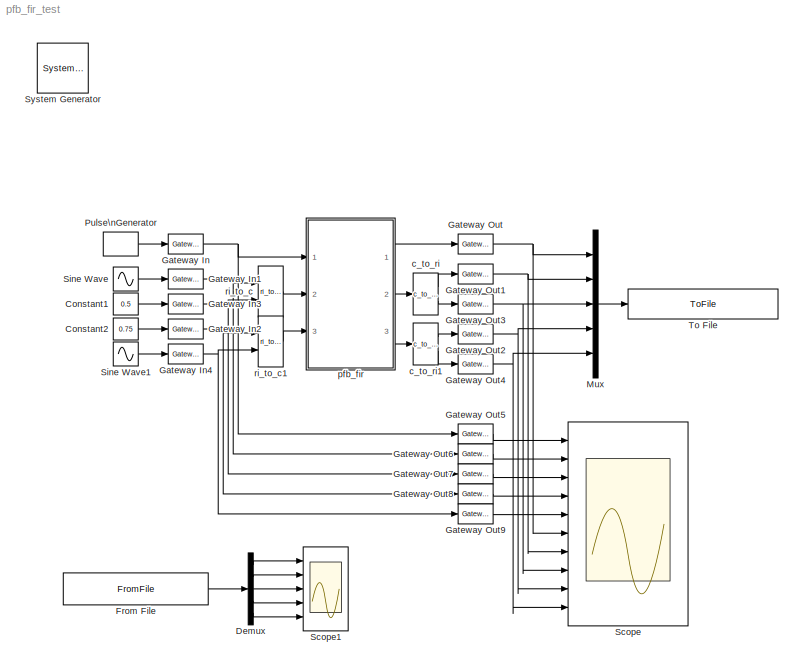
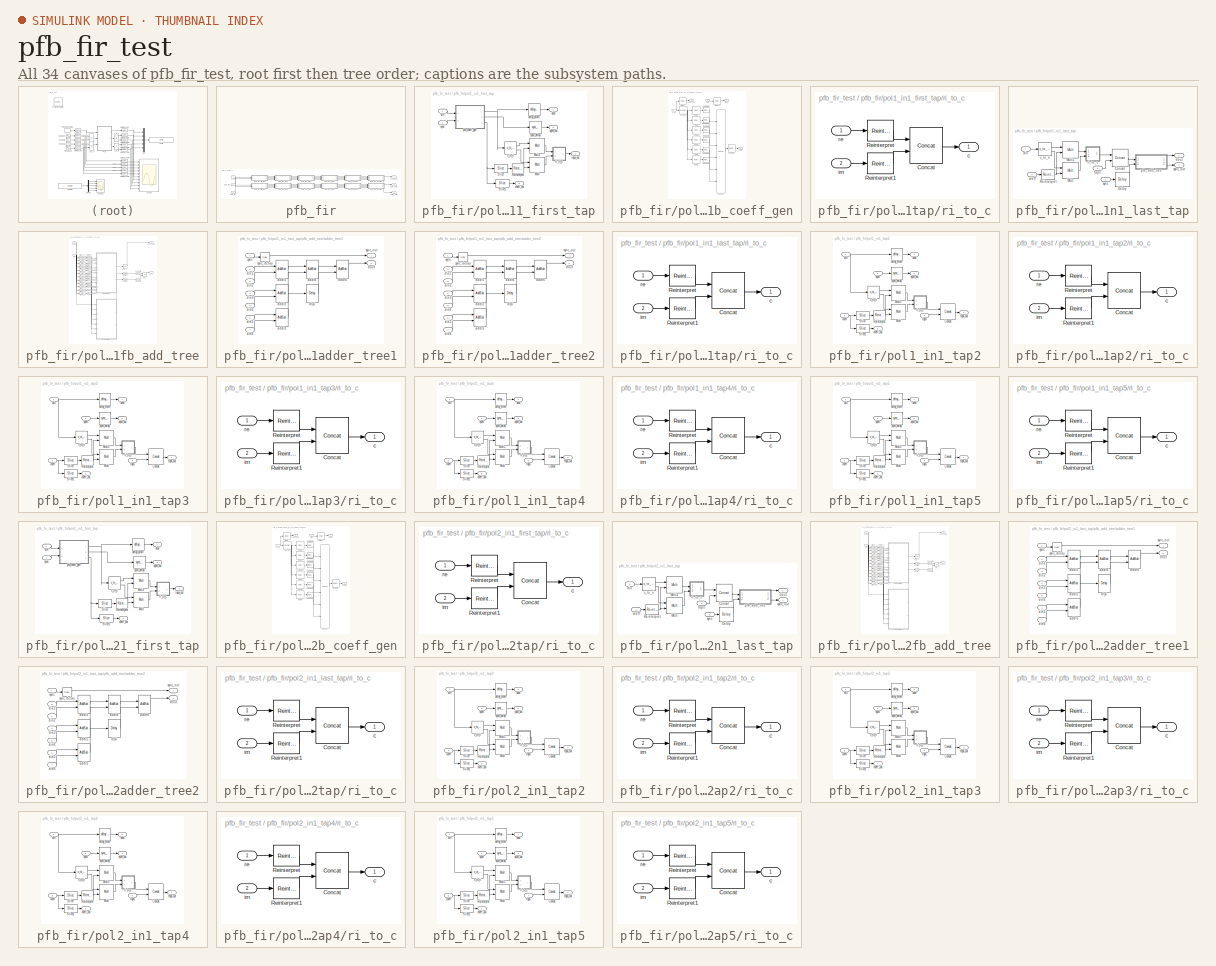
[diagram: thumbnail index - all 34 canvases of the model, root first then tree order]
MODEL pfb_fir_test
KIND model
BLOCK [Reference]  System Generator  REF=xbsIndex_r4/ System Generator
  AttributesFormatString = System\\nGenerator
  FunctionWithSeparateData = off
  Ports = []
  RTWMemSecDataConstants = Inherit from model
  RTWMemSecDataInternal = Inherit from model
  RTWMemSecDataParameters = Inherit from model
  RTWMemSecFuncExecute = Inherit from model
  RTWMemSecFuncInitTerm = Inherit from model
  ShowPortLabels = FromPortIcon
  SourceBlock = xbsIndex_r4/ System Generator
  SourceType = Xilinx System Generator Block
  SystemSampleTime = -1
  Tag = genX
  UserData = DataTag0
  UserDataPersistent = on
  block_type = sysgen
  block_version = 10.1.1
  clock_wrapper = Clock Enables
  core_generation = According to Block Masks
  dbl_ovrd = According to Block Masks
  dcm_input_clock_period = 100
  deprecated_control = off
  directory = ./netlist
  eval_field = 0
  has_advanced_control = 0
  incr_netlist = off
  infoedit = System Generator
  package = ff668
  part = xc4vsx35
  run_coregen = off
  sg_icon_stat = 51,50,-1,-1,red,beige,0,07734,right
  sg_mask_display = fprintf('','COMMENT: begin icon graphics');\npatch([0 51 51 0 ],[0 0 50 50 ],[0.93 0.92 0.86]);\npatch([12 4 16 4 12 25 29 33 47 36 25 17 29 17 25 36 47 33 29 25 12 ],[5 13 25 37 45 45 41 45 45 34 45 37 25 13 5 16 5 5 9 5 5 ],[0.6 0.2 0.25]);\nplot([0 51 51 0 0 ],[0 0 50 50 0 ]);\nfprintf('','COMMENT: end icon graphics');\nfprintf('','COMMENT: begin icon text');\nfprintf('','COMMENT: end icon text...<+5ch>
  sggui_pos = -1,-1,-1,-1
  simulink_period = 1
  speed = -10
  synthesis_tool = XST
  sysclk_period = 100
  testbench = off
  trim_vbits = Everywhere in SubSystem
  xilinxfamily = Virtex4
BLOCK [Constant] Constant1
  OutDataType = sfix(16)
  OutScaling = 2^0
  Value = 0.5
BLOCK [Constant] Constant2
  OutDataType = sfix(16)
  OutScaling = 2^0
  Value = 0.75
BLOCK [Demux] Demux
  DisplayOption = bar
  Outputs = 5
  Ports = [1, 5]
BLOCK [FromFile] From File
  FileName = pfb_fir_test_reference.mat
  SampleTime = 1
BLOCK [Reference] Gateway In  REF=xbsIndex_r4/Gateway In
  LOCs = {}
  Ports = [1, 1]
  SourceBlock = xbsIndex_r4/Gateway In
  SourceType = Xilinx Gateway In Block
  arith_type = Boolean
  bin_pt = 14
  block_type = gatewayin
  block_version = 10.1.1
  dbl_ovrd = off
  has_advanced_control = 0
  hdl_port = on
  infoedit = Gateway in block.  Converts inputs of type Simulink integer, double and fixed point to  Xilinx fixed point type.<P><P>Hardware notes:  In hardware these blocks become top level input ports.  <repeated x5 — deduplicated; at blocks: Gateway In, Gateway In1, Gateway In2, Gateway In3, Gateway In4>
  locs_specified = off
  n_bits = 16
  overflow = Saturate
  period = 1
  quantization = Round  (unbiased: +/- Inf)
  sg_icon_stat = 35,20,1,1,white,yellow,0,00d3666e,right,
  sg_mask_display = fprintf('','COMMENT: begin icon graphics');\npatch([0 1 1 0 ],[0 0 1 1 ],[0.95 0.93 0.65]);\npatch([0.342857 0.257143 0.4 0.257143 0.342857 0.485714 0.514286 0.542857 0.714286 0.6 0.485714 0.4 0.542857 0.4 0.485714 0.6 0.714286 0.542857 0.514286 0.485714 0.342857 ],[0.1 0.25 0.5 0.75 0.9 0.9 0.85 0.9 0.9 0.7 0.9 0.75 0.5 0.25 0.1 0.3 0.1 0.1 0.15 0.1 0.1 ],[0.98 0.96 0.92]);\nplot([0 1 1 0 0 ],[0 ...<+261ch>  <repeated x5 — deduplicated; at blocks: Gateway In, Gateway In1, Gateway In2, Gateway In3, Gateway In4>
  sggui_pos = 2251,155,407,458
  timing_constraint = None
  xl_area = [0,0,0,0,0,0,0]
  xl_use_area = off
BLOCK [Reference] Gateway In1  REF=xbsIndex_r4/Gateway In
  LOCs = {}
  Ports = [1, 1]
  SourceBlock = xbsIndex_r4/Gateway In
  SourceType = Xilinx Gateway In Block
  arith_type = Signed  (2's comp)
  bin_pt = 11
  block_type = gatewayin
  block_version = 10.1.1
  dbl_ovrd = off
  has_advanced_control = 0
  hdl_port = on
  locs_specified = off
  n_bits = 12
  overflow = Wrap
  period = 1
  quantization = Truncate
  sg_icon_stat = 35,20,1,1,white,yellow,0,00d3666e,right,
  sggui_pos = 2068,100,407,458
  timing_constraint = None
  xl_area = [0,0,0,0,0,0,0]
  xl_use_area = off
BLOCK [Reference] Gateway In2  REF=xbsIndex_r4/Gateway In
  LOCs = {}
  Ports = [1, 1]
  SourceBlock = xbsIndex_r4/Gateway In
  SourceType = Xilinx Gateway In Block
  arith_type = Signed  (2's comp)
  bin_pt = 11
  block_type = gatewayin
  block_version = 10.1.1
  dbl_ovrd = off
  has_advanced_control = 0
  hdl_port = on
  locs_specified = off
  n_bits = 12
  overflow = Wrap
  period = 1
  quantization = Truncate
  sg_icon_stat = 35,20,1,1,white,yellow,0,00d3666e,right,
  sggui_pos = 2032,161,407,458
  timing_constraint = None
  xl_area = [0,0,0,0,0,0,0]
  xl_use_area = off
BLOCK [Reference] Gateway In3  REF=xbsIndex_r4/Gateway In
  LOCs = {}
  Ports = [1, 1]
  SourceBlock = xbsIndex_r4/Gateway In
  SourceType = Xilinx Gateway In Block
  arith_type = Signed  (2's comp)
  bin_pt = 11
  block_type = gatewayin
  block_version = 10.1.1
  dbl_ovrd = off
  has_advanced_control = 0
  hdl_port = on
  locs_specified = off
  n_bits = 12
  overflow = Wrap
  period = 1
  quantization = Truncate
  sg_icon_stat = 35,20,1,1,white,yellow,0,00d3666e,right,
  sggui_pos = 2072,133,407,458
  timing_constraint = None
  xl_area = [0,0,0,0,0,0,0]
  xl_use_area = off
BLOCK [Reference] Gateway In4  REF=xbsIndex_r4/Gateway In
  LOCs = {}
  Ports = [1, 1]
  SourceBlock = xbsIndex_r4/Gateway In
  SourceType = Xilinx Gateway In Block
  arith_type = Signed  (2's comp)
  bin_pt = 11
  block_type = gatewayin
  block_version = 10.1.1
  dbl_ovrd = off
  has_advanced_control = 0
  hdl_port = on
  locs_specified = off
  n_bits = 12
  overflow = Wrap
  period = 1
  quantization = Truncate
  sg_icon_stat = 35,20,1,1,white,yellow,0,00d3666e,right,
  sggui_pos = 2072,133,407,458
  timing_constraint = None
  xl_area = [0,0,0,0,0,0,0]
  xl_use_area = off
BLOCK [Reference] Gateway Out  REF=xbsIndex_r4/Gateway Out
  LOCs = {}
  Ports = [1, 1]
  SourceBlock = xbsIndex_r4/Gateway Out
  SourceType = Xilinx Gateway Out Block
  block_type = gatewayout
  block_version = 10.1.1
  has_advanced_control = 0
  hdl_port = on
  infoedit = Gateway out block.  Converts Xilinx fixed point inputs into ouputs of type Simulink integer, double, or fixed point.<P><P>Hardware notes:  In hardware these blocks become top level output ports or are discarded, depending on how they are configured.  <repeated x10 — deduplicated; at blocks: Gateway Out, Gateway Out1, Gateway Out2, Gateway Out3, Gateway Out4, Gateway Out5, Gateway Out6, Gateway Out7, Gateway Out8, Gateway Out9>
  locs_specified = off
  sg_icon_stat = 35,20,1,1,white,yellow,0,cc31b7ac,right,
  sg_mask_display = fprintf('','COMMENT: begin icon graphics');\npatch([0 1 1 0 ],[0 0 1 1 ],[0.95 0.93 0.65]);\npatch([0.342857 0.257143 0.4 0.257143 0.342857 0.485714 0.514286 0.542857 0.714286 0.6 0.485714 0.4 0.542857 0.4 0.485714 0.6 0.714286 0.542857 0.514286 0.485714 0.342857 ],[0.1 0.25 0.5 0.75 0.9 0.9 0.85 0.9 0.9 0.7 0.9 0.75 0.5 0.25 0.1 0.3 0.1 0.1 0.15 0.1 0.1 ],[0.98 0.96 0.92]);\nplot([0 1 1 0 0 ],[0 ...<+262ch>  <repeated x10 — deduplicated; at blocks: Gateway Out, Gateway Out1, Gateway Out2, Gateway Out3, Gateway Out4, Gateway Out5, Gateway Out6, Gateway Out7, Gateway Out8, Gateway Out9>
  sggui_pos = -1,-1,-1,-1
  timing_constraint = None
  xl_area = [0,0,0,0,0,0,0]
  xl_use_area = off
BLOCK [Reference] Gateway Out1  REF=xbsIndex_r4/Gateway Out
  LOCs = {}
  Ports = [1, 1]
  SourceBlock = xbsIndex_r4/Gateway Out
  SourceType = Xilinx Gateway Out Block
  block_type = gatewayout
  block_version = 10.1.1
  has_advanced_control = 0
  hdl_port = on
  locs_specified = off
  sg_icon_stat = 35,20,1,1,white,yellow,0,cc31b7ac,right,
  sggui_pos = -1,-1,-1,-1
  timing_constraint = None
  xl_area = [0,0,0,0,0,0,0]
  xl_use_area = off
BLOCK [Reference] Gateway Out2  REF=xbsIndex_r4/Gateway Out
  LOCs = {}
  Ports = [1, 1]
  SourceBlock = xbsIndex_r4/Gateway Out
  SourceType = Xilinx Gateway Out Block
  block_type = gatewayout
  block_version = 10.1.1
  has_advanced_control = 0
  hdl_port = on
  locs_specified = off
  sg_icon_stat = 35,20,1,1,white,yellow,0,cc31b7ac,right,
  sggui_pos = -1,-1,-1,-1
  timing_constraint = None
  xl_area = [0,0,0,0,0,0,0]
  xl_use_area = off
BLOCK [Reference] Gateway Out3  REF=xbsIndex_r4/Gateway Out
  LOCs = {}
  Ports = [1, 1]
  SourceBlock = xbsIndex_r4/Gateway Out
  SourceType = Xilinx Gateway Out Block
  block_type = gatewayout
  block_version = 10.1.1
  has_advanced_control = 0
  hdl_port = on
  locs_specified = off
  sg_icon_stat = 35,20,1,1,white,yellow,0,cc31b7ac,right,
  sggui_pos = -1,-1,-1,-1
  timing_constraint = None
  xl_area = [0,0,0,0,0,0,0]
  xl_use_area = off
BLOCK [Reference] Gateway Out4  REF=xbsIndex_r4/Gateway Out
  LOCs = {}
  Ports = [1, 1]
  SourceBlock = xbsIndex_r4/Gateway Out
  SourceType = Xilinx Gateway Out Block
  block_type = gatewayout
  block_version = 10.1.1
  has_advanced_control = 0
  hdl_port = on
  locs_specified = off
  sg_icon_stat = 35,20,1,1,white,yellow,0,cc31b7ac,right,
  sggui_pos = -1,-1,-1,-1
  timing_constraint = None
  xl_area = [0,0,0,0,0,0,0]
  xl_use_area = off
BLOCK [Reference] Gateway Out5  REF=xbsIndex_r4/Gateway Out
  LOCs = {}
  Ports = [1, 1]
  SourceBlock = xbsIndex_r4/Gateway Out
  SourceType = Xilinx Gateway Out Block
  block_type = gatewayout
  block_version = 10.1.1
  has_advanced_control = 0
  hdl_port = on
  locs_specified = off
  sg_icon_stat = 35,20,1,1,white,yellow,0,cc31b7ac,right,
  sggui_pos = -1,-1,-1,-1
  timing_constraint = None
  xl_area = [0,0,0,0,0,0,0]
  xl_use_area = off
BLOCK [Reference] Gateway Out6  REF=xbsIndex_r4/Gateway Out
  LOCs = {}
  Ports = [1, 1]
  SourceBlock = xbsIndex_r4/Gateway Out
  SourceType = Xilinx Gateway Out Block
  block_type = gatewayout
  block_version = 10.1.1
  has_advanced_control = 0
  hdl_port = on
  locs_specified = off
  sg_icon_stat = 35,20,1,1,white,yellow,0,cc31b7ac,right,
  sggui_pos = -1,-1,-1,-1
  timing_constraint = None
  xl_area = [0,0,0,0,0,0,0]
  xl_use_area = off
BLOCK [Reference] Gateway Out7  REF=xbsIndex_r4/Gateway Out
  LOCs = {}
  Ports = [1, 1]
  SourceBlock = xbsIndex_r4/Gateway Out
  SourceType = Xilinx Gateway Out Block
  block_type = gatewayout
  block_version = 10.1.1
  has_advanced_control = 0
  hdl_port = on
  locs_specified = off
  sg_icon_stat = 35,20,1,1,white,yellow,0,cc31b7ac,right,
  sggui_pos = -1,-1,-1,-1
  timing_constraint = None
  xl_area = [0,0,0,0,0,0,0]
  xl_use_area = off
BLOCK [Reference] Gateway Out8  REF=xbsIndex_r4/Gateway Out
  LOCs = {}
  Ports = [1, 1]
  SourceBlock = xbsIndex_r4/Gateway Out
  SourceType = Xilinx Gateway Out Block
  block_type = gatewayout
  block_version = 10.1.1
  has_advanced_control = 0
  hdl_port = on
  locs_specified = off
  sg_icon_stat = 35,20,1,1,white,yellow,0,cc31b7ac,right,
  sggui_pos = -1,-1,-1,-1
  timing_constraint = None
  xl_area = [0,0,0,0,0,0,0]
  xl_use_area = off
BLOCK [Reference] Gateway Out9  REF=xbsIndex_r4/Gateway Out
  LOCs = {}
  Ports = [1, 1]
  SourceBlock = xbsIndex_r4/Gateway Out
  SourceType = Xilinx Gateway Out Block
  block_type = gatewayout
  block_version = 10.1.1
  has_advanced_control = 0
  hdl_port = on
  locs_specified = off
  sg_icon_stat = 35,20,1,1,white,yellow,0,cc31b7ac,right,
  sggui_pos = -1,-1,-1,-1
  timing_constraint = None
  xl_area = [0,0,0,0,0,0,0]
  xl_use_area = off
BLOCK [Mux] Mux
  DisplayOption = bar
  Inputs = 5
  Ports = [5, 1]
BLOCK [DiscretePulseGenerator] Pulse\nGenerator
  Period = 2^10
  PhaseDelay = 13
  Ports = [0, 1]
BLOCK [Scope] Scope
  DataFormat = StructureWithTime
  Floating = off
  NumInputPorts = 10
  Ports = [10]
  SampleTime = 0
  YMax = 5~5~5~5~5~5~5~5~5~5
  YMin = -5~-5~-5~-5~-5~-5~-5~-5~-5~-5
  ZoomMode = yonly
BLOCK [Scope] Scope1
  DataFormat = StructureWithTime
  Floating = off
  NumInputPorts = 5
  Ports = [5]
  SampleTime = 0
  SaveName = ScopeData1
  YMax = 5~5~5~5~5
  YMin = -5~-5~-5~-5~-5
BLOCK [Sin] Sine Wave
  Amplitude = 0.8
  Offset = 7
  Ports = [0, 1]
  SampleTime = 1
  Samples = 16
  SineType = Sample based
BLOCK [Sin] Sine Wave1
  Amplitude = 0.8
  Offset = 7
  Ports = [0, 1]
  SampleTime = 1
  Samples = 8
  SineType = Sample based
BLOCK [ToFile] To File
  Filename = pfb_fir_test_output.mat
  MatrixName = output
BLOCK [Reference] c_to_ri  REF=casper_library_misc/c_to_ri  (lib defined in mdl_357510c33b49, mdl_57b5f564ae26, +4 more)
  AttributesFormatString = 20_19 r/i
  FunctionWithSeparateData = off
  Ports = [1, 2]
  RTWMemSecDataConstants = Inherit from model
  RTWMemSecDataInternal = Inherit from model
  RTWMemSecDataParameters = Inherit from model
  RTWMemSecFuncExecute = Inherit from model
  RTWMemSecFuncInitTerm = Inherit from model
  ShowPortLabels = FromPortIcon
  SourceBlock = casper_library_misc/c_to_ri
  SourceType = c_to_ri
  SystemSampleTime = -1
  UserData = DataTag1
  UserDataPersistent = on
  bin_pt = 19
  n_bits = 20
BLOCK [Reference] c_to_ri1  REF=casper_library_misc/c_to_ri  (lib defined in mdl_357510c33b49, mdl_57b5f564ae26, +4 more)
  AttributesFormatString = 20_19 r/i
  FunctionWithSeparateData = off
  Ports = [1, 2]
  RTWMemSecDataConstants = Inherit from model
  RTWMemSecDataInternal = Inherit from model
  RTWMemSecDataParameters = Inherit from model
  RTWMemSecFuncExecute = Inherit from model
  RTWMemSecFuncInitTerm = Inherit from model
  ShowPortLabels = FromPortIcon
  SourceBlock = casper_library_misc/c_to_ri
  SourceType = c_to_ri
  SystemSampleTime = -1
  UserData = DataTag2
  UserDataPersistent = on
  bin_pt = 19
  n_bits = 20
BLOCK [SubSystem] pfb_fir
  AncestorBlock = casper_library_pfbs/pfb_fir
  AttributesFormatString = taps=6, add_latency=1\nmax scale 0.696
  FunctionWithSeparateData = off
  MaskCallbackString = |%num_taps = eval(get_param(gcb, 'TotalTaps'));\n%old_vec = eval(get_param(gcb, 'mult_spec'));\n\n%vec = 2.*ones(1,num_taps);\n%old_size = length(old_vec);\n\n%if(old_size <= num_taps), \n%   new_size = old_size;\n%else, \n%    new_size = num_taps;\n%end\n\n%for n = 1:new_size, vec(n) = old_vec(n); end\n%set_param(gcb, 'mult_spec', mat2str(vec));||||||||||||%num_taps = eval(get_param(gcb, 'TotalTa...<+988ch>
  MaskEnableString = on,on,on,on,on,on,on,on,on,on,on,on,on,on,on,off
  MaskHelp = eval('xlWeb(''http://casper.berkeley.edu/wiki/Pfb_fir'')')
  MaskHideContents = off
  MaskIconFrame = on
  MaskIconOpaque = on
  MaskIconRotate = none
  MaskIconUnits = autoscale
  MaskInitialization = pfb_fir_init(gcb, ...\n    'PFBSize', PFBSize, ...\n    'TotalTaps', TotalTaps, ...\n    'WindowType', WindowType, ...\n    'n_inputs', n_inputs, ...\n    'MakeBiplex', MakeBiplex, ...\n    'BitWidthIn', BitWidthIn, ...\n    'BitWidthOut', BitWidthOut, ...\n    'CoeffBitWidth', CoeffBitWidth, ...\n    'CoeffDistMem', CoeffDistMem, ...\n    'add_latency', add_latency, ...\n    'mult_latency', mult_...<+184ch>
  MaskPromptString = Size of PFB: (2^? pnts)|Total Number of Taps:|Windowing Function: |Number of Simultaneous Inputs: (2^?)|Make Biplex|Input Bitwidth:|Output Bitwidth:|Coefficient Bitwidth:|Use Distributed Memory for Coeffs|Add Latency|Mult Latency|BRAM Latency|Quantization Behavior|Bin Width Scaling (normal=1)|Specify multiplier use (behavioral if not specified)|Multiplier specification (0=core, 1=embedded, 2=behav...<+22ch>
  MaskSelfModifiable = on
  MaskStyleString = edit,edit,popup(bartlett|barthannwin|blackman|blackmanharris|bohamwin|chebwin|flattopwin|gausswin|hamming|hann|kaiser|nuttallwin|parzenwin|rectwin|tukeywin|triang|userwindow),edit,edit,edit,edit,edit,edit,edit,edit,edit,popup(Truncate|Round  (unbiased: +/- Inf)|Round  (unbiased: Even Values)),edit,checkbox,edit
  MaskTabNameString = ,,,,,,,,,,,,,,,
  MaskToolTipString = on,on,on,on,on,on,on,on,on,on,on,on,on,on,on,on
  MaskTunableValueString = on,on,on,on,on,on,on,on,on,on,on,on,on,on,on,on
  MaskType = pfb_fir
  MaskValueString = 6|6|nuttallwin|0|1|12|20|8|1|1|2|1|Round  (unbiased: +/- Inf)|0.75|off|[2                                      2]
  MaskVarAliasString = ,,,,,,,,,,,,,,,
  MaskVariables = PFBSize=@1;TotalTaps=@2;WindowType=&3;n_inputs=@4;MakeBiplex=@5;BitWidthIn=@6;BitWidthOut=@7;CoeffBitWidth=@8;CoeffDistMem=@9;add_latency=@10;mult_latency=@11;bram_latency=@12;quantization=&13;fwidth=@14;specify_mult=&15;mult_spec=@16;
  MaskVisibilityString = on,on,on,on,on,on,on,on,on,on,on,on,on,on,on,on
  MinAlgLoopOccurrences = off
  Opaque = off
  Ports = [3, 3]
  PropExecContextOutsideSubsystem = off
  RTWSystemCode = Auto
  RequestExecContextInheritance = off
  UserData = DataTag3
  UserDataPersistent = on
BLOCK [Inport] pfb_fir/pol1_in1
  IconDisplay = Port number
  Port = 2
BLOCK [SubSystem] pfb_fir/pol1_in1_first_tap
  AncestorBlock = casper_library_pfbs/first_tap
  AttributesFormatString = input=0, taps=6
  FunctionWithSeparateData = off
  MaskCallbackString = |||||||||||use_hdl = get_param(gcb,'use_hdl');\nif( strcmp(use_hdl,'on')),\n    set_param(gcb, 'use_embedded','off');\n    set_param(gcb, 'MaskVisibilities',{'on','on','on','on','on','on','on','on','on','on','on','on','off'});\nelse,\n    set_param(gcb, 'MaskVisibilities',{'on','on','on','on','on','on','on','on','on','on','on','on','on'});    \nend\n|
  MaskEnableString = on,on,on,on,on,on,on,on,on,on,on,on,on
  MaskHideContents = off
  MaskIconFrame = on
  MaskIconOpaque = on
  MaskIconRotate = none
  MaskIconUnits = autoscale
  MaskInitialization = first_tap_init(gcb,...\n    'nput', nput,...\n    'PFBSize', PFBSize,...\n    'CoeffBitWidth', CoeffBitWidth,...\n    'TotalTaps', TotalTaps,...\n    'BitWidthIn', BitWidthIn,...\n    'CoeffDistMem', CoeffDistMem,...\n    'WindowType', WindowType,...\n    'mult_latency', mult_latency,...\n    'bram_latency', bram_latency,...\n    'n_inputs', n_inputs,...\n    'fwidth', fwidth,...\n    'use_hdl', u...<+46ch>
  MaskPromptString = This is input number:|Size of PFB: (2^? pnts)|Bitwidth of Coefficients:|Total Number of Taps:|Input Bitwidth:|Implement Coeff Gen in Distributed Memory:|Windowing Function:|Mult Latency|BRAM Latency|Number of Simultaneous Inputs: (2^?)|Bit Width (normal=1)|Use behavioral HDL for multlipliers|Use embedded multipliers
  MaskSelfModifiable = on
  MaskStyleString = edit,edit,edit,edit,edit,edit,popup(bartlett|barthannwin|blackman|blackmanharris|bohamwin|chebwin|flattopwin|gausswin|hamming|hann|kaiser|nuttallwin|parzenwin|rectwin|tukeywin|triang),edit,edit,edit,edit,checkbox,checkbox
  MaskTabNameString = ,,,,,,,,,,,,
  MaskToolTipString = on,on,on,on,on,on,on,on,on,on,on,on,on
  MaskTunableValueString = on,on,on,on,on,on,on,on,on,on,on,on,on
  MaskType = first_tap
  MaskValueString = 0|6|8|6|12|1|nuttallwin|2|1|0|0.75|on|off
  MaskVarAliasString = ,,,,,,,,,,,,
  MaskVariables = nput=@1;PFBSize=@2;CoeffBitWidth=@3;TotalTaps=@4;BitWidthIn=@5;CoeffDistMem=@6;WindowType=&7;mult_latency=@8;bram_latency=@9;n_inputs=@10;fwidth=@11;use_hdl=&12;use_embedded=&13;
  MaskVisibilityString = on,on,on,on,on,on,on,on,on,on,on,on,off
  MinAlgLoopOccurrences = off
  Opaque = off
  Ports = [2, 4]
  PropExecContextOutsideSubsystem = off
  RTWSystemCode = Auto
  RequestExecContextInheritance = off
  UserData = DataTag4
  UserDataPersistent = on
BLOCK [Reference] pfb_fir/pol1_in1_first_tap/Mult  REF=xbsIndex_r4/Mult
  Ports = [2, 1]
  SourceBlock = xbsIndex_r4/Mult
  SourceType = Xilinx Multiplier Block
  arith_type = Signed  (2's comp)
  bin_pt = 2
  block_type = mult
  block_version = 9.1.01
  dbl_ovrd = off
  en = off
  has_advanced_control = 0
  infoedit = Hardware notes: To use the internal pipeline stage of the dedicated multiplier you must select 'Pipeline for maximum performance'.
  latency = mult_latency
  n_bits = 8
  opt = Speed
  optimum_pipeline = off
  overflow = Wrap
  pipeline = on
  placement_style = Rectangular shape
  precision = Full
  quantization = Truncate
  sg_icon_stat = 50,51,2,1,white,blue,0,9a78ff34,right,
  sg_mask_display = fprintf('','COMMENT: begin icon graphics');\npatch([0 1 1 0 ],[0 0 1 1 ],[0.77 0.82 0.91]);\npatch([0.22 0.06 0.3 0.06 0.22 0.48 0.56 0.64 0.92 0.7 0.48 0.32 0.56 0.32 0.48 0.7 0.92 0.64 0.56 0.48 0.22 ],[0.117647 0.27451 0.509804 0.745098 0.901961 0.901961 0.823529 0.901961 0.901961 0.686275 0.901961 0.745098 0.509804 0.27451 0.117647 0.333333 0.117647 0.117647 0.196078 0.117647 0.117647 ],[0.98 ...<+375ch>  <repeated x24 — deduplicated; at blocks: Mult, Mult1>
  sggui_pos = 20,20,348,434
  use_behavioral_HDL = on
  use_embedded = off
  use_rpm = on
  xl_area = [0, 0, 0, 0, 0, 0, 0]
  xl_use_area = off
BLOCK [Reference] pfb_fir/pol1_in1_first_tap/Mult1  REF=xbsIndex_r4/Mult
  Ports = [2, 1]
  SourceBlock = xbsIndex_r4/Mult
  SourceType = Xilinx Multiplier Block
  arith_type = Signed  (2's comp)
  bin_pt = 2
  block_type = mult
  block_version = 9.1.01
  dbl_ovrd = off
  en = off
  has_advanced_control = 0
  infoedit = Hardware notes: To use the internal pipeline stage of the dedicated multiplier you must select 'Pipeline for maximum performance'.
  latency = mult_latency
  n_bits = 8
  opt = Speed
  optimum_pipeline = off
  overflow = Wrap
  pipeline = on
  placement_style = Rectangular shape
  precision = Full
  quantization = Truncate
  sg_icon_stat = 50,51,2,1,white,blue,0,9a78ff34,right,
  sggui_pos = 20,20,348,434
  use_behavioral_HDL = on
  use_embedded = off
  use_rpm = on
  xl_area = [0, 0, 0, 0, 0, 0, 0]
  xl_use_area = off
BLOCK [Reference] pfb_fir/pol1_in1_first_tap/Reinterpret  REF=xbsIndex_r4/Reinterpret
  Ports = [1, 1]
  SourceBlock = xbsIndex_r4/Reinterpret
  SourceType = Xilinx Type Reinterpreter Block
  arith_type = Signed  (2's comp)
  bin_pt = CoeffBitWidth - 1
  block_type = reinterpret
  block_version = 9.1.01
  force_arith_type = on
  force_bin_pt = on
  has_advanced_control = 0
  infoedit = Changes signal type without altering the binary representation.   You can changed the signal between signed and unsigned, and relocate the binary point.<P><P>Hardware notes: In hardware this block costs nothing.<P><P>Example:  Suppose the input is 6 bits wide, signed, with 2 fractional bits, and the output is forced to unsigned with 0 fractional bits.  Then an input of -2.0 (1110.00 in binary 2's ...<+55ch>  <repeated x42 — deduplicated; at blocks: Reinterpret, Reinterpret1, Reinterpret2, Reinterpret3, Reinterpret4>
  sg_icon_stat = 40,32,1,1,white,blue,0,6b04d0b0,right,
  sg_mask_display = fprintf('','COMMENT: begin icon graphics');\npatch([0 1 1 0 ],[0 0 1 1 ],[0.77 0.82 0.91]);\npatch([0.275 0.15 0.325 0.15 0.275 0.475 0.525 0.575 0.8 0.625 0.45 0.325 0.5 0.325 0.45 0.625 0.8 0.575 0.525 0.475 0.275 ],[0.09375 0.25 0.46875 0.6875 0.84375 0.84375 0.78125 0.84375 0.84375 0.625 0.84375 0.6875 0.46875 0.25 0.09375 0.3125 0.09375 0.09375 0.15625 0.09375 0.09375 ],[0.98 0.96 0.92]);\npl...<+192ch>  <repeated x48 — deduplicated; at blocks: Reinterpret, Reinterpret1, Reinterpret2, Reinterpret3, Reinterpret4, Reinterpret5, Reinterpret6>
  sggui_pos = -1,-1,-1,-1
BLOCK [Reference] pfb_fir/pol1_in1_first_tap/Slice  REF=xbsIndex_r4/Slice
  Ports = [1, 1]
  SourceBlock = xbsIndex_r4/Slice
  SourceType = Xilinx Bit Slice Extractor Block
  base0 = LSB of Input
  base1 = MSB of Input
  bit0 = 0
  bit1 = 0
  block_type = slice
  block_version = 9.1.01
  boolean_output = off
  dbl_ovrd = off
  has_advanced_control = 0
  infoedit = Extracts a given range of bits from each input sample and presents it at the output.  The output type is ordinarily unsigned with binary point at zero, but can be Boolean when the slice is one bit wide.<P><P>Hardware notes: In hardware this block costs nothing.  <repeated x20 — deduplicated; at blocks: Slice, Slice1>
  mode = Lower Bit Location + Width
  nbits = CoeffBitWidth
  sg_icon_stat = 45,28,1,1,white,blue,0,1fd851a7,right,
  sg_mask_display = fprintf('','COMMENT: begin icon graphics');\npatch([0 1 1 0 ],[0 0 1 1 ],[0.77 0.82 0.91]);\npatch([0.333333 0.222222 0.377778 0.222222 0.333333 0.488889 0.533333 0.577778 0.755556 0.622222 0.488889 0.4 0.577778 0.4 0.488889 0.622222 0.755556 0.577778 0.533333 0.488889 0.333333 ],[0.107143 0.285714 0.535714 0.785714 0.964286 0.964286 0.892857 0.964286 0.964286 0.75 0.964286 0.821429 0.535714 0.25 ...<+290ch>  <repeated x20 — deduplicated; at blocks: Slice, Slice1>
  sggui_pos = -1,-1,-1,-1
BLOCK [Reference] pfb_fir/pol1_in1_first_tap/Slice1  REF=xbsIndex_r4/Slice
  Ports = [1, 1]
  SourceBlock = xbsIndex_r4/Slice
  SourceType = Xilinx Bit Slice Extractor Block
  base0 = LSB of Input
  base1 = MSB of Input
  bit0 = CoeffBitWidth
  bit1 = 0
  block_type = slice
  block_version = 9.1.01
  boolean_output = off
  dbl_ovrd = off
  has_advanced_control = 0
  mode = Two Bit Locations
  nbits = CoeffBitWidth * (TotalTaps - 1)
  sg_icon_stat = 45,28,1,1,white,blue,0,1fd851a7,right,
  sggui_pos = -1,-1,-1,-1
BLOCK [Reference] pfb_fir/pol1_in1_first_tap/c_to_ri  REF=casper_library_misc/c_to_ri  (lib defined in mdl_357510c33b49, mdl_57b5f564ae26, +4 more)
  AttributesFormatString = 12_11 r/i
  FunctionWithSeparateData = off
  Ports = [1, 2]
  RTWMemSecDataConstants = Inherit from model
  RTWMemSecDataInternal = Inherit from model
  RTWMemSecDataParameters = Inherit from model
  RTWMemSecFuncExecute = Inherit from model
  RTWMemSecFuncInitTerm = Inherit from model
  ShowPortLabels = FromPortIcon
  SourceBlock = casper_library_misc/c_to_ri
  SourceType = c_to_ri
  SystemSampleTime = -1
  UserData = DataTag5
  UserDataPersistent = on
  bin_pt = BitWidthIn-1
  n_bits = BitWidthIn
BLOCK [Outport] pfb_fir/pol1_in1_first_tap/coeff_out
  IconDisplay = Port number
  OutDataType = sfix(16)
  OutScaling = 2^0
  Port = 3
BLOCK [Reference] pfb_fir/pol1_in1_first_tap/delay_bram  REF=casper_library_delays/delay_bram  (lib defined in mdl_259a08a3fac5, mdl_65009615caaa, +5 more)
  DelayLen = 2^(PFBSize-n_inputs)
  FunctionWithSeparateData = off
  Ports = [1, 1]
  RTWMemSecDataConstants = Inherit from model
  RTWMemSecDataInternal = Inherit from model
  RTWMemSecDataParameters = Inherit from model
  RTWMemSecFuncExecute = Inherit from model
  RTWMemSecFuncInitTerm = Inherit from model
  ShowPortLabels = FromPortIcon
  SourceBlock = casper_library_delays/delay_bram
  SourceType = delay_bram
  SystemSampleTime = -1
  bram_latency = bram_latency
  use_dsp48 = off
BLOCK [Inport] pfb_fir/pol1_in1_first_tap/din
  IconDisplay = Port number
  OutDataType = sfix(16)
  OutScaling = 2^0
BLOCK [Outport] pfb_fir/pol1_in1_first_tap/dout
  IconDisplay = Port number
  OutDataType = sfix(16)
  OutScaling = 2^0
BLOCK [SubSystem] pfb_fir/pol1_in1_first_tap/pfb_coeff_gen
  AncestorBlock = casper_library_pfbs/pfb_coeff_gen
  AttributesFormatString = PFBSize=6, n_inputs=0, taps=6
  FunctionWithSeparateData = off
  MaskCallbackString = ||||||||
  MaskEnableString = on,on,on,on,on,on,on,on,on
  MaskHideContents = off
  MaskIconFrame = on
  MaskIconOpaque = on
  MaskIconRotate = none
  MaskIconUnits = autoscale
  MaskInitialization = pfb_coeff_gen_init(gcb, ...\n    'PFBSize', PFBSize, ...\n    'CoeffBitWidth', CoeffBitWidth, ...\n    'TotalTaps', TotalTaps, ...\n    'CoeffDistMem', CoeffDistMem, ...\n    'WindowType', WindowType, ...\n    'bram_latency', bram_latency, ...\n    'n_inputs', n_inputs, ...\n    'nput', nput, ...\n    'fwidth', fwidth);
  MaskPromptString = Size of PFB: (2^? pnts)|Bitwidth of Coefficients:|Total Number of Taps:|Implement Coeff Gen in Distributed Memory|Windowing Function: |BRAM Latency|Number of Simultaneous Inputs: (2^?)|This is input number:|Bin Width (normal=1)
  MaskSelfModifiable = on
  MaskStyleString = edit,edit,edit,edit,edit,edit,edit,edit,edit
  MaskTabNameString = ,,,,,,,,
  MaskToolTipString = on,on,on,on,on,on,on,on,on
  MaskTunableValueString = on,on,on,on,on,on,on,on,on
  MaskType = pfb_coeff_gen
  MaskValueString = 6|8|6|1|nuttallwin|1|0|0|0.75
  MaskVarAliasString = ,,,,,,,,
  MaskVariables = PFBSize=@1;CoeffBitWidth=@2;TotalTaps=@3;CoeffDistMem=@4;WindowType=&5;bram_latency=@6;n_inputs=@7;nput=@8;fwidth=@9;
  MaskVisibilityString = on,on,on,on,on,on,on,on,on
  MinAlgLoopOccurrences = off
  Opaque = off
  Ports = [2, 3]
  PropExecContextOutsideSubsystem = off
  RTWSystemCode = Auto
  RequestExecContextInheritance = off
  UserData = DataTag6
  UserDataPersistent = on
BLOCK [Reference] pfb_fir/pol1_in1_first_tap/pfb_coeff_gen/Concat  REF=xbsIndex_r4/Concat
  Ports = [6, 1]
  SourceBlock = xbsIndex_r4/Concat
  SourceType = Xilinx Bus Concatenator Block
  block_type = concat
  block_version = 9.1.01
  dbl_ovrd = off
  has_advanced_control = 0
  infoedit = Concatenates two or more inputs.  Output will be cast to an unsigned value with the binary point at zero.
  num_inputs = 6
  sg_icon_stat = 55,548,6,1,white,blue,0,d0d135ea,right,
  sg_mask_display = fprintf('','COMMENT: begin icon graphics');\npatch([0 1 1 0 ],[0 0 1 1 ],[0.77 0.82 0.91]);\npatch([0.236364 0.0727273 0.309091 0.0727273 0.236364 0.509091 0.581818 0.654545 0.945455 0.727273 0.509091 0.345455 0.581818 0.345455 0.509091 0.727273 0.945455 0.654545 0.581818 0.509091 0.236364 ],[0.459854 0.476277 0.5 0.523723 0.540146 0.540146 0.532847 0.540146 0.540146 0.518248 0.540146 0.523723 0.5...<+340ch>
  sggui_pos = -1,-1,-1,-1
BLOCK [Reference] pfb_fir/pol1_in1_first_tap/pfb_coeff_gen/Counter  REF=xbsIndex_r4/Counter
  Ports = [1, 1]
  SourceBlock = xbsIndex_r4/Counter
  SourceType = Xilinx Counter Block
  arith_type = Unsigned
  bin_pt = 0
  block_type = counter
  block_version = 9.1.01
  cnt_by_val = 1
  cnt_to = Inf
  cnt_type = Free Running
  dbl_ovrd = off
  en = off
  explicit_period = on
  has_advanced_control = 0
  implementation = Fabric
  infoedit = Hardware notes: Free running counters are the least expensive in hardware.  A count limited counter is implemented by combining a counter with a comparator.
  load_pin = off
  n_bits = 6
  operation = Up
  period = 1
  rst = on
  sg_icon_stat = 50,50,1,1,white,blue,0,c59595e6,right,
  sg_mask_display = fprintf('','COMMENT: begin icon graphics');\npatch([0 1 1 0 ],[0 0 1 1 ],[0.77 0.82 0.91]);\npatch([0.22 0.06 0.3 0.06 0.22 0.48 0.56 0.64 0.92 0.7 0.48 0.32 0.56 0.32 0.48 0.7 0.92 0.64 0.56 0.48 0.22 ],[0.1 0.26 0.5 0.74 0.9 0.9 0.82 0.9 0.9 0.68 0.9 0.74 0.5 0.26 0.1 0.32 0.1 0.1 0.18 0.1 0.1 ],[0.98 0.96 0.92]);\nplot([0 1 1 0 0 ],[0 0 1 1 0 ]);\nfprintf('','COMMENT: end icon graphics');\nfpri...<+167ch>
  sggui_pos = 20,20,407,692
  start_count = 0
  use_behavioral_HDL = off
  use_rpm = on
  xl_area = [0, 0, 0, 0, 0, 0, 0]
  xl_use_area = off
BLOCK [Reference] pfb_fir/pol1_in1_first_tap/pfb_coeff_gen/Delay  REF=xbsIndex_r4/Delay
  Ports = [1, 1]
  SourceBlock = xbsIndex_r4/Delay
  SourceType = Xilinx Delay Block
  block_type = delay
  block_version = 9.1.01
  dbl_ovrd = off
  en = off
  has_advanced_control = 0
  infoedit = Hardware notes: A delay line is a chain, each link of which is an SRL16 followed by a flip-flop.
  latency = bram_latency+1
  reg_retiming = off
  sg_icon_stat = 45,46,1,1,white,blue,0,85ce9542,right,
  sg_mask_display = fprintf('','COMMENT: begin icon graphics');\npatch([0 1 1 0 ],[0 0 1 1 ],[0.77 0.82 0.91]);\npatch([0.222222 0.0666667 0.311111 0.0666667 0.222222 0.488889 0.555556 0.622222 0.911111 0.688889 0.466667 0.311111 0.555556 0.311111 0.466667 0.688889 0.911111 0.622222 0.555556 0.488889 0.222222 ],[0.108696 0.26087 0.5 0.73913 0.891304 0.891304 0.826087 0.891304 0.891304 0.673913 0.891304 0.73913 0.5 0....<+295ch>  <repeated x6 — deduplicated; at blocks: Delay, Delay1>
  sggui_pos = -1,-1,-1,-1
  xl_area = [0, 0, 0, 0, 0, 0, 0]
  xl_use_area = off
BLOCK [Reference] pfb_fir/pol1_in1_first_tap/pfb_coeff_gen/Delay1  REF=xbsIndex_r4/Delay
  Ports = [1, 1]
  SourceBlock = xbsIndex_r4/Delay
  SourceType = Xilinx Delay Block
  block_type = delay
  block_version = 9.1.01
  dbl_ovrd = off
  en = off
  has_advanced_control = 0
  infoedit = Hardware notes: A delay line is a chain, each link of which is an SRL16 followed by a flip-flop.
  latency = 2
  reg_retiming = off
  sg_icon_stat = 45,46,1,1,white,blue,0,85ce9542,right,
  sggui_pos = -1,-1,-1,-1
  xl_area = [0, 0, 0, 0, 0, 0, 0]
  xl_use_area = off
BLOCK [Reference] pfb_fir/pol1_in1_first_tap/pfb_coeff_gen/ROM1  REF=xbsIndex_r4/ROM
  Ports = [1, 1]
  SourceBlock = xbsIndex_r4/ROM
  SourceType = Xilinx Single Port Read-Only Memory Block
  arith_type = Signed  (2's comp)
  bin_pt = 7
  block_type = sprom
  block_version = 9.1.01
  dbl_ovrd = off
  depth = 64
  distributed_mem = Distributed memory
  en = off
  has_advanced_control = 0
  initVector = pfb_coeff_gen_calc(6, 6,'nuttallwin',0, 0,0.75,1)
  init_reg = 0
  latency = 1
  n_bits = 8
  optimize = Area
  rst = off
  sg_icon_stat = 50,52,1,1,white,blue,0,94be850d,right,
  sg_mask_display = fprintf('','COMMENT: begin icon graphics');\npatch([0 1 1 0 ],[0 0 1 1 ],[0.77 0.82 0.91]);\npatch([0.22 0.06 0.3 0.06 0.22 0.48 0.56 0.64 0.92 0.7 0.48 0.32 0.56 0.32 0.48 0.7 0.92 0.64 0.56 0.48 0.22 ],[0.115385 0.269231 0.5 0.730769 0.884615 0.884615 0.807692 0.884615 0.884615 0.673077 0.884615 0.730769 0.5 0.269231 0.115385 0.326923 0.115385 0.115385 0.192308 0.115385 0.115385 ],[0.98 0.96 0.9...<+256ch>  <repeated x12 — deduplicated; at blocks: ROM1, ROM2, ROM3, ROM4, ROM5, ROM6>
  sggui_pos = -1,-1,-1,-1
  use_rpm = on
  xl_area = [0, 0, 0, 0, 0, 0, 0]
  xl_use_area = off
BLOCK [Reference] pfb_fir/pol1_in1_first_tap/pfb_coeff_gen/ROM2  REF=xbsIndex_r4/ROM
  Ports = [1, 1]
  SourceBlock = xbsIndex_r4/ROM
  SourceType = Xilinx Single Port Read-Only Memory Block
  arith_type = Signed  (2's comp)
  bin_pt = 7
  block_type = sprom
  block_version = 9.1.01
  dbl_ovrd = off
  depth = 64
  distributed_mem = Distributed memory
  en = off
  has_advanced_control = 0
  initVector = pfb_coeff_gen_calc(6, 6,'nuttallwin',0, 0,0.75,2)
  init_reg = 0
  latency = 1
  n_bits = 8
  optimize = Area
  rst = off
  sg_icon_stat = 50,52,1,1,white,blue,0,94be850d,right,
  sggui_pos = -1,-1,-1,-1
  use_rpm = on
  xl_area = [0, 0, 0, 0, 0, 0, 0]
  xl_use_area = off
BLOCK [Reference] pfb_fir/pol1_in1_first_tap/pfb_coeff_gen/ROM3  REF=xbsIndex_r4/ROM
  Ports = [1, 1]
  SourceBlock = xbsIndex_r4/ROM
  SourceType = Xilinx Single Port Read-Only Memory Block
  arith_type = Signed  (2's comp)
  bin_pt = 7
  block_type = sprom
  block_version = 11.4
  dbl_ovrd = off
  depth = 64
  distributed_mem = Distributed memory
  en = off
  has_advanced_control = 0
  initVector = pfb_coeff_gen_calc(6, 6,'nuttallwin',0, 0,0.75,3)
  init_reg = 0
  latency = 1
  n_bits = 8
  optimize = Area
  rst = off
  sg_icon_stat = 50,52,1,1,white,blue,0,94be850d,right,
  sggui_pos = -1,-1,-1,-1
  use_rpm = on
  xl_area = [0,0,0,0,0,0,0]
  xl_use_area = off
BLOCK [Reference] pfb_fir/pol1_in1_first_tap/pfb_coeff_gen/ROM4  REF=xbsIndex_r4/ROM
  Ports = [1, 1]
  SourceBlock = xbsIndex_r4/ROM
  SourceType = Xilinx Single Port Read-Only Memory Block
  arith_type = Signed  (2's comp)
  bin_pt = 7
  block_type = sprom
  block_version = 11.4
  dbl_ovrd = off
  depth = 64
  distributed_mem = Distributed memory
  en = off
  has_advanced_control = 0
  initVector = pfb_coeff_gen_calc(6, 6,'nuttallwin',0, 0,0.75,4)
  init_reg = 0
  latency = 1
  n_bits = 8
  optimize = Area
  rst = off
  sg_icon_stat = 50,52,1,1,white,blue,0,94be850d,right,
  sggui_pos = -1,-1,-1,-1
  use_rpm = on
  xl_area = [0,0,0,0,0,0,0]
  xl_use_area = off
BLOCK [Reference] pfb_fir/pol1_in1_first_tap/pfb_coeff_gen/ROM5  REF=xbsIndex_r4/ROM
  Ports = [1, 1]
  SourceBlock = xbsIndex_r4/ROM
  SourceType = Xilinx Single Port Read-Only Memory Block
  arith_type = Signed  (2's comp)
  bin_pt = 7
  block_type = sprom
  block_version = 11.4
  dbl_ovrd = off
  depth = 64
  distributed_mem = Distributed memory
  en = off
  has_advanced_control = 0
  initVector = pfb_coeff_gen_calc(6, 6,'nuttallwin',0, 0,0.75,5)
  init_reg = 0
  latency = 1
  n_bits = 8
  optimize = Area
  rst = off
  sg_icon_stat = 50,52,1,1,white,blue,0,94be850d,right,
  sggui_pos = -1,-1,-1,-1
  use_rpm = on
  xl_area = [0,0,0,0,0,0,0]
  xl_use_area = off
BLOCK [Reference] pfb_fir/pol1_in1_first_tap/pfb_coeff_gen/ROM6  REF=xbsIndex_r4/ROM
  Ports = [1, 1]
  SourceBlock = xbsIndex_r4/ROM
  SourceType = Xilinx Single Port Read-Only Memory Block
  arith_type = Signed  (2's comp)
  bin_pt = 7
  block_type = sprom
  block_version = 11.4
  dbl_ovrd = off
  depth = 64
  distributed_mem = Distributed memory
  en = off
  has_advanced_control = 0
  initVector = pfb_coeff_gen_calc(6, 6,'nuttallwin',0, 0,0.75,6)
  init_reg = 0
  latency = 1
  n_bits = 8
  optimize = Area
  rst = off
  sg_icon_stat = 50,52,1,1,white,blue,0,94be850d,right,
  sggui_pos = -1,-1,-1,-1
  use_rpm = on
  xl_area = [0,0,0,0,0,0,0]
  xl_use_area = off
BLOCK [Reference] pfb_fir/pol1_in1_first_tap/pfb_coeff_gen/Register  REF=xbsIndex_r4/Register
  Ports = [1, 1]
  SourceBlock = xbsIndex_r4/Register
  SourceType = Xilinx Register Block
  block_type = register
  block_version = 9.1.01
  dbl_ovrd = off
  en = off
  has_advanced_control = 0
  init = 0
  rst = off
  sg_icon_stat = 45,50,1,1,white,blue,0,ef2275f7,right,
  sg_mask_display = fprintf('','COMMENT: begin icon graphics');\npatch([0 1 1 0 ],[0 0 1 1 ],[0.77 0.82 0.91]);\npatch([0.222222 0.0666667 0.311111 0.0666667 0.222222 0.488889 0.555556 0.622222 0.911111 0.688889 0.466667 0.311111 0.555556 0.311111 0.466667 0.688889 0.911111 0.622222 0.555556 0.488889 0.222222 ],[0.14 0.28 0.5 0.72 0.86 0.86 0.8 0.86 0.86 0.66 0.86 0.72 0.5 0.28 0.14 0.34 0.14 0.14 0.2 0.14 0.14 ],[0....<+314ch>
  sggui_pos = -1,-1,-1,-1
  xl_area = [0, 0, 0, 0, 0, 0, 0]
  xl_use_area = off
BLOCK [Reference] pfb_fir/pol1_in1_first_tap/pfb_coeff_gen/Reinterpret1  REF=xbsIndex_r4/Reinterpret
  Ports = [1, 1]
  SourceBlock = xbsIndex_r4/Reinterpret
  SourceType = Xilinx Type Reinterpreter Block
  arith_type = Unsigned
  bin_pt = 0
  block_type = reinterpret
  block_version = 9.1.01
  force_arith_type = on
  force_bin_pt = on
  has_advanced_control = 0
  sg_icon_stat = 40,32,1,1,white,blue,0,6b04d0b0,right,
  sggui_pos = -1,-1,-1,-1
BLOCK [Reference] pfb_fir/pol1_in1_first_tap/pfb_coeff_gen/Reinterpret2  REF=xbsIndex_r4/Reinterpret
  Ports = [1, 1]
  SourceBlock = xbsIndex_r4/Reinterpret
  SourceType = Xilinx Type Reinterpreter Block
  arith_type = Unsigned
  bin_pt = 0
  block_type = reinterpret
  block_version = 9.1.01
  force_arith_type = on
  force_bin_pt = on
  has_advanced_control = 0
  sg_icon_stat = 40,32,1,1,white,blue,0,6b04d0b0,right,
  sggui_pos = -1,-1,-1,-1
BLOCK [Reference] pfb_fir/pol1_in1_first_tap/pfb_coeff_gen/Reinterpret3  REF=xbsIndex_r4/Reinterpret
  Ports = [1, 1]
  SourceBlock = xbsIndex_r4/Reinterpret
  SourceType = Xilinx Type Reinterpreter Block
  arith_type = Unsigned
  bin_pt = 0
  block_type = reinterpret
  block_version = 11.4
  force_arith_type = on
  force_bin_pt = on
  has_advanced_control = 0
  infoedit = Changes signal type without altering the binary representation.   You can changed the signal between signed and unsigned, and relocate the binary point.<br><br>Hardware notes: In hardware this block costs nothing.<br><br>Example:  Suppose the input is 6 bits wide, signed, with 2 fractional bits, and the output is forced to unsigned with 0 fractional bits.  Then an input of -2.0 (1110.00 in binary ...<+59ch>  <repeated x30 — deduplicated; at blocks: Reinterpret3, Reinterpret4, Reinterpret5, Reinterpret6, Reint0_1, Reint0_2, Reint1_1, Reint1_2, Reint2_1, Reint2_2, Reint3_1, Reint3_2, Reint4_1, Reint4_2, Reint5_1, Reint5_2>
  sg_icon_stat = 40,32,1,1,white,blue,0,6b04d0b0,right,
  sggui_pos = -1,-1,-1,-1
BLOCK [Reference] pfb_fir/pol1_in1_first_tap/pfb_coeff_gen/Reinterpret4  REF=xbsIndex_r4/Reinterpret
  Ports = [1, 1]
  SourceBlock = xbsIndex_r4/Reinterpret
  SourceType = Xilinx Type Reinterpreter Block
  arith_type = Unsigned
  bin_pt = 0
  block_type = reinterpret
  block_version = 11.4
  force_arith_type = on
  force_bin_pt = on
  has_advanced_control = 0
  sg_icon_stat = 40,32,1,1,white,blue,0,6b04d0b0,right,
  sggui_pos = -1,-1,-1,-1
BLOCK [Reference] pfb_fir/pol1_in1_first_tap/pfb_coeff_gen/Reinterpret5  REF=xbsIndex_r4/Reinterpret
  Ports = [1, 1]
  SourceBlock = xbsIndex_r4/Reinterpret
  SourceType = Xilinx Type Reinterpreter Block
  arith_type = Unsigned
  bin_pt = 0
  block_type = reinterpret
  block_version = 11.4
  force_arith_type = on
  force_bin_pt = on
  has_advanced_control = 0
  sg_icon_stat = 40,32,1,1,white,blue,0,6b04d0b0,right,
  sggui_pos = -1,-1,-1,-1
BLOCK [Reference] pfb_fir/pol1_in1_first_tap/pfb_coeff_gen/Reinterpret6  REF=xbsIndex_r4/Reinterpret
  Ports = [1, 1]
  SourceBlock = xbsIndex_r4/Reinterpret
  SourceType = Xilinx Type Reinterpreter Block
  arith_type = Unsigned
  bin_pt = 0
  block_type = reinterpret
  block_version = 11.4
  force_arith_type = on
  force_bin_pt = on
  has_advanced_control = 0
  sg_icon_stat = 40,32,1,1,white,blue,0,6b04d0b0,right,
  sggui_pos = -1,-1,-1,-1
BLOCK [Outport] pfb_fir/pol1_in1_first_tap/pfb_coeff_gen/coeff
  IconDisplay = Port number
  OutDataType = sfix(16)
  OutScaling = 2^0
  Port = 3
BLOCK [Inport] pfb_fir/pol1_in1_first_tap/pfb_coeff_gen/din
  IconDisplay = Port number
  OutDataType = sfix(16)
  OutScaling = 2^0
BLOCK [Outport] pfb_fir/pol1_in1_first_tap/pfb_coeff_gen/dout
  IconDisplay = Port number
  OutDataType = sfix(16)
  OutScaling = 2^0
BLOCK [Inport] pfb_fir/pol1_in1_first_tap/pfb_coeff_gen/sync
  IconDisplay = Port number
  OutDataType = sfix(16)
  OutScaling = 2^0
  Port = 2
BLOCK [Outport] pfb_fir/pol1_in1_first_tap/pfb_coeff_gen/sync_out
  IconDisplay = Port number
  OutDataType = sfix(16)
  OutScaling = 2^0
  Port = 2
BLOCK [SubSystem] pfb_fir/pol1_in1_first_tap/ri_to_c
  FunctionWithSeparateData = off
  MaskHideContents = off
  MinAlgLoopOccurrences = off
  Opaque = off
  Ports = [2, 1]
  PropExecContextOutsideSubsystem = off
  RTWSystemCode = Auto
  RequestExecContextInheritance = off
BLOCK [Reference] pfb_fir/pol1_in1_first_tap/ri_to_c/Concat  REF=xbsIndex_r4/Concat
  Ports = [2, 1]
  SourceBlock = xbsIndex_r4/Concat
  SourceType = Xilinx Bus Concatenator Block
  block_type = concat
  block_version = 9.1.01
  dbl_ovrd = off
  has_advanced_control = 0
  infoedit = Concatenates two or more inputs.  Output will be cast to an unsigned value with the binary point at zero.
  num_inputs = 2
  sg_icon_stat = 50,55,2,1,white,blue,0,97b7e8d2,right,
  sg_mask_display = fprintf('','COMMENT: begin icon graphics');\npatch([0 1 1 0 ],[0 0 1 1 ],[0.77 0.82 0.91]);\npatch([0.22 0.06 0.3 0.06 0.22 0.48 0.56 0.64 0.92 0.7 0.48 0.32 0.56 0.32 0.48 0.7 0.92 0.64 0.56 0.48 0.22 ],[0.145455 0.290909 0.509091 0.727273 0.872727 0.872727 0.8 0.872727 0.872727 0.672727 0.872727 0.727273 0.509091 0.290909 0.145455 0.345455 0.145455 0.145455 0.218182 0.145455 0.145455 ],[0.98 0.9...<+256ch>  <repeated x22 — deduplicated; at blocks: Concat>
  sggui_pos = -1,-1,-1,-1
BLOCK [Reference] pfb_fir/pol1_in1_first_tap/ri_to_c/Reinterpret  REF=xbsIndex_r4/Reinterpret
  Ports = [1, 1]
  SourceBlock = xbsIndex_r4/Reinterpret
  SourceType = Xilinx Type Reinterpreter Block
  arith_type = Unsigned
  bin_pt = 0
  block_type = reinterpret
  block_version = 9.1.01
  force_arith_type = on
  force_bin_pt = on
  has_advanced_control = 0
  sg_icon_stat = 40,32,1,1,white,blue,0,6b04d0b0,right,
  sggui_pos = -1,-1,-1,-1
BLOCK [Reference] pfb_fir/pol1_in1_first_tap/ri_to_c/Reinterpret1  REF=xbsIndex_r4/Reinterpret
  Ports = [1, 1]
  SourceBlock = xbsIndex_r4/Reinterpret
  SourceType = Xilinx Type Reinterpreter Block
  arith_type = Unsigned
  bin_pt = 0
  block_type = reinterpret
  block_version = 9.1.01
  force_arith_type = on
  force_bin_pt = on
  has_advanced_control = 0
  sg_icon_stat = 40,32,1,1,white,blue,0,6b04d0b0,right,
  sggui_pos = -1,-1,-1,-1
BLOCK [Outport] pfb_fir/pol1_in1_first_tap/ri_to_c/c
  IconDisplay = Port number
  OutDataType = sfix(16)
  OutScaling = 2^0
BLOCK [Inport] pfb_fir/pol1_in1_first_tap/ri_to_c/im
  IconDisplay = Port number
  OutDataType = sfix(16)
  OutScaling = 2^0
  Port = 2
BLOCK [Inport] pfb_fir/pol1_in1_first_tap/ri_to_c/re
  IconDisplay = Port number
  OutDataType = sfix(16)
  OutScaling = 2^0
BLOCK [Inport] pfb_fir/pol1_in1_first_tap/sync
  IconDisplay = Port number
  OutDataType = sfix(16)
  OutScaling = 2^0
  Port = 2
BLOCK [Reference] pfb_fir/pol1_in1_first_tap/sync_delay  REF=casper_library_delays/sync_delay  (lib defined in mdl_259a08a3fac5, mdl_65009615caaa, +5 more)
  DelayLen = 2^(PFBSize-n_inputs)
  FunctionWithSeparateData = off
  Ports = [1, 1]
  RTWMemSecDataConstants = Inherit from model
  RTWMemSecDataInternal = Inherit from model
  RTWMemSecDataParameters = Inherit from model
  RTWMemSecFuncExecute = Inherit from model
  RTWMemSecFuncInitTerm = Inherit from model
  ShowPortLabels = FromPortIcon
  SourceBlock = casper_library_delays/sync_delay
  SourceType = sync_delay
  SystemSampleTime = -1
BLOCK [Outport] pfb_fir/pol1_in1_first_tap/sync_out
  IconDisplay = Port number
  OutDataType = sfix(16)
  OutScaling = 2^0
  Port = 2
BLOCK [Outport] pfb_fir/pol1_in1_first_tap/taps_out
  IconDisplay = Port number
  OutDataType = sfix(16)
  OutScaling = 2^0
  Port = 4
BLOCK [SubSystem] pfb_fir/pol1_in1_last_tap
  AncestorBlock = casper_library_pfbs/last_tap
  AttributesFormatString = taps=6
  FunctionWithSeparateData = off
  MaskCallbackString = |||||||use_hdl = get_param(gcb,'use_hdl');\nif( strcmp(use_hdl,'on')),\n    set_param(gcb, 'use_embedded','off');\n    set_param(gcb, 'MaskVisibilities',{'on','on','on','on','on','on','on','on','off'});\nelse,\n    set_param(gcb, 'MaskVisibilities',{'on','on','on','on','on','on','on','on','on'});    \nend\n|
  MaskEnableString = on,on,on,on,on,on,on,on,on
  MaskHideContents = off
  MaskIconFrame = on
  MaskIconOpaque = on
  MaskIconRotate = none
  MaskIconUnits = autoscale
  MaskInitialization = last_tap_init(gcb,...\n    'TotalTaps', TotalTaps,...\n    'BitWidthIn', BitWidthIn,...\n    'BitWidthOut', BitWidthOut,...\n    'CoeffBitWidth', CoeffBitWidth,...\n    'add_latency', add_latency,...\n    'mult_latency', mult_latency,...\n    'quantization', quantization,...\n    'use_hdl', use_hdl,...\n    'use_embedded', use_embedded);
  MaskPromptString = Total Number of Taps:|Input Bitwidth:|Output Bitwidth:|Coeff Bitwidth:|Add Latency|Mult Latency|Quantization Behavior|Use behavioral HDL for multlipliers|Use embedded multipliers
  MaskSelfModifiable = on
  MaskStyleString = edit,edit,edit,edit,edit,edit,popup(Truncate|Round  (unbiased: +/- Inf)|Round  (unbiased: Even Values)),checkbox,checkbox
  MaskTabNameString = ,,,,,,,,
  MaskToolTipString = on,on,on,on,on,on,on,on,on
  MaskTunableValueString = on,on,on,on,on,on,on,on,on
  MaskType = last_tap
  MaskValueString = 6|12|20|8|1|2|Round  (unbiased: +/- Inf)|on|off
  MaskVarAliasString = ,,,,,,,,
  MaskVariables = TotalTaps=@1;BitWidthIn=@2;BitWidthOut=@3;CoeffBitWidth=@4;add_latency=@5;mult_latency=@6;quantization=&7;use_hdl=&8;use_embedded=&9;
  MaskVisibilityString = on,on,on,on,on,on,on,on,off
  MinAlgLoopOccurrences = off
  Opaque = off
  Ports = [4, 2]
  PropExecContextOutsideSubsystem = off
  RTWSystemCode = Auto
  RequestExecContextInheritance = off
  UserData = DataTag7
  UserDataPersistent = on
BLOCK [Reference] pfb_fir/pol1_in1_last_tap/Concat  REF=xbsIndex_r4/Concat
  Ports = [2, 1]
  SourceBlock = xbsIndex_r4/Concat
  SourceType = Xilinx Bus Concatenator Block
  block_type = concat
  block_version = 9.1.01
  dbl_ovrd = off
  has_advanced_control = 0
  infoedit = Concatenates two or more inputs.  Output will be cast to an unsigned value with the binary point at zero.
  num_inputs = 2
  sg_icon_stat = 50,55,2,1,white,blue,0,97b7e8d2,right,
  sggui_pos = -1,-1,-1,-1
BLOCK [Reference] pfb_fir/pol1_in1_last_tap/Delay  REF=xbsIndex_r4/Delay
  Ports = [1, 1]
  SourceBlock = xbsIndex_r4/Delay
  SourceType = Xilinx Delay Block
  block_type = delay
  block_version = 9.1.01
  dbl_ovrd = off
  en = off
  has_advanced_control = 0
  infoedit = Hardware notes: A delay line is a chain, each link of which is an SRL16 followed by a flip-flop.
  latency = mult_latency
  reg_retiming = off
  sg_icon_stat = 45,46,1,1,white,blue,0,85ce9542,right,
  sggui_pos = -1,-1,-1,-1
  xl_area = [0, 0, 0, 0, 0, 0, 0]
  xl_use_area = off
BLOCK [Reference] pfb_fir/pol1_in1_last_tap/Mult  REF=xbsIndex_r4/Mult
  Ports = [2, 1]
  SourceBlock = xbsIndex_r4/Mult
  SourceType = Xilinx Multiplier Block
  arith_type = Signed  (2's comp)
  bin_pt = 2
  block_type = mult
  block_version = 9.1.01
  dbl_ovrd = off
  en = off
  has_advanced_control = 0
  infoedit = Hardware notes: To use the internal pipeline stage of the dedicated multiplier you must select 'Pipeline for maximum performance'.
  latency = mult_latency
  n_bits = 8
  opt = Speed
  optimum_pipeline = off
  overflow = Wrap
  pipeline = on
  placement_style = Rectangular shape
  precision = Full
  quantization = Truncate
  sg_icon_stat = 50,51,2,1,white,blue,0,9a78ff34,right,
  sggui_pos = 20,20,348,434
  use_behavioral_HDL = on
  use_embedded = off
  use_rpm = on
  xl_area = [0, 0, 0, 0, 0, 0, 0]
  xl_use_area = off
BLOCK [Reference] pfb_fir/pol1_in1_last_tap/Mult1  REF=xbsIndex_r4/Mult
  Ports = [2, 1]
  SourceBlock = xbsIndex_r4/Mult
  SourceType = Xilinx Multiplier Block
  arith_type = Signed  (2's comp)
  bin_pt = 2
  block_type = mult
  block_version = 9.1.01
  dbl_ovrd = off
  en = off
  has_advanced_control = 0
  infoedit = Hardware notes: To use the internal pipeline stage of the dedicated multiplier you must select 'Pipeline for maximum performance'.
  latency = mult_latency
  n_bits = 8
  opt = Speed
  optimum_pipeline = off
  overflow = Wrap
  pipeline = on
  placement_style = Rectangular shape
  precision = Full
  quantization = Truncate
  sg_icon_stat = 50,51,2,1,white,blue,0,9a78ff34,right,
  sggui_pos = 20,20,348,434
  use_behavioral_HDL = on
  use_embedded = off
  use_rpm = on
  xl_area = [0, 0, 0, 0, 0, 0, 0]
  xl_use_area = off
BLOCK [Reference] pfb_fir/pol1_in1_last_tap/Reinterpret  REF=xbsIndex_r4/Reinterpret
  Ports = [1, 1]
  SourceBlock = xbsIndex_r4/Reinterpret
  SourceType = Xilinx Type Reinterpreter Block
  arith_type = Signed  (2's comp)
  bin_pt = CoeffBitWidth - 1
  block_type = reinterpret
  block_version = 9.1.01
  force_arith_type = on
  force_bin_pt = on
  has_advanced_control = 0
  sg_icon_stat = 40,32,1,1,white,blue,0,6b04d0b0,right,
  sggui_pos = -1,-1,-1,-1
BLOCK [Reference] pfb_fir/pol1_in1_last_tap/c_to_ri  REF=casper_library_misc/c_to_ri  (lib defined in mdl_357510c33b49, mdl_57b5f564ae26, +4 more)
  AttributesFormatString = 12_11 r/i
  FunctionWithSeparateData = off
  Ports = [1, 2]
  RTWMemSecDataConstants = Inherit from model
  RTWMemSecDataInternal = Inherit from model
  RTWMemSecDataParameters = Inherit from model
  RTWMemSecFuncExecute = Inherit from model
  RTWMemSecFuncInitTerm = Inherit from model
  ShowPortLabels = FromPortIcon
  SourceBlock = casper_library_misc/c_to_ri
  SourceType = c_to_ri
  SystemSampleTime = -1
  UserData = DataTag8
  UserDataPersistent = on
  bin_pt = BitWidthIn-1
  n_bits = BitWidthIn
BLOCK [Inport] pfb_fir/pol1_in1_last_tap/coeff
  IconDisplay = Port number
  OutDataType = sfix(16)
  OutScaling = 2^0
  Port = 3
BLOCK [Inport] pfb_fir/pol1_in1_last_tap/din
  IconDisplay = Port number
  OutDataType = sfix(16)
  OutScaling = 2^0
BLOCK [Outport] pfb_fir/pol1_in1_last_tap/dout
  IconDisplay = Port number
  OutDataType = sfix(16)
  OutScaling = 2^0
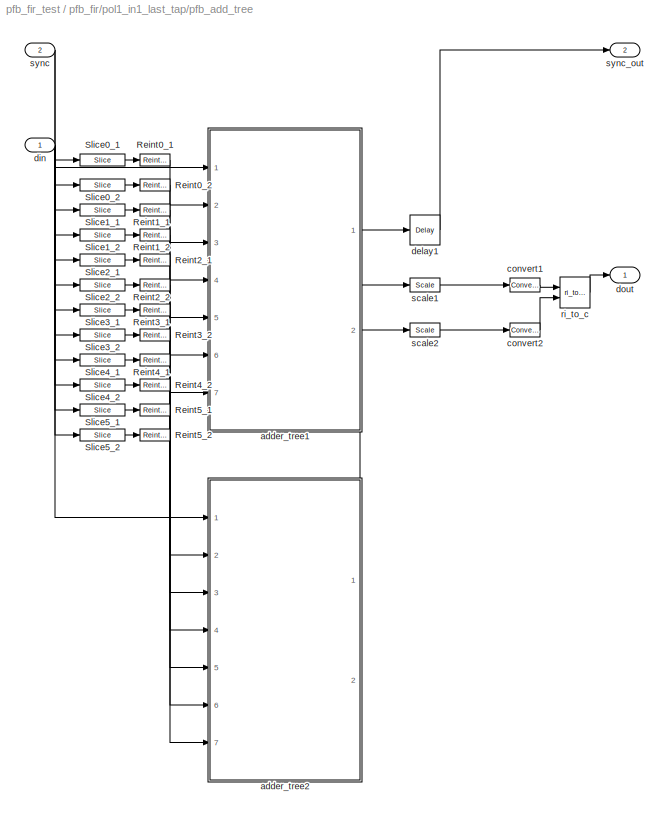
BLOCK [SubSystem] pfb_fir/pol1_in1_last_tap/pfb_add_tree
  AttributesFormatString = taps=6, add_latency=1
  FunctionWithSeparateData = off
  MaskCallbackString = |||||
  MaskEnableString = on,on,on,on,on,on
  MaskHideContents = off
  MaskIconFrame = on
  MaskIconOpaque = on
  MaskIconRotate = none
  MaskIconUnits = autoscale
  MaskInitialization = pfb_add_tree_init(gcb, ...\n    'TotalTaps', TotalTaps, ...\n    'BitWidthIn', BitWidthIn, ...\n    'BitWidthOut', BitWidthOut, ...\n    'CoeffBitWidth', CoeffBitWidth, ...\n    'add_latency', add_latency, ...\n    'quantization', quantization);
  MaskPromptString = Total Number of Taps:|Input Bitwidth:|Output Bitwidth:|Coeff Bitwidth:|Add Latency|Quantization Behavior
  MaskSelfModifiable = on
  MaskStyleString = edit,edit,edit,edit,edit,popup(Truncate|Round  (unbiased: +/- Inf)|Round  (unbiased: Even Values))
  MaskTabNameString = ,,,,,
  MaskToolTipString = on,on,on,on,on,on
  MaskTunableValueString = on,on,on,on,on,on
  MaskType = pfb_add_tree
  MaskValueString = 6|12|20|8|1|Round  (unbiased: +/- Inf)
  MaskVarAliasString = ,,,,,
  MaskVariables = TotalTaps=@1;BitWidthIn=@2;BitWidthOut=@3;CoeffBitWidth=@4;add_latency=@5;quantization=&6;
  MaskVisibilityString = on,on,on,on,on,on
  MinAlgLoopOccurrences = off
  Opaque = off
  Ports = [2, 2]
  PropExecContextOutsideSubsystem = off
  RTWSystemCode = Auto
  RequestExecContextInheritance = off
  UserData = DataTag9
  UserDataPersistent = on
BLOCK [Reference] pfb_fir/pol1_in1_last_tap/pfb_add_tree/Reint0_1  REF=xbsIndex_r4/Reinterpret
  Ports = [1, 1]
  SourceBlock = xbsIndex_r4/Reinterpret
  SourceType = Xilinx Type Reinterpreter Block
  arith_type = Signed  (2's comp)
  bin_pt = 18
  block_type = reinterpret
  block_version = 11.4
  force_arith_type = on
  force_bin_pt = on
  has_advanced_control = 0
  sg_icon_stat = 30,12,1,1,white,blue,0,6b04d0b0,right,
  sg_mask_display = fprintf('','COMMENT: begin icon graphics');\npatch([0 1 1 0 ],[0 0 1 1 ],[0.77 0.82 0.91]);\npatch([0.4 0.333333 0.433333 0.333333 0.4 0.5 0.533333 0.566667 0.666667 0.566667 0.466667 0.4 0.5 0.4 0.466667 0.566667 0.666667 0.566667 0.533333 0.5 0.4 ],[0.0833333 0.25 0.5 0.75 0.916667 0.916667 0.833333 0.916667 0.916667 0.666667 0.916667 0.75 0.5 0.25 0.0833333 0.333333 0.0833333 0.0833333 0.166667...<+237ch>  <repeated x24 — deduplicated; at blocks: Reint0_1, Reint0_2, Reint1_1, Reint1_2, Reint2_1, Reint2_2, Reint3_1, Reint3_2, Reint4_1, Reint4_2, Reint5_1, Reint5_2>
  sggui_pos = -1,-1,-1,-1
BLOCK [Reference] pfb_fir/pol1_in1_last_tap/pfb_add_tree/Reint0_2  REF=xbsIndex_r4/Reinterpret
  Ports = [1, 1]
  SourceBlock = xbsIndex_r4/Reinterpret
  SourceType = Xilinx Type Reinterpreter Block
  arith_type = Signed  (2's comp)
  bin_pt = 18
  block_type = reinterpret
  block_version = 11.4
  force_arith_type = on
  force_bin_pt = on
  has_advanced_control = 0
  sg_icon_stat = 30,12,1,1,white,blue,0,6b04d0b0,right,
  sggui_pos = -1,-1,-1,-1
BLOCK [Reference] pfb_fir/pol1_in1_last_tap/pfb_add_tree/Reint1_1  REF=xbsIndex_r4/Reinterpret
  Ports = [1, 1]
  SourceBlock = xbsIndex_r4/Reinterpret
  SourceType = Xilinx Type Reinterpreter Block
  arith_type = Signed  (2's comp)
  bin_pt = 18
  block_type = reinterpret
  block_version = 11.4
  force_arith_type = on
  force_bin_pt = on
  has_advanced_control = 0
  sg_icon_stat = 30,12,1,1,white,blue,0,6b04d0b0,right,
  sggui_pos = -1,-1,-1,-1
BLOCK [Reference] pfb_fir/pol1_in1_last_tap/pfb_add_tree/Reint1_2  REF=xbsIndex_r4/Reinterpret
  Ports = [1, 1]
  SourceBlock = xbsIndex_r4/Reinterpret
  SourceType = Xilinx Type Reinterpreter Block
  arith_type = Signed  (2's comp)
  bin_pt = 18
  block_type = reinterpret
  block_version = 11.4
  force_arith_type = on
  force_bin_pt = on
  has_advanced_control = 0
  sg_icon_stat = 30,12,1,1,white,blue,0,6b04d0b0,right,
  sggui_pos = -1,-1,-1,-1
BLOCK [Reference] pfb_fir/pol1_in1_last_tap/pfb_add_tree/Reint2_1  REF=xbsIndex_r4/Reinterpret
  Ports = [1, 1]
  SourceBlock = xbsIndex_r4/Reinterpret
  SourceType = Xilinx Type Reinterpreter Block
  arith_type = Signed  (2's comp)
  bin_pt = 18
  block_type = reinterpret
  block_version = 11.4
  force_arith_type = on
  force_bin_pt = on
  has_advanced_control = 0
  sg_icon_stat = 30,12,1,1,white,blue,0,6b04d0b0,right,
  sggui_pos = -1,-1,-1,-1
BLOCK [Reference] pfb_fir/pol1_in1_last_tap/pfb_add_tree/Reint2_2  REF=xbsIndex_r4/Reinterpret
  Ports = [1, 1]
  SourceBlock = xbsIndex_r4/Reinterpret
  SourceType = Xilinx Type Reinterpreter Block
  arith_type = Signed  (2's comp)
  bin_pt = 18
  block_type = reinterpret
  block_version = 11.4
  force_arith_type = on
  force_bin_pt = on
  has_advanced_control = 0
  sg_icon_stat = 30,12,1,1,white,blue,0,6b04d0b0,right,
  sggui_pos = -1,-1,-1,-1
BLOCK [Reference] pfb_fir/pol1_in1_last_tap/pfb_add_tree/Reint3_1  REF=xbsIndex_r4/Reinterpret
  Ports = [1, 1]
  SourceBlock = xbsIndex_r4/Reinterpret
  SourceType = Xilinx Type Reinterpreter Block
  arith_type = Signed  (2's comp)
  bin_pt = 18
  block_type = reinterpret
  block_version = 11.4
  force_arith_type = on
  force_bin_pt = on
  has_advanced_control = 0
  sg_icon_stat = 30,12,1,1,white,blue,0,6b04d0b0,right,
  sggui_pos = -1,-1,-1,-1
BLOCK [Reference] pfb_fir/pol1_in1_last_tap/pfb_add_tree/Reint3_2  REF=xbsIndex_r4/Reinterpret
  Ports = [1, 1]
  SourceBlock = xbsIndex_r4/Reinterpret
  SourceType = Xilinx Type Reinterpreter Block
  arith_type = Signed  (2's comp)
  bin_pt = 18
  block_type = reinterpret
  block_version = 11.4
  force_arith_type = on
  force_bin_pt = on
  has_advanced_control = 0
  sg_icon_stat = 30,12,1,1,white,blue,0,6b04d0b0,right,
  sggui_pos = -1,-1,-1,-1
BLOCK [Reference] pfb_fir/pol1_in1_last_tap/pfb_add_tree/Reint4_1  REF=xbsIndex_r4/Reinterpret
  Ports = [1, 1]
  SourceBlock = xbsIndex_r4/Reinterpret
  SourceType = Xilinx Type Reinterpreter Block
  arith_type = Signed  (2's comp)
  bin_pt = 18
  block_type = reinterpret
  block_version = 11.4
  force_arith_type = on
  force_bin_pt = on
  has_advanced_control = 0
  sg_icon_stat = 30,12,1,1,white,blue,0,6b04d0b0,right,
  sggui_pos = -1,-1,-1,-1
BLOCK [Reference] pfb_fir/pol1_in1_last_tap/pfb_add_tree/Reint4_2  REF=xbsIndex_r4/Reinterpret
  Ports = [1, 1]
  SourceBlock = xbsIndex_r4/Reinterpret
  SourceType = Xilinx Type Reinterpreter Block
  arith_type = Signed  (2's comp)
  bin_pt = 18
  block_type = reinterpret
  block_version = 11.4
  force_arith_type = on
  force_bin_pt = on
  has_advanced_control = 0
  sg_icon_stat = 30,12,1,1,white,blue,0,6b04d0b0,right,
  sggui_pos = -1,-1,-1,-1
BLOCK [Reference] pfb_fir/pol1_in1_last_tap/pfb_add_tree/Reint5_1  REF=xbsIndex_r4/Reinterpret
  Ports = [1, 1]
  SourceBlock = xbsIndex_r4/Reinterpret
  SourceType = Xilinx Type Reinterpreter Block
  arith_type = Signed  (2's comp)
  bin_pt = 18
  block_type = reinterpret
  block_version = 11.4
  force_arith_type = on
  force_bin_pt = on
  has_advanced_control = 0
  sg_icon_stat = 30,12,1,1,white,blue,0,6b04d0b0,right,
  sggui_pos = -1,-1,-1,-1
BLOCK [Reference] pfb_fir/pol1_in1_last_tap/pfb_add_tree/Reint5_2  REF=xbsIndex_r4/Reinterpret
  Ports = [1, 1]
  SourceBlock = xbsIndex_r4/Reinterpret
  SourceType = Xilinx Type Reinterpreter Block
  arith_type = Signed  (2's comp)
  bin_pt = 18
  block_type = reinterpret
  block_version = 11.4
  force_arith_type = on
  force_bin_pt = on
  has_advanced_control = 0
  sg_icon_stat = 30,12,1,1,white,blue,0,6b04d0b0,right,
  sggui_pos = -1,-1,-1,-1
BLOCK [Reference] pfb_fir/pol1_in1_last_tap/pfb_add_tree/Slice0_1  REF=xbsIndex_r4/Slice
  Ports = [1, 1]
  SourceBlock = xbsIndex_r4/Slice
  SourceType = Xilinx Bit Slice Extractor Block
  base0 = MSB of Input
  base1 = MSB of Input
  bit0 = 0
  bit1 = 0
  block_type = slice
  block_version = 11.4
  boolean_output = off
  dbl_ovrd = off
  has_advanced_control = 0
  infoedit = Extracts a given range of bits from each input sample and presents it at the output.  The output type is ordinarily unsigned with binary point at zero, but can be Boolean when the slice is one bit wide.<br><br>Hardware notes: In hardware this block costs nothing.  <repeated x24 — deduplicated; at blocks: Slice0_1, Slice0_2, Slice1_1, Slice1_2, Slice2_1, Slice2_2, Slice3_1, Slice3_2, Slice4_1, Slice4_2, Slice5_1, Slice5_2>
  mode = Upper Bit Location + Width
  nbits = 20
  sg_icon_stat = 45,12,1,1,white,blue,0,1fd851a7,right,
  sg_mask_display = fprintf('','COMMENT: begin icon graphics');\npatch([0 1 1 0 ],[0 0 1 1 ],[0.77 0.82 0.91]);\npatch([0.422222 0.377778 0.444444 0.377778 0.422222 0.488889 0.511111 0.533333 0.6 0.533333 0.466667 0.422222 0.488889 0.422222 0.466667 0.533333 0.6 0.533333 0.511111 0.488889 0.422222 ],[0.0833333 0.25 0.5 0.75 0.916667 0.916667 0.833333 0.916667 0.916667 0.666667 0.916667 0.75 0.5 0.25 0.0833333 0.33333...<+278ch>  <repeated x24 — deduplicated; at blocks: Slice0_1, Slice0_2, Slice1_1, Slice1_2, Slice2_1, Slice2_2, Slice3_1, Slice3_2, Slice4_1, Slice4_2, Slice5_1, Slice5_2>
  sggui_pos = -1,-1,-1,-1
BLOCK [Reference] pfb_fir/pol1_in1_last_tap/pfb_add_tree/Slice0_2  REF=xbsIndex_r4/Slice
  Ports = [1, 1]
  SourceBlock = xbsIndex_r4/Slice
  SourceType = Xilinx Bit Slice Extractor Block
  base0 = MSB of Input
  base1 = MSB of Input
  bit0 = 0
  bit1 = -20
  block_type = slice
  block_version = 11.4
  boolean_output = off
  dbl_ovrd = off
  has_advanced_control = 0
  mode = Upper Bit Location + Width
  nbits = 20
  sg_icon_stat = 45,12,1,1,white,blue,0,1fd851a7,right,
  sggui_pos = -1,-1,-1,-1
BLOCK [Reference] pfb_fir/pol1_in1_last_tap/pfb_add_tree/Slice1_1  REF=xbsIndex_r4/Slice
  Ports = [1, 1]
  SourceBlock = xbsIndex_r4/Slice
  SourceType = Xilinx Bit Slice Extractor Block
  base0 = MSB of Input
  base1 = MSB of Input
  bit0 = 0
  bit1 = -40
  block_type = slice
  block_version = 11.4
  boolean_output = off
  dbl_ovrd = off
  has_advanced_control = 0
  mode = Upper Bit Location + Width
  nbits = 20
  sg_icon_stat = 45,12,1,1,white,blue,0,1fd851a7,right,
  sggui_pos = -1,-1,-1,-1
BLOCK [Reference] pfb_fir/pol1_in1_last_tap/pfb_add_tree/Slice1_2  REF=xbsIndex_r4/Slice
  Ports = [1, 1]
  SourceBlock = xbsIndex_r4/Slice
  SourceType = Xilinx Bit Slice Extractor Block
  base0 = MSB of Input
  base1 = MSB of Input
  bit0 = 0
  bit1 = -60
  block_type = slice
  block_version = 11.4
  boolean_output = off
  dbl_ovrd = off
  has_advanced_control = 0
  mode = Upper Bit Location + Width
  nbits = 20
  sg_icon_stat = 45,12,1,1,white,blue,0,1fd851a7,right,
  sggui_pos = -1,-1,-1,-1
BLOCK [Reference] pfb_fir/pol1_in1_last_tap/pfb_add_tree/Slice2_1  REF=xbsIndex_r4/Slice
  Ports = [1, 1]
  SourceBlock = xbsIndex_r4/Slice
  SourceType = Xilinx Bit Slice Extractor Block
  base0 = MSB of Input
  base1 = MSB of Input
  bit0 = 0
  bit1 = -80
  block_type = slice
  block_version = 11.4
  boolean_output = off
  dbl_ovrd = off
  has_advanced_control = 0
  mode = Upper Bit Location + Width
  nbits = 20
  sg_icon_stat = 45,12,1,1,white,blue,0,1fd851a7,right,
  sggui_pos = -1,-1,-1,-1
BLOCK [Reference] pfb_fir/pol1_in1_last_tap/pfb_add_tree/Slice2_2  REF=xbsIndex_r4/Slice
  Ports = [1, 1]
  SourceBlock = xbsIndex_r4/Slice
  SourceType = Xilinx Bit Slice Extractor Block
  base0 = MSB of Input
  base1 = MSB of Input
  bit0 = 0
  bit1 = -100
  block_type = slice
  block_version = 11.4
  boolean_output = off
  dbl_ovrd = off
  has_advanced_control = 0
  mode = Upper Bit Location + Width
  nbits = 20
  sg_icon_stat = 45,12,1,1,white,blue,0,1fd851a7,right,
  sggui_pos = -1,-1,-1,-1
BLOCK [Reference] pfb_fir/pol1_in1_last_tap/pfb_add_tree/Slice3_1  REF=xbsIndex_r4/Slice
  Ports = [1, 1]
  SourceBlock = xbsIndex_r4/Slice
  SourceType = Xilinx Bit Slice Extractor Block
  base0 = MSB of Input
  base1 = MSB of Input
  bit0 = 0
  bit1 = -120
  block_type = slice
  block_version = 11.4
  boolean_output = off
  dbl_ovrd = off
  has_advanced_control = 0
  mode = Upper Bit Location + Width
  nbits = 20
  sg_icon_stat = 45,12,1,1,white,blue,0,1fd851a7,right,
  sggui_pos = -1,-1,-1,-1
BLOCK [Reference] pfb_fir/pol1_in1_last_tap/pfb_add_tree/Slice3_2  REF=xbsIndex_r4/Slice
  Ports = [1, 1]
  SourceBlock = xbsIndex_r4/Slice
  SourceType = Xilinx Bit Slice Extractor Block
  base0 = MSB of Input
  base1 = MSB of Input
  bit0 = 0
  bit1 = -140
  block_type = slice
  block_version = 11.4
  boolean_output = off
  dbl_ovrd = off
  has_advanced_control = 0
  mode = Upper Bit Location + Width
  nbits = 20
  sg_icon_stat = 45,12,1,1,white,blue,0,1fd851a7,right,
  sggui_pos = -1,-1,-1,-1
BLOCK [Reference] pfb_fir/pol1_in1_last_tap/pfb_add_tree/Slice4_1  REF=xbsIndex_r4/Slice
  Ports = [1, 1]
  SourceBlock = xbsIndex_r4/Slice
  SourceType = Xilinx Bit Slice Extractor Block
  base0 = MSB of Input
  base1 = MSB of Input
  bit0 = 0
  bit1 = -160
  block_type = slice
  block_version = 11.4
  boolean_output = off
  dbl_ovrd = off
  has_advanced_control = 0
  mode = Upper Bit Location + Width
  nbits = 20
  sg_icon_stat = 45,12,1,1,white,blue,0,1fd851a7,right,
  sggui_pos = -1,-1,-1,-1
BLOCK [Reference] pfb_fir/pol1_in1_last_tap/pfb_add_tree/Slice4_2  REF=xbsIndex_r4/Slice
  Ports = [1, 1]
  SourceBlock = xbsIndex_r4/Slice
  SourceType = Xilinx Bit Slice Extractor Block
  base0 = MSB of Input
  base1 = MSB of Input
  bit0 = 0
  bit1 = -180
  block_type = slice
  block_version = 11.4
  boolean_output = off
  dbl_ovrd = off
  has_advanced_control = 0
  mode = Upper Bit Location + Width
  nbits = 20
  sg_icon_stat = 45,12,1,1,white,blue,0,1fd851a7,right,
  sggui_pos = -1,-1,-1,-1
BLOCK [Reference] pfb_fir/pol1_in1_last_tap/pfb_add_tree/Slice5_1  REF=xbsIndex_r4/Slice
  Ports = [1, 1]
  SourceBlock = xbsIndex_r4/Slice
  SourceType = Xilinx Bit Slice Extractor Block
  base0 = MSB of Input
  base1 = MSB of Input
  bit0 = 0
  bit1 = -200
  block_type = slice
  block_version = 11.4
  boolean_output = off
  dbl_ovrd = off
  has_advanced_control = 0
  mode = Upper Bit Location + Width
  nbits = 20
  sg_icon_stat = 45,12,1,1,white,blue,0,1fd851a7,right,
  sggui_pos = -1,-1,-1,-1
BLOCK [Reference] pfb_fir/pol1_in1_last_tap/pfb_add_tree/Slice5_2  REF=xbsIndex_r4/Slice
  Ports = [1, 1]
  SourceBlock = xbsIndex_r4/Slice
  SourceType = Xilinx Bit Slice Extractor Block
  base0 = MSB of Input
  base1 = MSB of Input
  bit0 = 0
  bit1 = -220
  block_type = slice
  block_version = 11.4
  boolean_output = off
  dbl_ovrd = off
  has_advanced_control = 0
  mode = Upper Bit Location + Width
  nbits = 20
  sg_icon_stat = 45,12,1,1,white,blue,0,1fd851a7,right,
  sggui_pos = -1,-1,-1,-1
BLOCK [SubSystem] pfb_fir/pol1_in1_last_tap/pfb_add_tree/adder_tree1
  AncestorBlock = casper_library_misc/adder_tree
  AttributesFormatString = latency 3
  FunctionWithSeparateData = off
  MaskCallbackString = |||
  MaskDescription = Sums all inputs using a tree of adds and delays.\n\nNumber of inputs: The number of inputs to the block to be summed\nAdd latency: The number of clock cycles to perform one addition (affects timing)..\nAdder implementation: choice of fabric or DSP48E core, or behavioral HDL\nUse behavioural HDL for first stage of adders: Causes the first stage of adders to be absorbed into DSP blocks if multiplier...<+59ch>  <repeated x4 — deduplicated; at blocks: adder_tree1, adder_tree2>
  MaskEnableString = on,on,on,on
  MaskHelp = eval('xlWeb(''http://casper.berkeley.edu/wiki/Adder_tree'')')
  MaskHideContents = off
  MaskIconFrame = on
  MaskIconOpaque = on
  MaskIconRotate = none
  MaskIconUnits = autoscale
  MaskInitialization = adder_tree_init(gcb, ...\n    'n_inputs', n_inputs, ...\n    'latency', latency, ...\n    'adder_imp', adder_imp, ...\n    'first_stage_hdl', first_stage_hdl);
  MaskPromptString = Number of Inputs|Add Latency|Adder implementation|Use behavioural HDL for first stage of adders
  MaskSelfModifiable = on
  MaskStyleString = edit,edit,popup(Behavioral|Fabric|DSP48),checkbox
  MaskTabNameString = ,,,
  MaskToolTipString = on,on,on,on
  MaskTunableValueString = on,on,on,on
  MaskType = adder_tree
  MaskValueString = 6|1|Fabric|off
  MaskVarAliasString = ,,,
  MaskVariables = n_inputs=@1;latency=@2;adder_imp=&3;first_stage_hdl=&4;
  MaskVisibilityString = on,on,on,on
  MinAlgLoopOccurrences = off
  Opaque = off
  Ports = [7, 2]
  PropExecContextOutsideSubsystem = off
  RTWSystemCode = Auto
  RequestExecContextInheritance = off
  UserData = DataTag10
  UserDataPersistent = on
BLOCK [Reference] pfb_fir/pol1_in1_last_tap/pfb_add_tree/adder_tree1/addr1  REF=xbsIndex_r4/AddSub
  Ports = [2, 1]
  SourceBlock = xbsIndex_r4/AddSub
  SourceType = Xilinx Adder/Subtracter Block
  arith_type = Signed  (2's comp)
  bin_pt = 18
  block_type = addsub
  block_version = 11.4
  dbl_ovrd = off
  en = off
  has_advanced_control = 0
  hw_selection = Fabric
  latency = 1
  mode = Addition
  n_bits = 20
  overflow = Wrap
  pipelined = on
  precision = User Defined
  quantization = Truncate
  sg_icon_stat = 40,60,2,1,white,blue,0,8ff03b5e,right,
  sg_mask_display = fprintf('','COMMENT: begin icon graphics');\npatch([0 1 1 0 ],[0 0 1 1 ],[0.77 0.82 0.91]);\npatch([0.25 0.075 0.3 0.075 0.25 0.525 0.6 0.675 0.95 0.725 0.5 0.35 0.6 0.35 0.5 0.725 0.95 0.675 0.6 0.525 0.25 ],[0.233333 0.35 0.5 0.65 0.766667 0.766667 0.716667 0.766667 0.766667 0.616667 0.766667 0.666667 0.5 0.333333 0.233333 0.383333 0.233333 0.233333 0.283333 0.233333 0.233333 ],[0.98 0.96 0.92])...<+386ch>  <repeated x20 — deduplicated; at blocks: addr1, addr2, addr3, addr4, addr6>
  sggui_pos = 23,125,419,344
  use_behavioral_HDL = off
  use_carryin = off
  use_carryout = off
  use_rpm = on
  xl_area = [0,0,0,0,0,0,0]
  xl_use_area = off
BLOCK [Reference] pfb_fir/pol1_in1_last_tap/pfb_add_tree/adder_tree1/addr2  REF=xbsIndex_r4/AddSub
  Ports = [2, 1]
  SourceBlock = xbsIndex_r4/AddSub
  SourceType = Xilinx Adder/Subtracter Block
  arith_type = Signed  (2's comp)
  bin_pt = 18
  block_type = addsub
  block_version = 11.4
  dbl_ovrd = off
  en = off
  has_advanced_control = 0
  hw_selection = Fabric
  latency = 1
  mode = Addition
  n_bits = 20
  overflow = Wrap
  pipelined = on
  precision = User Defined
  quantization = Truncate
  sg_icon_stat = 40,60,2,1,white,blue,0,8ff03b5e,right,
  sggui_pos = -1,-1,-1,-1
  use_behavioral_HDL = off
  use_carryin = off
  use_carryout = off
  use_rpm = on
  xl_area = [0,0,0,0,0,0,0]
  xl_use_area = off
BLOCK [Reference] pfb_fir/pol1_in1_last_tap/pfb_add_tree/adder_tree1/addr3  REF=xbsIndex_r4/AddSub
  Ports = [2, 1]
  SourceBlock = xbsIndex_r4/AddSub
  SourceType = Xilinx Adder/Subtracter Block
  arith_type = Signed  (2's comp)
  bin_pt = 18
  block_type = addsub
  block_version = 11.4
  dbl_ovrd = off
  en = off
  has_advanced_control = 0
  hw_selection = Fabric
  latency = 1
  mode = Addition
  n_bits = 20
  overflow = Wrap
  pipelined = on
  precision = User Defined
  quantization = Truncate
  sg_icon_stat = 40,60,2,1,white,blue,0,8ff03b5e,right,
  sggui_pos = -1,-1,-1,-1
  use_behavioral_HDL = off
  use_carryin = off
  use_carryout = off
  use_rpm = on
  xl_area = [0,0,0,0,0,0,0]
  xl_use_area = off
BLOCK [Reference] pfb_fir/pol1_in1_last_tap/pfb_add_tree/adder_tree1/addr4  REF=xbsIndex_r4/AddSub
  Ports = [2, 1]
  SourceBlock = xbsIndex_r4/AddSub
  SourceType = Xilinx Adder/Subtracter Block
  arith_type = Signed  (2's comp)
  bin_pt = 18
  block_type = addsub
  block_version = 11.4
  dbl_ovrd = off
  en = off
  has_advanced_control = 0
  hw_selection = Fabric
  latency = 1
  mode = Addition
  n_bits = 20
  overflow = Wrap
  pipelined = on
  precision = User Defined
  quantization = Truncate
  sg_icon_stat = 40,60,2,1,white,blue,0,8ff03b5e,right,
  sggui_pos = -1,-1,-1,-1
  use_behavioral_HDL = off
  use_carryin = off
  use_carryout = off
  use_rpm = on
  xl_area = [0,0,0,0,0,0,0]
  xl_use_area = off
BLOCK [Reference] pfb_fir/pol1_in1_last_tap/pfb_add_tree/adder_tree1/addr6  REF=xbsIndex_r4/AddSub
  Ports = [2, 1]
  SourceBlock = xbsIndex_r4/AddSub
  SourceType = Xilinx Adder/Subtracter Block
  arith_type = Signed  (2's comp)
  bin_pt = 18
  block_type = addsub
  block_version = 11.4
  dbl_ovrd = off
  en = off
  has_advanced_control = 0
  hw_selection = Fabric
  latency = 1
  mode = Addition
  n_bits = 20
  overflow = Wrap
  pipelined = on
  precision = User Defined
  quantization = Truncate
  sg_icon_stat = 40,60,2,1,white,blue,0,8ff03b5e,right,
  sggui_pos = -1,-1,-1,-1
  use_behavioral_HDL = off
  use_carryin = off
  use_carryout = off
  use_rpm = on
  xl_area = [0,0,0,0,0,0,0]
  xl_use_area = off
BLOCK [Inport] pfb_fir/pol1_in1_last_tap/pfb_add_tree/adder_tree1/din1
  IconDisplay = Port number
  Port = 2
BLOCK [Inport] pfb_fir/pol1_in1_last_tap/pfb_add_tree/adder_tree1/din2
  IconDisplay = Port number
  Port = 3
BLOCK [Inport] pfb_fir/pol1_in1_last_tap/pfb_add_tree/adder_tree1/din3
  IconDisplay = Port number
  Port = 4
BLOCK [Inport] pfb_fir/pol1_in1_last_tap/pfb_add_tree/adder_tree1/din4
  IconDisplay = Port number
  Port = 5
BLOCK [Inport] pfb_fir/pol1_in1_last_tap/pfb_add_tree/adder_tree1/din5
  IconDisplay = Port number
  Port = 6
BLOCK [Inport] pfb_fir/pol1_in1_last_tap/pfb_add_tree/adder_tree1/din6
  IconDisplay = Port number
  Port = 7
BLOCK [Reference] pfb_fir/pol1_in1_last_tap/pfb_add_tree/adder_tree1/dly5  REF=xbsIndex_r4/Delay
  Ports = [1, 1]
  SourceBlock = xbsIndex_r4/Delay
  SourceType = Xilinx Delay Block
  block_type = delay
  block_version = 11.4
  dbl_ovrd = off
  en = off
  has_advanced_control = 0
  infoedit = Hardware notes: A delay line is a chain, each link of which is an SRL16 followed by a flip-flop.
  latency = 1
  reg_retiming = on
  sg_icon_stat = 40,60,1,1,white,blue,0,07b98262,right,
  sg_mask_display = fprintf('','COMMENT: begin icon graphics');\npatch([0 1 1 0 ],[0 0 1 1 ],[0.77 0.82 0.91]);\npatch([0.25 0.075 0.3 0.075 0.25 0.525 0.6 0.675 0.95 0.725 0.5 0.35 0.6 0.35 0.5 0.725 0.95 0.675 0.6 0.525 0.25 ],[0.233333 0.35 0.5 0.65 0.766667 0.766667 0.716667 0.766667 0.766667 0.616667 0.766667 0.666667 0.5 0.333333 0.233333 0.383333 0.233333 0.233333 0.283333 0.233333 0.233333 ],[0.98 0.96 0.92])...<+207ch>  <repeated x4 — deduplicated; at blocks: dly5>
  sggui_pos = -1,-1,-1,-1
  xl_area = [0,0,0,0,0,0,0]
  xl_use_area = off
BLOCK [Outport] pfb_fir/pol1_in1_last_tap/pfb_add_tree/adder_tree1/dout
  IconDisplay = Port number
  Port = 2
BLOCK [Inport] pfb_fir/pol1_in1_last_tap/pfb_add_tree/adder_tree1/sync
  IconDisplay = Port number
BLOCK [Reference] pfb_fir/pol1_in1_last_tap/pfb_add_tree/adder_tree1/sync_delay  REF=xbsIndex_r4/Delay
  Ports = [1, 1]
  SourceBlock = xbsIndex_r4/Delay
  SourceType = Xilinx Delay Block
  block_type = delay
  block_version = 11.4
  dbl_ovrd = off
  en = off
  has_advanced_control = 0
  infoedit = Hardware notes: A delay line is a chain, each link of which is an SRL16 followed by a flip-flop.
  latency = 3
  reg_retiming = on
  sg_icon_stat = 30,30,1,1,white,blue,0,83e6bb61,right,
  sg_mask_display = fprintf('','COMMENT: begin icon graphics');\npatch([0 1 1 0 ],[0 0 1 1 ],[0.77 0.82 0.91]);\npatch([0.233333 0.0666667 0.3 0.0666667 0.233333 0.5 0.566667 0.633333 0.9 0.666667 0.466667 0.3 0.5 0.3 0.466667 0.666667 0.9 0.633333 0.566667 0.5 0.233333 ],[0.1 0.266667 0.5 0.733333 0.9 0.9 0.833333 0.9 0.9 0.666667 0.866667 0.7 0.5 0.3 0.133333 0.333333 0.1 0.1 0.166667 0.1 0.1 ],[0.98 0.96 0.92]);\n...<+204ch>  <repeated x6 — deduplicated; at blocks: sync_delay, delay1>
  sggui_pos = 21,71,419,315
  xl_area = [0,0,0,0,0,0,0]
  xl_use_area = off
BLOCK [Outport] pfb_fir/pol1_in1_last_tap/pfb_add_tree/adder_tree1/sync_out
  IconDisplay = Port number
BLOCK [SubSystem] pfb_fir/pol1_in1_last_tap/pfb_add_tree/adder_tree2
  AncestorBlock = casper_library_misc/adder_tree
  AttributesFormatString = latency 3
  FunctionWithSeparateData = off
  MaskCallbackString = |||
  MaskEnableString = on,on,on,on
  MaskHelp = eval('xlWeb(''http://casper.berkeley.edu/wiki/Adder_tree'')')
  MaskHideContents = off
  MaskIconFrame = on
  MaskIconOpaque = on
  MaskIconRotate = none
  MaskIconUnits = autoscale
  MaskInitialization = adder_tree_init(gcb, ...\n    'n_inputs', n_inputs, ...\n    'latency', latency, ...\n    'adder_imp', adder_imp, ...\n    'first_stage_hdl', first_stage_hdl);
  MaskPromptString = Number of Inputs|Add Latency|Adder implementation|Use behavioural HDL for first stage of adders
  MaskSelfModifiable = on
  MaskStyleString = edit,edit,popup(Behavioral|Fabric|DSP48),checkbox
  MaskTabNameString = ,,,
  MaskToolTipString = on,on,on,on
  MaskTunableValueString = on,on,on,on
  MaskType = adder_tree
  MaskValueString = 6|1|Fabric|off
  MaskVarAliasString = ,,,
  MaskVariables = n_inputs=@1;latency=@2;adder_imp=&3;first_stage_hdl=&4;
  MaskVisibilityString = on,on,on,on
  MinAlgLoopOccurrences = off
  Opaque = off
  Ports = [7, 2]
  PropExecContextOutsideSubsystem = off
  RTWSystemCode = Auto
  RequestExecContextInheritance = off
  UserData = DataTag11
  UserDataPersistent = on
BLOCK [Reference] pfb_fir/pol1_in1_last_tap/pfb_add_tree/adder_tree2/addr1  REF=xbsIndex_r4/AddSub
  Ports = [2, 1]
  SourceBlock = xbsIndex_r4/AddSub
  SourceType = Xilinx Adder/Subtracter Block
  arith_type = Signed  (2's comp)
  bin_pt = 18
  block_type = addsub
  block_version = 11.4
  dbl_ovrd = off
  en = off
  has_advanced_control = 0
  hw_selection = Fabric
  latency = 1
  mode = Addition
  n_bits = 20
  overflow = Wrap
  pipelined = on
  precision = User Defined
  quantization = Truncate
  sg_icon_stat = 40,60,2,1,white,blue,0,8ff03b5e,right,
  sggui_pos = 23,125,419,344
  use_behavioral_HDL = off
  use_carryin = off
  use_carryout = off
  use_rpm = on
  xl_area = [0,0,0,0,0,0,0]
  xl_use_area = off
BLOCK [Reference] pfb_fir/pol1_in1_last_tap/pfb_add_tree/adder_tree2/addr2  REF=xbsIndex_r4/AddSub
  Ports = [2, 1]
  SourceBlock = xbsIndex_r4/AddSub
  SourceType = Xilinx Adder/Subtracter Block
  arith_type = Signed  (2's comp)
  bin_pt = 18
  block_type = addsub
  block_version = 11.4
  dbl_ovrd = off
  en = off
  has_advanced_control = 0
  hw_selection = Fabric
  latency = 1
  mode = Addition
  n_bits = 20
  overflow = Wrap
  pipelined = on
  precision = User Defined
  quantization = Truncate
  sg_icon_stat = 40,60,2,1,white,blue,0,8ff03b5e,right,
  sggui_pos = -1,-1,-1,-1
  use_behavioral_HDL = off
  use_carryin = off
  use_carryout = off
  use_rpm = on
  xl_area = [0,0,0,0,0,0,0]
  xl_use_area = off
BLOCK [Reference] pfb_fir/pol1_in1_last_tap/pfb_add_tree/adder_tree2/addr3  REF=xbsIndex_r4/AddSub
  Ports = [2, 1]
  SourceBlock = xbsIndex_r4/AddSub
  SourceType = Xilinx Adder/Subtracter Block
  arith_type = Signed  (2's comp)
  bin_pt = 18
  block_type = addsub
  block_version = 11.4
  dbl_ovrd = off
  en = off
  has_advanced_control = 0
  hw_selection = Fabric
  latency = 1
  mode = Addition
  n_bits = 20
  overflow = Wrap
  pipelined = on
  precision = User Defined
  quantization = Truncate
  sg_icon_stat = 40,60,2,1,white,blue,0,8ff03b5e,right,
  sggui_pos = -1,-1,-1,-1
  use_behavioral_HDL = off
  use_carryin = off
  use_carryout = off
  use_rpm = on
  xl_area = [0,0,0,0,0,0,0]
  xl_use_area = off
BLOCK [Reference] pfb_fir/pol1_in1_last_tap/pfb_add_tree/adder_tree2/addr4  REF=xbsIndex_r4/AddSub
  Ports = [2, 1]
  SourceBlock = xbsIndex_r4/AddSub
  SourceType = Xilinx Adder/Subtracter Block
  arith_type = Signed  (2's comp)
  bin_pt = 18
  block_type = addsub
  block_version = 11.4
  dbl_ovrd = off
  en = off
  has_advanced_control = 0
  hw_selection = Fabric
  latency = 1
  mode = Addition
  n_bits = 20
  overflow = Wrap
  pipelined = on
  precision = User Defined
  quantization = Truncate
  sg_icon_stat = 40,60,2,1,white,blue,0,8ff03b5e,right,
  sggui_pos = -1,-1,-1,-1
  use_behavioral_HDL = off
  use_carryin = off
  use_carryout = off
  use_rpm = on
  xl_area = [0,0,0,0,0,0,0]
  xl_use_area = off
BLOCK [Reference] pfb_fir/pol1_in1_last_tap/pfb_add_tree/adder_tree2/addr6  REF=xbsIndex_r4/AddSub
  Ports = [2, 1]
  SourceBlock = xbsIndex_r4/AddSub
  SourceType = Xilinx Adder/Subtracter Block
  arith_type = Signed  (2's comp)
  bin_pt = 18
  block_type = addsub
  block_version = 11.4
  dbl_ovrd = off
  en = off
  has_advanced_control = 0
  hw_selection = Fabric
  latency = 1
  mode = Addition
  n_bits = 20
  overflow = Wrap
  pipelined = on
  precision = User Defined
  quantization = Truncate
  sg_icon_stat = 40,60,2,1,white,blue,0,8ff03b5e,right,
  sggui_pos = -1,-1,-1,-1
  use_behavioral_HDL = off
  use_carryin = off
  use_carryout = off
  use_rpm = on
  xl_area = [0,0,0,0,0,0,0]
  xl_use_area = off
BLOCK [Inport] pfb_fir/pol1_in1_last_tap/pfb_add_tree/adder_tree2/din1
  IconDisplay = Port number
  Port = 2
BLOCK [Inport] pfb_fir/pol1_in1_last_tap/pfb_add_tree/adder_tree2/din2
  IconDisplay = Port number
  Port = 3
BLOCK [Inport] pfb_fir/pol1_in1_last_tap/pfb_add_tree/adder_tree2/din3
  IconDisplay = Port number
  Port = 4
BLOCK [Inport] pfb_fir/pol1_in1_last_tap/pfb_add_tree/adder_tree2/din4
  IconDisplay = Port number
  Port = 5
BLOCK [Inport] pfb_fir/pol1_in1_last_tap/pfb_add_tree/adder_tree2/din5
  IconDisplay = Port number
  Port = 6
BLOCK [Inport] pfb_fir/pol1_in1_last_tap/pfb_add_tree/adder_tree2/din6
  IconDisplay = Port number
  Port = 7
BLOCK [Reference] pfb_fir/pol1_in1_last_tap/pfb_add_tree/adder_tree2/dly5  REF=xbsIndex_r4/Delay
  Ports = [1, 1]
  SourceBlock = xbsIndex_r4/Delay
  SourceType = Xilinx Delay Block
  block_type = delay
  block_version = 11.4
  dbl_ovrd = off
  en = off
  has_advanced_control = 0
  infoedit = Hardware notes: A delay line is a chain, each link of which is an SRL16 followed by a flip-flop.
  latency = 1
  reg_retiming = on
  sg_icon_stat = 40,60,1,1,white,blue,0,07b98262,right,
  sggui_pos = -1,-1,-1,-1
  xl_area = [0,0,0,0,0,0,0]
  xl_use_area = off
BLOCK [Outport] pfb_fir/pol1_in1_last_tap/pfb_add_tree/adder_tree2/dout
  IconDisplay = Port number
  Port = 2
BLOCK [Inport] pfb_fir/pol1_in1_last_tap/pfb_add_tree/adder_tree2/sync
  IconDisplay = Port number
BLOCK [Reference] pfb_fir/pol1_in1_last_tap/pfb_add_tree/adder_tree2/sync_delay  REF=xbsIndex_r4/Delay
  Ports = [1, 1]
  SourceBlock = xbsIndex_r4/Delay
  SourceType = Xilinx Delay Block
  block_type = delay
  block_version = 11.4
  dbl_ovrd = off
  en = off
  has_advanced_control = 0
  infoedit = Hardware notes: A delay line is a chain, each link of which is an SRL16 followed by a flip-flop.
  latency = 3
  reg_retiming = on
  sg_icon_stat = 30,30,1,1,white,blue,0,83e6bb61,right,
  sggui_pos = 21,71,419,315
  xl_area = [0,0,0,0,0,0,0]
  xl_use_area = off
BLOCK [Outport] pfb_fir/pol1_in1_last_tap/pfb_add_tree/adder_tree2/sync_out
  IconDisplay = Port number
BLOCK [Reference] pfb_fir/pol1_in1_last_tap/pfb_add_tree/convert1  REF=xbsIndex_r4/Convert
  Ports = [1, 1]
  SourceBlock = xbsIndex_r4/Convert
  SourceType = Xilinx Type Converter Block
  arith_type = Signed  (2's comp)
  bin_pt = 19
  block_type = convert
  block_version = 11.4
  dbl_ovrd = off
  has_advanced_control = 0
  infoedit = Hardware notes: rounding and saturating require hardware resources; truncating and wrapping do not.
  latency = 1
  n_bits = 20
  overflow = Wrap
  pipeline = on
  quantization = Truncate
  sg_icon_stat = 30,14,1,1,white,blue,0,d6ffdbcd,right,
  sg_mask_display = fprintf('','COMMENT: begin icon graphics');\npatch([0 1 1 0 ],[0 0 1 1 ],[0.77 0.82 0.91]);\npatch([0.366667 0.3 0.4 0.3 0.366667 0.5 0.533333 0.566667 0.7 0.6 0.5 0.433333 0.533333 0.433333 0.5 0.6 0.7 0.566667 0.533333 0.5 0.366667 ],[0.142857 0.285714 0.5 0.714286 0.857143 0.857143 0.785714 0.857143 0.857143 0.642857 0.857143 0.714286 0.5 0.285714 0.142857 0.357143 0.142857 0.142857 0.214286 0....<+298ch>  <repeated x4 — deduplicated; at blocks: convert1, convert2>
  sggui_pos = -1,-1,-1,-1
  xl_area = [0,0,0,0,0,0,0]
  xl_use_area = off
BLOCK [Reference] pfb_fir/pol1_in1_last_tap/pfb_add_tree/convert2  REF=xbsIndex_r4/Convert
  Ports = [1, 1]
  SourceBlock = xbsIndex_r4/Convert
  SourceType = Xilinx Type Converter Block
  arith_type = Signed  (2's comp)
  bin_pt = 19
  block_type = convert
  block_version = 11.4
  dbl_ovrd = off
  has_advanced_control = 0
  infoedit = Hardware notes: rounding and saturating require hardware resources; truncating and wrapping do not.
  latency = 1
  n_bits = 20
  overflow = Wrap
  pipeline = off
  quantization = Truncate
  sg_icon_stat = 30,14,1,1,white,blue,0,d6ffdbcd,right,
  sggui_pos = -1,-1,-1,-1
  xl_area = [0,0,0,0,0,0,0]
  xl_use_area = off
BLOCK [Reference] pfb_fir/pol1_in1_last_tap/pfb_add_tree/delay1  REF=xbsIndex_r4/Delay
  Ports = [1, 1]
  SourceBlock = xbsIndex_r4/Delay
  SourceType = Xilinx Delay Block
  block_type = delay
  block_version = 11.4
  dbl_ovrd = off
  en = off
  has_advanced_control = 0
  infoedit = Hardware notes: A delay line is a chain, each link of which is an SRL16 followed by a flip-flop.
  latency = 1
  reg_retiming = off
  sg_icon_stat = 30,30,1,1,white,blue,0,07b98262,right,
  sggui_pos = -1,-1,-1,-1
  xl_area = [0,0,0,0,0,0,0]
  xl_use_area = off
BLOCK [Inport] pfb_fir/pol1_in1_last_tap/pfb_add_tree/din
  IconDisplay = Port number
BLOCK [Outport] pfb_fir/pol1_in1_last_tap/pfb_add_tree/dout
  IconDisplay = Port number
BLOCK [Reference] pfb_fir/pol1_in1_last_tap/pfb_add_tree/ri_to_c  REF=casper_library_misc/ri_to_c  (lib defined in mdl_357510c33b49, mdl_57b5f564ae26, +4 more)
  FunctionWithSeparateData = off
  Ports = [2, 1]
  RTWMemSecDataConstants = Inherit from model
  RTWMemSecDataInternal = Inherit from model
  RTWMemSecDataParameters = Inherit from model
  RTWMemSecFuncExecute = Inherit from model
  RTWMemSecFuncInitTerm = Inherit from model
  ShowPortLabels = FromPortIcon
  SourceBlock = casper_library_misc/ri_to_c
  SourceType = ri_to_c
  SystemSampleTime = -1
  UserData = DataTag12
  UserDataPersistent = on
BLOCK [Reference] pfb_fir/pol1_in1_last_tap/pfb_add_tree/scale1  REF=xbsIndex_r4/Scale
  Ports = [1, 1]
  SourceBlock = xbsIndex_r4/Scale
  SourceType = Xilinx Input Scaler Block
  block_type = scale
  block_version = 11.4
  dbl_ovrd = off
  has_advanced_control = 0
  infoedit = Scales input by a power of two by adjusting the binary point position.<br><br>Hardware notes: In hardware this block costs nothing.
  scale_factor = -1
  sg_icon_stat = 30,14,1,1,white,blue,0,315b7d78,right,
  sg_mask_display = fprintf('','COMMENT: begin icon graphics');\npatch([0 1 1 0 ],[0 0 1 1 ],[0.77 0.82 0.91]);\npatch([0.366667 0.3 0.4 0.3 0.366667 0.5 0.533333 0.566667 0.7 0.6 0.5 0.433333 0.533333 0.433333 0.5 0.6 0.7 0.566667 0.533333 0.5 0.366667 ],[0.142857 0.285714 0.5 0.714286 0.857143 0.857143 0.785714 0.857143 0.857143 0.642857 0.857143 0.714286 0.5 0.285714 0.142857 0.357143 0.142857 0.142857 0.214286 0....<+248ch>  <repeated x4 — deduplicated; at blocks: scale1, scale2>
  sggui_pos = -1,-1,-1,-1
BLOCK [Reference] pfb_fir/pol1_in1_last_tap/pfb_add_tree/scale2  REF=xbsIndex_r4/Scale
  Ports = [1, 1]
  SourceBlock = xbsIndex_r4/Scale
  SourceType = Xilinx Input Scaler Block
  block_type = scale
  block_version = 11.4
  dbl_ovrd = off
  has_advanced_control = 0
  infoedit = Scales input by a power of two by adjusting the binary point position.<br><br>Hardware notes: In hardware this block costs nothing.
  scale_factor = -1
  sg_icon_stat = 30,14,1,1,white,blue,0,315b7d78,right,
  sggui_pos = -1,-1,-1,-1
BLOCK [Inport] pfb_fir/pol1_in1_last_tap/pfb_add_tree/sync
  IconDisplay = Port number
  Port = 2
BLOCK [Outport] pfb_fir/pol1_in1_last_tap/pfb_add_tree/sync_out
  IconDisplay = Port number
  Port = 2
BLOCK [SubSystem] pfb_fir/pol1_in1_last_tap/ri_to_c
  FunctionWithSeparateData = off
  MaskHideContents = off
  MinAlgLoopOccurrences = off
  Opaque = off
  Ports = [2, 1]
  PropExecContextOutsideSubsystem = off
  RTWSystemCode = Auto
  RequestExecContextInheritance = off
BLOCK [Reference] pfb_fir/pol1_in1_last_tap/ri_to_c/Concat  REF=xbsIndex_r4/Concat
  Ports = [2, 1]
  SourceBlock = xbsIndex_r4/Concat
  SourceType = Xilinx Bus Concatenator Block
  block_type = concat
  block_version = 9.1.01
  dbl_ovrd = off
  has_advanced_control = 0
  infoedit = Concatenates two or more inputs.  Output will be cast to an unsigned value with the binary point at zero.
  num_inputs = 2
  sg_icon_stat = 50,55,2,1,white,blue,0,97b7e8d2,right,
  sggui_pos = -1,-1,-1,-1
BLOCK [Reference] pfb_fir/pol1_in1_last_tap/ri_to_c/Reinterpret  REF=xbsIndex_r4/Reinterpret
  Ports = [1, 1]
  SourceBlock = xbsIndex_r4/Reinterpret
  SourceType = Xilinx Type Reinterpreter Block
  arith_type = Unsigned
  bin_pt = 0
  block_type = reinterpret
  block_version = 9.1.01
  force_arith_type = on
  force_bin_pt = on
  has_advanced_control = 0
  sg_icon_stat = 40,32,1,1,white,blue,0,6b04d0b0,right,
  sggui_pos = -1,-1,-1,-1
BLOCK [Reference] pfb_fir/pol1_in1_last_tap/ri_to_c/Reinterpret1  REF=xbsIndex_r4/Reinterpret
  Ports = [1, 1]
  SourceBlock = xbsIndex_r4/Reinterpret
  SourceType = Xilinx Type Reinterpreter Block
  arith_type = Unsigned
  bin_pt = 0
  block_type = reinterpret
  block_version = 9.1.01
  force_arith_type = on
  force_bin_pt = on
  has_advanced_control = 0
  sg_icon_stat = 40,32,1,1,white,blue,0,6b04d0b0,right,
  sggui_pos = -1,-1,-1,-1
BLOCK [Outport] pfb_fir/pol1_in1_last_tap/ri_to_c/c
  IconDisplay = Port number
  OutDataType = sfix(16)
  OutScaling = 2^0
BLOCK [Inport] pfb_fir/pol1_in1_last_tap/ri_to_c/im
  IconDisplay = Port number
  OutDataType = sfix(16)
  OutScaling = 2^0
  Port = 2
BLOCK [Inport] pfb_fir/pol1_in1_last_tap/ri_to_c/re
  IconDisplay = Port number
  OutDataType = sfix(16)
  OutScaling = 2^0
BLOCK [Inport] pfb_fir/pol1_in1_last_tap/sync
  IconDisplay = Port number
  OutDataType = sfix(16)
  OutScaling = 2^0
  Port = 2
BLOCK [Outport] pfb_fir/pol1_in1_last_tap/sync_out
  IconDisplay = Port number
  OutDataType = sfix(16)
  OutScaling = 2^0
  Port = 2
BLOCK [Inport] pfb_fir/pol1_in1_last_tap/taps
  IconDisplay = Port number
  OutDataType = sfix(16)
  OutScaling = 2^0
  Port = 4
BLOCK [SubSystem] pfb_fir/pol1_in1_tap2
  AncestorBlock = casper_library_pfbs/tap
  FunctionWithSeparateData = off
  MaskCallbackString = ||||||use_hdl = get_param(gcb,'use_hdl');\nif( strcmp(use_hdl,'on')),\n    set_param(gcb, 'use_embedded','off');\n    set_param(gcb, 'MaskVisibilities',{'on','on','on','on','on','on','on','off'});\nelse,\n    set_param(gcb, 'MaskVisibilities',{'on','on','on','on','on','on','on','on'});    \nend\n|  <repeated x8 — deduplicated; at blocks: pol1_in1_tap2, pol1_in1_tap3, pol1_in1_tap4, pol1_in1_tap5, pol2_in1_tap2, pol2_in1_tap3, pol2_in1_tap4, pol2_in1_tap5>
  MaskEnableString = on,on,on,on,on,on,on,on
  MaskHideContents = off
  MaskIconFrame = on
  MaskIconOpaque = on
  MaskIconRotate = none
  MaskIconUnits = autoscale
  MaskInitialization = use_hdl = get_param(gcb,'use_hdl');\nuse_embedded = get_param(gcb,'use_embedded');\nset_param(gcb,'LinkStatus','inactive');\n\nset_param([gcb,'/Mult'],'use_embedded',use_embedded);\nset_param([gcb,'/Mult'],'use_behavioral_HDL',use_hdl);\nset_param([gcb,'/Mult1'],'use_embedded',use_embedded);\nset_param([gcb,'/Mult1'],'use_behavioral_HDL',use_hdl);\n  <repeated x8 — deduplicated; at blocks: pol1_in1_tap2, pol1_in1_tap3, pol1_in1_tap4, pol1_in1_tap5, pol2_in1_tap2, pol2_in1_tap3, pol2_in1_tap4, pol2_in1_tap5>
  MaskPromptString = Multiplier Latency|Coefficient Bit Width In|Coefficient Fractional Bits|Data/Sync Delay|Data Bit Width In|BRAM Latency|Use behavioral HDL for multlipliers|Use embedded multipliers
  MaskStyleString = edit,edit,edit,edit,edit,edit,checkbox,checkbox
  MaskTabNameString = ,,,,,,,
  MaskToolTipString = on,on,on,on,on,on,on,on
  MaskTunableValueString = on,on,on,on,on,on,on,on
  MaskType = tap
  MaskValueString = 2|8|7|64|12|1|on|off
  MaskVarAliasString = ,,,,,,,
  MaskVariables = mult_latency=@1;coeff_width=@2;coeff_frac_width=@3;delay=@4;data_width=@5;bram_latency=@6;use_hdl=&7;use_embedded=&8;
  MaskVisibilityString = on,on,on,on,on,on,on,off
  MinAlgLoopOccurrences = off
  Opaque = off
  Ports = [4, 4]
  PropExecContextOutsideSubsystem = off
  RTWSystemCode = Auto
  RequestExecContextInheritance = off
BLOCK [Reference] pfb_fir/pol1_in1_tap2/Concat  REF=xbsIndex_r4/Concat
  Ports = [2, 1]
  SourceBlock = xbsIndex_r4/Concat
  SourceType = Xilinx Bus Concatenator Block
  block_type = concat
  block_version = 9.1.01
  dbl_ovrd = off
  has_advanced_control = 0
  infoedit = Concatenates two or more inputs.  Output will be cast to an unsigned value with the binary point at zero.
  num_inputs = 2
  sg_icon_stat = 50,55,2,1,white,blue,0,97b7e8d2,right,
  sggui_pos = -1,-1,-1,-1
BLOCK [Reference] pfb_fir/pol1_in1_tap2/Mult  REF=xbsIndex_r4/Mult
  Ports = [2, 1]
  SourceBlock = xbsIndex_r4/Mult
  SourceType = Xilinx Multiplier Block
  arith_type = Signed  (2's comp)
  bin_pt = 2
  block_type = mult
  block_version = 9.1.01
  dbl_ovrd = off
  en = off
  has_advanced_control = 0
  infoedit = Hardware notes: To use the internal pipeline stage of the dedicated multiplier you must select 'Pipeline for maximum performance'.
  latency = mult_latency
  n_bits = 8
  opt = Speed
  optimum_pipeline = off
  overflow = Wrap
  pipeline = on
  placement_style = Rectangular shape
  precision = Full
  quantization = Truncate
  sg_icon_stat = 50,51,2,1,white,blue,0,9a78ff34,right,
  sggui_pos = 20,20,457,487
  use_behavioral_HDL = on
  use_embedded = off
  use_rpm = on
  xl_area = [0, 0, 0, 0, 0, 0, 0]
  xl_use_area = off
BLOCK [Reference] pfb_fir/pol1_in1_tap2/Mult1  REF=xbsIndex_r4/Mult
  Ports = [2, 1]
  SourceBlock = xbsIndex_r4/Mult
  SourceType = Xilinx Multiplier Block
  arith_type = Signed  (2's comp)
  bin_pt = 2
  block_type = mult
  block_version = 9.1.01
  dbl_ovrd = off
  en = off
  has_advanced_control = 0
  infoedit = Hardware notes: To use the internal pipeline stage of the dedicated multiplier you must select 'Pipeline for maximum performance'.
  latency = mult_latency
  n_bits = 8
  opt = Speed
  optimum_pipeline = off
  overflow = Wrap
  pipeline = on
  placement_style = Rectangular shape
  precision = Full
  quantization = Truncate
  sg_icon_stat = 50,51,2,1,white,blue,0,9a78ff34,right,
  sggui_pos = 20,20,457,487
  use_behavioral_HDL = on
  use_embedded = off
  use_rpm = on
  xl_area = [0, 0, 0, 0, 0, 0, 0]
  xl_use_area = off
BLOCK [Reference] pfb_fir/pol1_in1_tap2/Reinterpret  REF=xbsIndex_r4/Reinterpret
  Ports = [1, 1]
  SourceBlock = xbsIndex_r4/Reinterpret
  SourceType = Xilinx Type Reinterpreter Block
  arith_type = Signed  (2's comp)
  bin_pt = coeff_frac_width
  block_type = reinterpret
  block_version = 9.1.01
  force_arith_type = on
  force_bin_pt = on
  has_advanced_control = 0
  sg_icon_stat = 40,32,1,1,white,blue,0,6b04d0b0,right,
  sggui_pos = 20,20,336,370
BLOCK [Reference] pfb_fir/pol1_in1_tap2/Slice  REF=xbsIndex_r4/Slice
  Ports = [1, 1]
  SourceBlock = xbsIndex_r4/Slice
  SourceType = Xilinx Bit Slice Extractor Block
  base0 = LSB of Input
  base1 = MSB of Input
  bit0 = 0
  bit1 = 0
  block_type = slice
  block_version = 9.1.01
  boolean_output = off
  dbl_ovrd = off
  has_advanced_control = 0
  mode = Lower Bit Location + Width
  nbits = coeff_width
  sg_icon_stat = 45,28,1,1,white,blue,0,1fd851a7,right,
  sggui_pos = 2629,229,533,427
BLOCK [Reference] pfb_fir/pol1_in1_tap2/Slice1  REF=xbsIndex_r4/Slice
  Ports = [1, 1]
  SourceBlock = xbsIndex_r4/Slice
  SourceType = Xilinx Bit Slice Extractor Block
  base0 = LSB of Input
  base1 = MSB of Input
  bit0 = coeff_width
  bit1 = 0
  block_type = slice
  block_version = 9.1.01
  boolean_output = off
  dbl_ovrd = off
  has_advanced_control = 0
  mode = Two Bit Locations
  nbits = 0
  sg_icon_stat = 45,28,1,1,white,blue,0,1fd851a7,right,
  sggui_pos = 20,20,533,427
BLOCK [Reference] pfb_fir/pol1_in1_tap2/c_to_ri  REF=casper_library_misc/c_to_ri  (lib defined in mdl_357510c33b49, mdl_57b5f564ae26, +4 more)
  AttributesFormatString = 12_11 r/i
  FunctionWithSeparateData = off
  Ports = [1, 2]
  RTWMemSecDataConstants = Inherit from model
  RTWMemSecDataInternal = Inherit from model
  RTWMemSecDataParameters = Inherit from model
  RTWMemSecFuncExecute = Inherit from model
  RTWMemSecFuncInitTerm = Inherit from model
  ShowPortLabels = FromPortIcon
  SourceBlock = casper_library_misc/c_to_ri
  SourceType = c_to_ri
  SystemSampleTime = -1
  UserData = DataTag13
  UserDataPersistent = on
  bin_pt = data_width-1
  n_bits = data_width
BLOCK [Inport] pfb_fir/pol1_in1_tap2/coeff
  IconDisplay = Port number
  OutDataType = sfix(16)
  OutScaling = 2^0
  Port = 3
BLOCK [Outport] pfb_fir/pol1_in1_tap2/coeff_out
  IconDisplay = Port number
  OutDataType = sfix(16)
  OutScaling = 2^0
  Port = 3
BLOCK [Reference] pfb_fir/pol1_in1_tap2/delay_bram  REF=casper_library_delays/delay_bram  (lib defined in mdl_259a08a3fac5, mdl_65009615caaa, +5 more)
  DelayLen = delay
  FunctionWithSeparateData = off
  Ports = [1, 1]
  RTWMemSecDataConstants = Inherit from model
  RTWMemSecDataInternal = Inherit from model
  RTWMemSecDataParameters = Inherit from model
  RTWMemSecFuncExecute = Inherit from model
  RTWMemSecFuncInitTerm = Inherit from model
  ShowPortLabels = FromPortIcon
  SourceBlock = casper_library_delays/delay_bram
  SourceType = delay_bram
  SystemSampleTime = -1
  bram_latency = bram_latency
  use_dsp48 = off
BLOCK [Inport] pfb_fir/pol1_in1_tap2/din
  IconDisplay = Port number
  OutDataType = sfix(16)
  OutScaling = 2^0
BLOCK [Outport] pfb_fir/pol1_in1_tap2/dout
  IconDisplay = Port number
  OutDataType = sfix(16)
  OutScaling = 2^0
BLOCK [SubSystem] pfb_fir/pol1_in1_tap2/ri_to_c
  FunctionWithSeparateData = off
  MaskHideContents = off
  MinAlgLoopOccurrences = off
  Opaque = off
  Ports = [2, 1]
  PropExecContextOutsideSubsystem = off
  RTWSystemCode = Auto
  RequestExecContextInheritance = off
BLOCK [Reference] pfb_fir/pol1_in1_tap2/ri_to_c/Concat  REF=xbsIndex_r4/Concat
  Ports = [2, 1]
  SourceBlock = xbsIndex_r4/Concat
  SourceType = Xilinx Bus Concatenator Block
  block_type = concat
  block_version = 9.1.01
  dbl_ovrd = off
  has_advanced_control = 0
  infoedit = Concatenates two or more inputs.  Output will be cast to an unsigned value with the binary point at zero.
  num_inputs = 2
  sg_icon_stat = 50,55,2,1,white,blue,0,97b7e8d2,right,
  sggui_pos = -1,-1,-1,-1
BLOCK [Reference] pfb_fir/pol1_in1_tap2/ri_to_c/Reinterpret  REF=xbsIndex_r4/Reinterpret
  Ports = [1, 1]
  SourceBlock = xbsIndex_r4/Reinterpret
  SourceType = Xilinx Type Reinterpreter Block
  arith_type = Unsigned
  bin_pt = 0
  block_type = reinterpret
  block_version = 9.1.01
  force_arith_type = on
  force_bin_pt = on
  has_advanced_control = 0
  sg_icon_stat = 40,32,1,1,white,blue,0,6b04d0b0,right,
  sggui_pos = -1,-1,-1,-1
BLOCK [Reference] pfb_fir/pol1_in1_tap2/ri_to_c/Reinterpret1  REF=xbsIndex_r4/Reinterpret
  Ports = [1, 1]
  SourceBlock = xbsIndex_r4/Reinterpret
  SourceType = Xilinx Type Reinterpreter Block
  arith_type = Unsigned
  bin_pt = 0
  block_type = reinterpret
  block_version = 9.1.01
  force_arith_type = on
  force_bin_pt = on
  has_advanced_control = 0
  sg_icon_stat = 40,32,1,1,white,blue,0,6b04d0b0,right,
  sggui_pos = -1,-1,-1,-1
BLOCK [Outport] pfb_fir/pol1_in1_tap2/ri_to_c/c
  IconDisplay = Port number
  OutDataType = sfix(16)
  OutScaling = 2^0
BLOCK [Inport] pfb_fir/pol1_in1_tap2/ri_to_c/im
  IconDisplay = Port number
  OutDataType = sfix(16)
  OutScaling = 2^0
  Port = 2
BLOCK [Inport] pfb_fir/pol1_in1_tap2/ri_to_c/re
  IconDisplay = Port number
  OutDataType = sfix(16)
  OutScaling = 2^0
BLOCK [Inport] pfb_fir/pol1_in1_tap2/sync
  IconDisplay = Port number
  OutDataType = sfix(16)
  OutScaling = 2^0
  Port = 2
BLOCK [Reference] pfb_fir/pol1_in1_tap2/sync_delay  REF=casper_library_delays/sync_delay  (lib defined in mdl_259a08a3fac5, mdl_65009615caaa, +5 more)
  DelayLen = delay
  FunctionWithSeparateData = off
  Ports = [1, 1]
  RTWMemSecDataConstants = Inherit from model
  RTWMemSecDataInternal = Inherit from model
  RTWMemSecDataParameters = Inherit from model
  RTWMemSecFuncExecute = Inherit from model
  RTWMemSecFuncInitTerm = Inherit from model
  ShowPortLabels = FromPortIcon
  SourceBlock = casper_library_delays/sync_delay
  SourceType = sync_delay
  SystemSampleTime = -1
BLOCK [Outport] pfb_fir/pol1_in1_tap2/sync_out
  IconDisplay = Port number
  OutDataType = sfix(16)
  OutScaling = 2^0
  Port = 2
BLOCK [Inport] pfb_fir/pol1_in1_tap2/taps
  IconDisplay = Port number
  OutDataType = sfix(16)
  OutScaling = 2^0
  Port = 4
BLOCK [Outport] pfb_fir/pol1_in1_tap2/taps_out
  IconDisplay = Port number
  OutDataType = sfix(16)
  OutScaling = 2^0
  Port = 4
BLOCK [SubSystem] pfb_fir/pol1_in1_tap3
  AncestorBlock = casper_library_pfbs/tap
  FunctionWithSeparateData = off
  MaskEnableString = on,on,on,on,on,on,on,on
  MaskHideContents = off
  MaskIconFrame = on
  MaskIconOpaque = on
  MaskIconRotate = none
  MaskIconUnits = autoscale
  MaskPromptString = Multiplier Latency|Coefficient Bit Width In|Coefficient Fractional Bits|Data/Sync Delay|Data Bit Width In|BRAM Latency|Use behavioral HDL for multlipliers|Use embedded multipliers
  MaskStyleString = edit,edit,edit,edit,edit,edit,checkbox,checkbox
  MaskTabNameString = ,,,,,,,
  MaskToolTipString = on,on,on,on,on,on,on,on
  MaskTunableValueString = on,on,on,on,on,on,on,on
  MaskType = tap
  MaskValueString = 2|8|7|64|12|1|on|off
  MaskVarAliasString = ,,,,,,,
  MaskVariables = mult_latency=@1;coeff_width=@2;coeff_frac_width=@3;delay=@4;data_width=@5;bram_latency=@6;use_hdl=&7;use_embedded=&8;
  MaskVisibilityString = on,on,on,on,on,on,on,off
  MinAlgLoopOccurrences = off
  Opaque = off
  Ports = [4, 4]
  PropExecContextOutsideSubsystem = off
  RTWSystemCode = Auto
  RequestExecContextInheritance = off
BLOCK [Reference] pfb_fir/pol1_in1_tap3/Concat  REF=xbsIndex_r4/Concat
  Ports = [2, 1]
  SourceBlock = xbsIndex_r4/Concat
  SourceType = Xilinx Bus Concatenator Block
  block_type = concat
  block_version = 9.1.01
  dbl_ovrd = off
  has_advanced_control = 0
  infoedit = Concatenates two or more inputs.  Output will be cast to an unsigned value with the binary point at zero.
  num_inputs = 2
  sg_icon_stat = 50,55,2,1,white,blue,0,97b7e8d2,right,
  sggui_pos = -1,-1,-1,-1
BLOCK [Reference] pfb_fir/pol1_in1_tap3/Mult  REF=xbsIndex_r4/Mult
  Ports = [2, 1]
  SourceBlock = xbsIndex_r4/Mult
  SourceType = Xilinx Multiplier Block
  arith_type = Signed  (2's comp)
  bin_pt = 2
  block_type = mult
  block_version = 9.1.01
  dbl_ovrd = off
  en = off
  has_advanced_control = 0
  infoedit = Hardware notes: To use the internal pipeline stage of the dedicated multiplier you must select 'Pipeline for maximum performance'.
  latency = mult_latency
  n_bits = 8
  opt = Speed
  optimum_pipeline = off
  overflow = Wrap
  pipeline = on
  placement_style = Rectangular shape
  precision = Full
  quantization = Truncate
  sg_icon_stat = 50,51,2,1,white,blue,0,9a78ff34,right,
  sggui_pos = 20,20,457,487
  use_behavioral_HDL = on
  use_embedded = off
  use_rpm = on
  xl_area = [0, 0, 0, 0, 0, 0, 0]
  xl_use_area = off
BLOCK [Reference] pfb_fir/pol1_in1_tap3/Mult1  REF=xbsIndex_r4/Mult
  Ports = [2, 1]
  SourceBlock = xbsIndex_r4/Mult
  SourceType = Xilinx Multiplier Block
  arith_type = Signed  (2's comp)
  bin_pt = 2
  block_type = mult
  block_version = 9.1.01
  dbl_ovrd = off
  en = off
  has_advanced_control = 0
  infoedit = Hardware notes: To use the internal pipeline stage of the dedicated multiplier you must select 'Pipeline for maximum performance'.
  latency = mult_latency
  n_bits = 8
  opt = Speed
  optimum_pipeline = off
  overflow = Wrap
  pipeline = on
  placement_style = Rectangular shape
  precision = Full
  quantization = Truncate
  sg_icon_stat = 50,51,2,1,white,blue,0,9a78ff34,right,
  sggui_pos = 20,20,457,487
  use_behavioral_HDL = on
  use_embedded = off
  use_rpm = on
  xl_area = [0, 0, 0, 0, 0, 0, 0]
  xl_use_area = off
BLOCK [Reference] pfb_fir/pol1_in1_tap3/Reinterpret  REF=xbsIndex_r4/Reinterpret
  Ports = [1, 1]
  SourceBlock = xbsIndex_r4/Reinterpret
  SourceType = Xilinx Type Reinterpreter Block
  arith_type = Signed  (2's comp)
  bin_pt = coeff_frac_width
  block_type = reinterpret
  block_version = 9.1.01
  force_arith_type = on
  force_bin_pt = on
  has_advanced_control = 0
  sg_icon_stat = 40,32,1,1,white,blue,0,6b04d0b0,right,
  sggui_pos = 20,20,336,370
BLOCK [Reference] pfb_fir/pol1_in1_tap3/Slice  REF=xbsIndex_r4/Slice
  Ports = [1, 1]
  SourceBlock = xbsIndex_r4/Slice
  SourceType = Xilinx Bit Slice Extractor Block
  base0 = LSB of Input
  base1 = MSB of Input
  bit0 = 0
  bit1 = 0
  block_type = slice
  block_version = 9.1.01
  boolean_output = off
  dbl_ovrd = off
  has_advanced_control = 0
  mode = Lower Bit Location + Width
  nbits = coeff_width
  sg_icon_stat = 45,28,1,1,white,blue,0,1fd851a7,right,
  sggui_pos = 2629,229,533,427
BLOCK [Reference] pfb_fir/pol1_in1_tap3/Slice1  REF=xbsIndex_r4/Slice
  Ports = [1, 1]
  SourceBlock = xbsIndex_r4/Slice
  SourceType = Xilinx Bit Slice Extractor Block
  base0 = LSB of Input
  base1 = MSB of Input
  bit0 = coeff_width
  bit1 = 0
  block_type = slice
  block_version = 9.1.01
  boolean_output = off
  dbl_ovrd = off
  has_advanced_control = 0
  mode = Two Bit Locations
  nbits = 0
  sg_icon_stat = 45,28,1,1,white,blue,0,1fd851a7,right,
  sggui_pos = 20,20,533,427
BLOCK [Reference] pfb_fir/pol1_in1_tap3/c_to_ri  REF=casper_library_misc/c_to_ri  (lib defined in mdl_357510c33b49, mdl_57b5f564ae26, +4 more)
  AttributesFormatString = 12_11 r/i
  FunctionWithSeparateData = off
  Ports = [1, 2]
  RTWMemSecDataConstants = Inherit from model
  RTWMemSecDataInternal = Inherit from model
  RTWMemSecDataParameters = Inherit from model
  RTWMemSecFuncExecute = Inherit from model
  RTWMemSecFuncInitTerm = Inherit from model
  ShowPortLabels = FromPortIcon
  SourceBlock = casper_library_misc/c_to_ri
  SourceType = c_to_ri
  SystemSampleTime = -1
  UserData = DataTag14
  UserDataPersistent = on
  bin_pt = data_width-1
  n_bits = data_width
BLOCK [Inport] pfb_fir/pol1_in1_tap3/coeff
  IconDisplay = Port number
  OutDataType = sfix(16)
  OutScaling = 2^0
  Port = 3
BLOCK [Outport] pfb_fir/pol1_in1_tap3/coeff_out
  IconDisplay = Port number
  OutDataType = sfix(16)
  OutScaling = 2^0
  Port = 3
BLOCK [Reference] pfb_fir/pol1_in1_tap3/delay_bram  REF=casper_library_delays/delay_bram  (lib defined in mdl_259a08a3fac5, mdl_65009615caaa, +5 more)
  DelayLen = delay
  FunctionWithSeparateData = off
  Ports = [1, 1]
  RTWMemSecDataConstants = Inherit from model
  RTWMemSecDataInternal = Inherit from model
  RTWMemSecDataParameters = Inherit from model
  RTWMemSecFuncExecute = Inherit from model
  RTWMemSecFuncInitTerm = Inherit from model
  ShowPortLabels = FromPortIcon
  SourceBlock = casper_library_delays/delay_bram
  SourceType = delay_bram
  SystemSampleTime = -1
  bram_latency = bram_latency
  use_dsp48 = off
BLOCK [Inport] pfb_fir/pol1_in1_tap3/din
  IconDisplay = Port number
  OutDataType = sfix(16)
  OutScaling = 2^0
BLOCK [Outport] pfb_fir/pol1_in1_tap3/dout
  IconDisplay = Port number
  OutDataType = sfix(16)
  OutScaling = 2^0
BLOCK [SubSystem] pfb_fir/pol1_in1_tap3/ri_to_c
  FunctionWithSeparateData = off
  MaskHideContents = off
  MinAlgLoopOccurrences = off
  Opaque = off
  Ports = [2, 1]
  PropExecContextOutsideSubsystem = off
  RTWSystemCode = Auto
  RequestExecContextInheritance = off
BLOCK [Reference] pfb_fir/pol1_in1_tap3/ri_to_c/Concat  REF=xbsIndex_r4/Concat
  Ports = [2, 1]
  SourceBlock = xbsIndex_r4/Concat
  SourceType = Xilinx Bus Concatenator Block
  block_type = concat
  block_version = 9.1.01
  dbl_ovrd = off
  has_advanced_control = 0
  infoedit = Concatenates two or more inputs.  Output will be cast to an unsigned value with the binary point at zero.
  num_inputs = 2
  sg_icon_stat = 50,55,2,1,white,blue,0,97b7e8d2,right,
  sggui_pos = -1,-1,-1,-1
BLOCK [Reference] pfb_fir/pol1_in1_tap3/ri_to_c/Reinterpret  REF=xbsIndex_r4/Reinterpret
  Ports = [1, 1]
  SourceBlock = xbsIndex_r4/Reinterpret
  SourceType = Xilinx Type Reinterpreter Block
  arith_type = Unsigned
  bin_pt = 0
  block_type = reinterpret
  block_version = 9.1.01
  force_arith_type = on
  force_bin_pt = on
  has_advanced_control = 0
  sg_icon_stat = 40,32,1,1,white,blue,0,6b04d0b0,right,
  sggui_pos = -1,-1,-1,-1
BLOCK [Reference] pfb_fir/pol1_in1_tap3/ri_to_c/Reinterpret1  REF=xbsIndex_r4/Reinterpret
  Ports = [1, 1]
  SourceBlock = xbsIndex_r4/Reinterpret
  SourceType = Xilinx Type Reinterpreter Block
  arith_type = Unsigned
  bin_pt = 0
  block_type = reinterpret
  block_version = 9.1.01
  force_arith_type = on
  force_bin_pt = on
  has_advanced_control = 0
  sg_icon_stat = 40,32,1,1,white,blue,0,6b04d0b0,right,
  sggui_pos = -1,-1,-1,-1
BLOCK [Outport] pfb_fir/pol1_in1_tap3/ri_to_c/c
  IconDisplay = Port number
  OutDataType = sfix(16)
  OutScaling = 2^0
BLOCK [Inport] pfb_fir/pol1_in1_tap3/ri_to_c/im
  IconDisplay = Port number
  OutDataType = sfix(16)
  OutScaling = 2^0
  Port = 2
BLOCK [Inport] pfb_fir/pol1_in1_tap3/ri_to_c/re
  IconDisplay = Port number
  OutDataType = sfix(16)
  OutScaling = 2^0
BLOCK [Inport] pfb_fir/pol1_in1_tap3/sync
  IconDisplay = Port number
  OutDataType = sfix(16)
  OutScaling = 2^0
  Port = 2
BLOCK [Reference] pfb_fir/pol1_in1_tap3/sync_delay  REF=casper_library_delays/sync_delay  (lib defined in mdl_259a08a3fac5, mdl_65009615caaa, +5 more)
  DelayLen = delay
  FunctionWithSeparateData = off
  Ports = [1, 1]
  RTWMemSecDataConstants = Inherit from model
  RTWMemSecDataInternal = Inherit from model
  RTWMemSecDataParameters = Inherit from model
  RTWMemSecFuncExecute = Inherit from model
  RTWMemSecFuncInitTerm = Inherit from model
  ShowPortLabels = FromPortIcon
  SourceBlock = casper_library_delays/sync_delay
  SourceType = sync_delay
  SystemSampleTime = -1
BLOCK [Outport] pfb_fir/pol1_in1_tap3/sync_out
  IconDisplay = Port number
  OutDataType = sfix(16)
  OutScaling = 2^0
  Port = 2
BLOCK [Inport] pfb_fir/pol1_in1_tap3/taps
  IconDisplay = Port number
  OutDataType = sfix(16)
  OutScaling = 2^0
  Port = 4
BLOCK [Outport] pfb_fir/pol1_in1_tap3/taps_out
  IconDisplay = Port number
  OutDataType = sfix(16)
  OutScaling = 2^0
  Port = 4
BLOCK [SubSystem] pfb_fir/pol1_in1_tap4
  AncestorBlock = casper_library_pfbs/tap
  FunctionWithSeparateData = off
  MaskEnableString = on,on,on,on,on,on,on,on
  MaskHideContents = off
  MaskIconFrame = on
  MaskIconOpaque = on
  MaskIconRotate = none
  MaskIconUnits = autoscale
  MaskPromptString = Multiplier Latency|Coefficient Bit Width In|Coefficient Fractional Bits|Data/Sync Delay|Data Bit Width In|BRAM Latency|Use behavioral HDL for multlipliers|Use embedded multipliers
  MaskStyleString = edit,edit,edit,edit,edit,edit,checkbox,checkbox
  MaskTabNameString = ,,,,,,,
  MaskToolTipString = on,on,on,on,on,on,on,on
  MaskTunableValueString = on,on,on,on,on,on,on,on
  MaskType = tap
  MaskValueString = 2|8|7|64|12|1|on|off
  MaskVarAliasString = ,,,,,,,
  MaskVariables = mult_latency=@1;coeff_width=@2;coeff_frac_width=@3;delay=@4;data_width=@5;bram_latency=@6;use_hdl=&7;use_embedded=&8;
  MaskVisibilityString = on,on,on,on,on,on,on,off
  MinAlgLoopOccurrences = off
  Opaque = off
  Ports = [4, 4]
  PropExecContextOutsideSubsystem = off
  RTWSystemCode = Auto
  RequestExecContextInheritance = off
BLOCK [Reference] pfb_fir/pol1_in1_tap4/Concat  REF=xbsIndex_r4/Concat
  Ports = [2, 1]
  SourceBlock = xbsIndex_r4/Concat
  SourceType = Xilinx Bus Concatenator Block
  block_type = concat
  block_version = 9.1.01
  dbl_ovrd = off
  has_advanced_control = 0
  infoedit = Concatenates two or more inputs.  Output will be cast to an unsigned value with the binary point at zero.
  num_inputs = 2
  sg_icon_stat = 50,55,2,1,white,blue,0,97b7e8d2,right,
  sggui_pos = -1,-1,-1,-1
BLOCK [Reference] pfb_fir/pol1_in1_tap4/Mult  REF=xbsIndex_r4/Mult
  Ports = [2, 1]
  SourceBlock = xbsIndex_r4/Mult
  SourceType = Xilinx Multiplier Block
  arith_type = Signed  (2's comp)
  bin_pt = 2
  block_type = mult
  block_version = 9.1.01
  dbl_ovrd = off
  en = off
  has_advanced_control = 0
  infoedit = Hardware notes: To use the internal pipeline stage of the dedicated multiplier you must select 'Pipeline for maximum performance'.
  latency = mult_latency
  n_bits = 8
  opt = Speed
  optimum_pipeline = off
  overflow = Wrap
  pipeline = on
  placement_style = Rectangular shape
  precision = Full
  quantization = Truncate
  sg_icon_stat = 50,51,2,1,white,blue,0,9a78ff34,right,
  sggui_pos = 20,20,457,487
  use_behavioral_HDL = on
  use_embedded = off
  use_rpm = on
  xl_area = [0, 0, 0, 0, 0, 0, 0]
  xl_use_area = off
BLOCK [Reference] pfb_fir/pol1_in1_tap4/Mult1  REF=xbsIndex_r4/Mult
  Ports = [2, 1]
  SourceBlock = xbsIndex_r4/Mult
  SourceType = Xilinx Multiplier Block
  arith_type = Signed  (2's comp)
  bin_pt = 2
  block_type = mult
  block_version = 9.1.01
  dbl_ovrd = off
  en = off
  has_advanced_control = 0
  infoedit = Hardware notes: To use the internal pipeline stage of the dedicated multiplier you must select 'Pipeline for maximum performance'.
  latency = mult_latency
  n_bits = 8
  opt = Speed
  optimum_pipeline = off
  overflow = Wrap
  pipeline = on
  placement_style = Rectangular shape
  precision = Full
  quantization = Truncate
  sg_icon_stat = 50,51,2,1,white,blue,0,9a78ff34,right,
  sggui_pos = 20,20,457,487
  use_behavioral_HDL = on
  use_embedded = off
  use_rpm = on
  xl_area = [0, 0, 0, 0, 0, 0, 0]
  xl_use_area = off
BLOCK [Reference] pfb_fir/pol1_in1_tap4/Reinterpret  REF=xbsIndex_r4/Reinterpret
  Ports = [1, 1]
  SourceBlock = xbsIndex_r4/Reinterpret
  SourceType = Xilinx Type Reinterpreter Block
  arith_type = Signed  (2's comp)
  bin_pt = coeff_frac_width
  block_type = reinterpret
  block_version = 9.1.01
  force_arith_type = on
  force_bin_pt = on
  has_advanced_control = 0
  sg_icon_stat = 40,32,1,1,white,blue,0,6b04d0b0,right,
  sggui_pos = 20,20,336,370
BLOCK [Reference] pfb_fir/pol1_in1_tap4/Slice  REF=xbsIndex_r4/Slice
  Ports = [1, 1]
  SourceBlock = xbsIndex_r4/Slice
  SourceType = Xilinx Bit Slice Extractor Block
  base0 = LSB of Input
  base1 = MSB of Input
  bit0 = 0
  bit1 = 0
  block_type = slice
  block_version = 9.1.01
  boolean_output = off
  dbl_ovrd = off
  has_advanced_control = 0
  mode = Lower Bit Location + Width
  nbits = coeff_width
  sg_icon_stat = 45,28,1,1,white,blue,0,1fd851a7,right,
  sggui_pos = 2629,229,533,427
BLOCK [Reference] pfb_fir/pol1_in1_tap4/Slice1  REF=xbsIndex_r4/Slice
  Ports = [1, 1]
  SourceBlock = xbsIndex_r4/Slice
  SourceType = Xilinx Bit Slice Extractor Block
  base0 = LSB of Input
  base1 = MSB of Input
  bit0 = coeff_width
  bit1 = 0
  block_type = slice
  block_version = 9.1.01
  boolean_output = off
  dbl_ovrd = off
  has_advanced_control = 0
  mode = Two Bit Locations
  nbits = 0
  sg_icon_stat = 45,28,1,1,white,blue,0,1fd851a7,right,
  sggui_pos = 20,20,533,427
BLOCK [Reference] pfb_fir/pol1_in1_tap4/c_to_ri  REF=casper_library_misc/c_to_ri  (lib defined in mdl_357510c33b49, mdl_57b5f564ae26, +4 more)
  AttributesFormatString = 12_11 r/i
  FunctionWithSeparateData = off
  Ports = [1, 2]
  RTWMemSecDataConstants = Inherit from model
  RTWMemSecDataInternal = Inherit from model
  RTWMemSecDataParameters = Inherit from model
  RTWMemSecFuncExecute = Inherit from model
  RTWMemSecFuncInitTerm = Inherit from model
  ShowPortLabels = FromPortIcon
  SourceBlock = casper_library_misc/c_to_ri
  SourceType = c_to_ri
  SystemSampleTime = -1
  UserData = DataTag15
  UserDataPersistent = on
  bin_pt = data_width-1
  n_bits = data_width
BLOCK [Inport] pfb_fir/pol1_in1_tap4/coeff
  IconDisplay = Port number
  OutDataType = sfix(16)
  OutScaling = 2^0
  Port = 3
BLOCK [Outport] pfb_fir/pol1_in1_tap4/coeff_out
  IconDisplay = Port number
  OutDataType = sfix(16)
  OutScaling = 2^0
  Port = 3
BLOCK [Reference] pfb_fir/pol1_in1_tap4/delay_bram  REF=casper_library_delays/delay_bram  (lib defined in mdl_259a08a3fac5, mdl_65009615caaa, +5 more)
  DelayLen = delay
  FunctionWithSeparateData = off
  Ports = [1, 1]
  RTWMemSecDataConstants = Inherit from model
  RTWMemSecDataInternal = Inherit from model
  RTWMemSecDataParameters = Inherit from model
  RTWMemSecFuncExecute = Inherit from model
  RTWMemSecFuncInitTerm = Inherit from model
  ShowPortLabels = FromPortIcon
  SourceBlock = casper_library_delays/delay_bram
  SourceType = delay_bram
  SystemSampleTime = -1
  bram_latency = bram_latency
  use_dsp48 = off
BLOCK [Inport] pfb_fir/pol1_in1_tap4/din
  IconDisplay = Port number
  OutDataType = sfix(16)
  OutScaling = 2^0
BLOCK [Outport] pfb_fir/pol1_in1_tap4/dout
  IconDisplay = Port number
  OutDataType = sfix(16)
  OutScaling = 2^0
BLOCK [SubSystem] pfb_fir/pol1_in1_tap4/ri_to_c
  FunctionWithSeparateData = off
  MaskHideContents = off
  MinAlgLoopOccurrences = off
  Opaque = off
  Ports = [2, 1]
  PropExecContextOutsideSubsystem = off
  RTWSystemCode = Auto
  RequestExecContextInheritance = off
BLOCK [Reference] pfb_fir/pol1_in1_tap4/ri_to_c/Concat  REF=xbsIndex_r4/Concat
  Ports = [2, 1]
  SourceBlock = xbsIndex_r4/Concat
  SourceType = Xilinx Bus Concatenator Block
  block_type = concat
  block_version = 9.1.01
  dbl_ovrd = off
  has_advanced_control = 0
  infoedit = Concatenates two or more inputs.  Output will be cast to an unsigned value with the binary point at zero.
  num_inputs = 2
  sg_icon_stat = 50,55,2,1,white,blue,0,97b7e8d2,right,
  sggui_pos = -1,-1,-1,-1
BLOCK [Reference] pfb_fir/pol1_in1_tap4/ri_to_c/Reinterpret  REF=xbsIndex_r4/Reinterpret
  Ports = [1, 1]
  SourceBlock = xbsIndex_r4/Reinterpret
  SourceType = Xilinx Type Reinterpreter Block
  arith_type = Unsigned
  bin_pt = 0
  block_type = reinterpret
  block_version = 9.1.01
  force_arith_type = on
  force_bin_pt = on
  has_advanced_control = 0
  sg_icon_stat = 40,32,1,1,white,blue,0,6b04d0b0,right,
  sggui_pos = -1,-1,-1,-1
BLOCK [Reference] pfb_fir/pol1_in1_tap4/ri_to_c/Reinterpret1  REF=xbsIndex_r4/Reinterpret
  Ports = [1, 1]
  SourceBlock = xbsIndex_r4/Reinterpret
  SourceType = Xilinx Type Reinterpreter Block
  arith_type = Unsigned
  bin_pt = 0
  block_type = reinterpret
  block_version = 9.1.01
  force_arith_type = on
  force_bin_pt = on
  has_advanced_control = 0
  sg_icon_stat = 40,32,1,1,white,blue,0,6b04d0b0,right,
  sggui_pos = -1,-1,-1,-1
BLOCK [Outport] pfb_fir/pol1_in1_tap4/ri_to_c/c
  IconDisplay = Port number
  OutDataType = sfix(16)
  OutScaling = 2^0
BLOCK [Inport] pfb_fir/pol1_in1_tap4/ri_to_c/im
  IconDisplay = Port number
  OutDataType = sfix(16)
  OutScaling = 2^0
  Port = 2
BLOCK [Inport] pfb_fir/pol1_in1_tap4/ri_to_c/re
  IconDisplay = Port number
  OutDataType = sfix(16)
  OutScaling = 2^0
BLOCK [Inport] pfb_fir/pol1_in1_tap4/sync
  IconDisplay = Port number
  OutDataType = sfix(16)
  OutScaling = 2^0
  Port = 2
BLOCK [Reference] pfb_fir/pol1_in1_tap4/sync_delay  REF=casper_library_delays/sync_delay  (lib defined in mdl_259a08a3fac5, mdl_65009615caaa, +5 more)
  DelayLen = delay
  FunctionWithSeparateData = off
  Ports = [1, 1]
  RTWMemSecDataConstants = Inherit from model
  RTWMemSecDataInternal = Inherit from model
  RTWMemSecDataParameters = Inherit from model
  RTWMemSecFuncExecute = Inherit from model
  RTWMemSecFuncInitTerm = Inherit from model
  ShowPortLabels = FromPortIcon
  SourceBlock = casper_library_delays/sync_delay
  SourceType = sync_delay
  SystemSampleTime = -1
BLOCK [Outport] pfb_fir/pol1_in1_tap4/sync_out
  IconDisplay = Port number
  OutDataType = sfix(16)
  OutScaling = 2^0
  Port = 2
BLOCK [Inport] pfb_fir/pol1_in1_tap4/taps
  IconDisplay = Port number
  OutDataType = sfix(16)
  OutScaling = 2^0
  Port = 4
BLOCK [Outport] pfb_fir/pol1_in1_tap4/taps_out
  IconDisplay = Port number
  OutDataType = sfix(16)
  OutScaling = 2^0
  Port = 4
BLOCK [SubSystem] pfb_fir/pol1_in1_tap5
  AncestorBlock = casper_library_pfbs/tap
  FunctionWithSeparateData = off
  MaskEnableString = on,on,on,on,on,on,on,on
  MaskHideContents = off
  MaskIconFrame = on
  MaskIconOpaque = on
  MaskIconRotate = none
  MaskIconUnits = autoscale
  MaskPromptString = Multiplier Latency|Coefficient Bit Width In|Coefficient Fractional Bits|Data/Sync Delay|Data Bit Width In|BRAM Latency|Use behavioral HDL for multlipliers|Use embedded multipliers
  MaskStyleString = edit,edit,edit,edit,edit,edit,checkbox,checkbox
  MaskTabNameString = ,,,,,,,
  MaskToolTipString = on,on,on,on,on,on,on,on
  MaskTunableValueString = on,on,on,on,on,on,on,on
  MaskType = tap
  MaskValueString = 2|8|7|64|12|1|on|off
  MaskVarAliasString = ,,,,,,,
  MaskVariables = mult_latency=@1;coeff_width=@2;coeff_frac_width=@3;delay=@4;data_width=@5;bram_latency=@6;use_hdl=&7;use_embedded=&8;
  MaskVisibilityString = on,on,on,on,on,on,on,off
  MinAlgLoopOccurrences = off
  Opaque = off
  Ports = [4, 4]
  PropExecContextOutsideSubsystem = off
  RTWSystemCode = Auto
  RequestExecContextInheritance = off
BLOCK [Reference] pfb_fir/pol1_in1_tap5/Concat  REF=xbsIndex_r4/Concat
  Ports = [2, 1]
  SourceBlock = xbsIndex_r4/Concat
  SourceType = Xilinx Bus Concatenator Block
  block_type = concat
  block_version = 9.1.01
  dbl_ovrd = off
  has_advanced_control = 0
  infoedit = Concatenates two or more inputs.  Output will be cast to an unsigned value with the binary point at zero.
  num_inputs = 2
  sg_icon_stat = 50,55,2,1,white,blue,0,97b7e8d2,right,
  sggui_pos = -1,-1,-1,-1
BLOCK [Reference] pfb_fir/pol1_in1_tap5/Mult  REF=xbsIndex_r4/Mult
  Ports = [2, 1]
  SourceBlock = xbsIndex_r4/Mult
  SourceType = Xilinx Multiplier Block
  arith_type = Signed  (2's comp)
  bin_pt = 2
  block_type = mult
  block_version = 9.1.01
  dbl_ovrd = off
  en = off
  has_advanced_control = 0
  infoedit = Hardware notes: To use the internal pipeline stage of the dedicated multiplier you must select 'Pipeline for maximum performance'.
  latency = mult_latency
  n_bits = 8
  opt = Speed
  optimum_pipeline = off
  overflow = Wrap
  pipeline = on
  placement_style = Rectangular shape
  precision = Full
  quantization = Truncate
  sg_icon_stat = 50,51,2,1,white,blue,0,9a78ff34,right,
  sggui_pos = 20,20,457,487
  use_behavioral_HDL = on
  use_embedded = off
  use_rpm = on
  xl_area = [0, 0, 0, 0, 0, 0, 0]
  xl_use_area = off
BLOCK [Reference] pfb_fir/pol1_in1_tap5/Mult1  REF=xbsIndex_r4/Mult
  Ports = [2, 1]
  SourceBlock = xbsIndex_r4/Mult
  SourceType = Xilinx Multiplier Block
  arith_type = Signed  (2's comp)
  bin_pt = 2
  block_type = mult
  block_version = 9.1.01
  dbl_ovrd = off
  en = off
  has_advanced_control = 0
  infoedit = Hardware notes: To use the internal pipeline stage of the dedicated multiplier you must select 'Pipeline for maximum performance'.
  latency = mult_latency
  n_bits = 8
  opt = Speed
  optimum_pipeline = off
  overflow = Wrap
  pipeline = on
  placement_style = Rectangular shape
  precision = Full
  quantization = Truncate
  sg_icon_stat = 50,51,2,1,white,blue,0,9a78ff34,right,
  sggui_pos = 20,20,457,487
  use_behavioral_HDL = on
  use_embedded = off
  use_rpm = on
  xl_area = [0, 0, 0, 0, 0, 0, 0]
  xl_use_area = off
BLOCK [Reference] pfb_fir/pol1_in1_tap5/Reinterpret  REF=xbsIndex_r4/Reinterpret
  Ports = [1, 1]
  SourceBlock = xbsIndex_r4/Reinterpret
  SourceType = Xilinx Type Reinterpreter Block
  arith_type = Signed  (2's comp)
  bin_pt = coeff_frac_width
  block_type = reinterpret
  block_version = 9.1.01
  force_arith_type = on
  force_bin_pt = on
  has_advanced_control = 0
  sg_icon_stat = 40,32,1,1,white,blue,0,6b04d0b0,right,
  sggui_pos = 20,20,336,370
BLOCK [Reference] pfb_fir/pol1_in1_tap5/Slice  REF=xbsIndex_r4/Slice
  Ports = [1, 1]
  SourceBlock = xbsIndex_r4/Slice
  SourceType = Xilinx Bit Slice Extractor Block
  base0 = LSB of Input
  base1 = MSB of Input
  bit0 = 0
  bit1 = 0
  block_type = slice
  block_version = 9.1.01
  boolean_output = off
  dbl_ovrd = off
  has_advanced_control = 0
  mode = Lower Bit Location + Width
  nbits = coeff_width
  sg_icon_stat = 45,28,1,1,white,blue,0,1fd851a7,right,
  sggui_pos = 2629,229,533,427
BLOCK [Reference] pfb_fir/pol1_in1_tap5/Slice1  REF=xbsIndex_r4/Slice
  Ports = [1, 1]
  SourceBlock = xbsIndex_r4/Slice
  SourceType = Xilinx Bit Slice Extractor Block
  base0 = LSB of Input
  base1 = MSB of Input
  bit0 = coeff_width
  bit1 = 0
  block_type = slice
  block_version = 9.1.01
  boolean_output = off
  dbl_ovrd = off
  has_advanced_control = 0
  mode = Two Bit Locations
  nbits = 0
  sg_icon_stat = 45,28,1,1,white,blue,0,1fd851a7,right,
  sggui_pos = 20,20,533,427
BLOCK [Reference] pfb_fir/pol1_in1_tap5/c_to_ri  REF=casper_library_misc/c_to_ri  (lib defined in mdl_357510c33b49, mdl_57b5f564ae26, +4 more)
  AttributesFormatString = 12_11 r/i
  FunctionWithSeparateData = off
  Ports = [1, 2]
  RTWMemSecDataConstants = Inherit from model
  RTWMemSecDataInternal = Inherit from model
  RTWMemSecDataParameters = Inherit from model
  RTWMemSecFuncExecute = Inherit from model
  RTWMemSecFuncInitTerm = Inherit from model
  ShowPortLabels = FromPortIcon
  SourceBlock = casper_library_misc/c_to_ri
  SourceType = c_to_ri
  SystemSampleTime = -1
  UserData = DataTag16
  UserDataPersistent = on
  bin_pt = data_width-1
  n_bits = data_width
BLOCK [Inport] pfb_fir/pol1_in1_tap5/coeff
  IconDisplay = Port number
  OutDataType = sfix(16)
  OutScaling = 2^0
  Port = 3
BLOCK [Outport] pfb_fir/pol1_in1_tap5/coeff_out
  IconDisplay = Port number
  OutDataType = sfix(16)
  OutScaling = 2^0
  Port = 3
BLOCK [Reference] pfb_fir/pol1_in1_tap5/delay_bram  REF=casper_library_delays/delay_bram  (lib defined in mdl_259a08a3fac5, mdl_65009615caaa, +5 more)
  DelayLen = delay
  FunctionWithSeparateData = off
  Ports = [1, 1]
  RTWMemSecDataConstants = Inherit from model
  RTWMemSecDataInternal = Inherit from model
  RTWMemSecDataParameters = Inherit from model
  RTWMemSecFuncExecute = Inherit from model
  RTWMemSecFuncInitTerm = Inherit from model
  ShowPortLabels = FromPortIcon
  SourceBlock = casper_library_delays/delay_bram
  SourceType = delay_bram
  SystemSampleTime = -1
  bram_latency = bram_latency
  use_dsp48 = off
BLOCK [Inport] pfb_fir/pol1_in1_tap5/din
  IconDisplay = Port number
  OutDataType = sfix(16)
  OutScaling = 2^0
BLOCK [Outport] pfb_fir/pol1_in1_tap5/dout
  IconDisplay = Port number
  OutDataType = sfix(16)
  OutScaling = 2^0
BLOCK [SubSystem] pfb_fir/pol1_in1_tap5/ri_to_c
  FunctionWithSeparateData = off
  MaskHideContents = off
  MinAlgLoopOccurrences = off
  Opaque = off
  Ports = [2, 1]
  PropExecContextOutsideSubsystem = off
  RTWSystemCode = Auto
  RequestExecContextInheritance = off
BLOCK [Reference] pfb_fir/pol1_in1_tap5/ri_to_c/Concat  REF=xbsIndex_r4/Concat
  Ports = [2, 1]
  SourceBlock = xbsIndex_r4/Concat
  SourceType = Xilinx Bus Concatenator Block
  block_type = concat
  block_version = 9.1.01
  dbl_ovrd = off
  has_advanced_control = 0
  infoedit = Concatenates two or more inputs.  Output will be cast to an unsigned value with the binary point at zero.
  num_inputs = 2
  sg_icon_stat = 50,55,2,1,white,blue,0,97b7e8d2,right,
  sggui_pos = -1,-1,-1,-1
BLOCK [Reference] pfb_fir/pol1_in1_tap5/ri_to_c/Reinterpret  REF=xbsIndex_r4/Reinterpret
  Ports = [1, 1]
  SourceBlock = xbsIndex_r4/Reinterpret
  SourceType = Xilinx Type Reinterpreter Block
  arith_type = Unsigned
  bin_pt = 0
  block_type = reinterpret
  block_version = 9.1.01
  force_arith_type = on
  force_bin_pt = on
  has_advanced_control = 0
  sg_icon_stat = 40,32,1,1,white,blue,0,6b04d0b0,right,
  sggui_pos = -1,-1,-1,-1
BLOCK [Reference] pfb_fir/pol1_in1_tap5/ri_to_c/Reinterpret1  REF=xbsIndex_r4/Reinterpret
  Ports = [1, 1]
  SourceBlock = xbsIndex_r4/Reinterpret
  SourceType = Xilinx Type Reinterpreter Block
  arith_type = Unsigned
  bin_pt = 0
  block_type = reinterpret
  block_version = 9.1.01
  force_arith_type = on
  force_bin_pt = on
  has_advanced_control = 0
  sg_icon_stat = 40,32,1,1,white,blue,0,6b04d0b0,right,
  sggui_pos = -1,-1,-1,-1
BLOCK [Outport] pfb_fir/pol1_in1_tap5/ri_to_c/c
  IconDisplay = Port number
  OutDataType = sfix(16)
  OutScaling = 2^0
BLOCK [Inport] pfb_fir/pol1_in1_tap5/ri_to_c/im
  IconDisplay = Port number
  OutDataType = sfix(16)
  OutScaling = 2^0
  Port = 2
BLOCK [Inport] pfb_fir/pol1_in1_tap5/ri_to_c/re
  IconDisplay = Port number
  OutDataType = sfix(16)
  OutScaling = 2^0
BLOCK [Inport] pfb_fir/pol1_in1_tap5/sync
  IconDisplay = Port number
  OutDataType = sfix(16)
  OutScaling = 2^0
  Port = 2
BLOCK [Reference] pfb_fir/pol1_in1_tap5/sync_delay  REF=casper_library_delays/sync_delay  (lib defined in mdl_259a08a3fac5, mdl_65009615caaa, +5 more)
  DelayLen = delay
  FunctionWithSeparateData = off
  Ports = [1, 1]
  RTWMemSecDataConstants = Inherit from model
  RTWMemSecDataInternal = Inherit from model
  RTWMemSecDataParameters = Inherit from model
  RTWMemSecFuncExecute = Inherit from model
  RTWMemSecFuncInitTerm = Inherit from model
  ShowPortLabels = FromPortIcon
  SourceBlock = casper_library_delays/sync_delay
  SourceType = sync_delay
  SystemSampleTime = -1
BLOCK [Outport] pfb_fir/pol1_in1_tap5/sync_out
  IconDisplay = Port number
  OutDataType = sfix(16)
  OutScaling = 2^0
  Port = 2
BLOCK [Inport] pfb_fir/pol1_in1_tap5/taps
  IconDisplay = Port number
  OutDataType = sfix(16)
  OutScaling = 2^0
  Port = 4
BLOCK [Outport] pfb_fir/pol1_in1_tap5/taps_out
  IconDisplay = Port number
  OutDataType = sfix(16)
  OutScaling = 2^0
  Port = 4
BLOCK [Outport] pfb_fir/pol1_out1
  IconDisplay = Port number
  Port = 2
BLOCK [Inport] pfb_fir/pol2_in1
  IconDisplay = Port number
  Port = 3
BLOCK [SubSystem] pfb_fir/pol2_in1_first_tap
  AncestorBlock = casper_library_pfbs/first_tap
  AttributesFormatString = input=0, taps=6
  FunctionWithSeparateData = off
  MaskCallbackString = |||||||||||use_hdl = get_param(gcb,'use_hdl');\nif( strcmp(use_hdl,'on')),\n    set_param(gcb, 'use_embedded','off');\n    set_param(gcb, 'MaskVisibilities',{'on','on','on','on','on','on','on','on','on','on','on','on','off'});\nelse,\n    set_param(gcb, 'MaskVisibilities',{'on','on','on','on','on','on','on','on','on','on','on','on','on'});    \nend\n|
  MaskEnableString = on,on,on,on,on,on,on,on,on,on,on,on,on
  MaskHideContents = off
  MaskIconFrame = on
  MaskIconOpaque = on
  MaskIconRotate = none
  MaskIconUnits = autoscale
  MaskInitialization = first_tap_init(gcb,...\n    'nput', nput,...\n    'PFBSize', PFBSize,...\n    'CoeffBitWidth', CoeffBitWidth,...\n    'TotalTaps', TotalTaps,...\n    'BitWidthIn', BitWidthIn,...\n    'CoeffDistMem', CoeffDistMem,...\n    'WindowType', WindowType,...\n    'mult_latency', mult_latency,...\n    'bram_latency', bram_latency,...\n    'n_inputs', n_inputs,...\n    'fwidth', fwidth,...\n    'use_hdl', u...<+46ch>
  MaskPromptString = This is input number:|Size of PFB: (2^? pnts)|Bitwidth of Coefficients:|Total Number of Taps:|Input Bitwidth:|Implement Coeff Gen in Distributed Memory:|Windowing Function:|Mult Latency|BRAM Latency|Number of Simultaneous Inputs: (2^?)|Bit Width (normal=1)|Use behavioral HDL for multlipliers|Use embedded multipliers
  MaskSelfModifiable = on
  MaskStyleString = edit,edit,edit,edit,edit,edit,popup(bartlett|barthannwin|blackman|blackmanharris|bohamwin|chebwin|flattopwin|gausswin|hamming|hann|kaiser|nuttallwin|parzenwin|rectwin|tukeywin|triang),edit,edit,edit,edit,checkbox,checkbox
  MaskTabNameString = ,,,,,,,,,,,,
  MaskToolTipString = on,on,on,on,on,on,on,on,on,on,on,on,on
  MaskTunableValueString = on,on,on,on,on,on,on,on,on,on,on,on,on
  MaskType = first_tap
  MaskValueString = 0|6|8|6|12|1|nuttallwin|2|1|0|0.75|on|off
  MaskVarAliasString = ,,,,,,,,,,,,
  MaskVariables = nput=@1;PFBSize=@2;CoeffBitWidth=@3;TotalTaps=@4;BitWidthIn=@5;CoeffDistMem=@6;WindowType=&7;mult_latency=@8;bram_latency=@9;n_inputs=@10;fwidth=@11;use_hdl=&12;use_embedded=&13;
  MaskVisibilityString = on,on,on,on,on,on,on,on,on,on,on,on,off
  MinAlgLoopOccurrences = off
  Opaque = off
  Ports = [2, 4]
  PropExecContextOutsideSubsystem = off
  RTWSystemCode = Auto
  RequestExecContextInheritance = off
  UserData = DataTag17
  UserDataPersistent = on
BLOCK [Reference] pfb_fir/pol2_in1_first_tap/Mult  REF=xbsIndex_r4/Mult
  Ports = [2, 1]
  SourceBlock = xbsIndex_r4/Mult
  SourceType = Xilinx Multiplier Block
  arith_type = Signed  (2's comp)
  bin_pt = 2
  block_type = mult
  block_version = 9.1.01
  dbl_ovrd = off
  en = off
  has_advanced_control = 0
  infoedit = Hardware notes: To use the internal pipeline stage of the dedicated multiplier you must select 'Pipeline for maximum performance'.
  latency = mult_latency
  n_bits = 8
  opt = Speed
  optimum_pipeline = off
  overflow = Wrap
  pipeline = on
  placement_style = Rectangular shape
  precision = Full
  quantization = Truncate
  sg_icon_stat = 50,51,2,1,white,blue,0,9a78ff34,right,
  sggui_pos = 20,20,348,434
  use_behavioral_HDL = on
  use_embedded = off
  use_rpm = on
  xl_area = [0, 0, 0, 0, 0, 0, 0]
  xl_use_area = off
BLOCK [Reference] pfb_fir/pol2_in1_first_tap/Mult1  REF=xbsIndex_r4/Mult
  Ports = [2, 1]
  SourceBlock = xbsIndex_r4/Mult
  SourceType = Xilinx Multiplier Block
  arith_type = Signed  (2's comp)
  bin_pt = 2
  block_type = mult
  block_version = 9.1.01
  dbl_ovrd = off
  en = off
  has_advanced_control = 0
  infoedit = Hardware notes: To use the internal pipeline stage of the dedicated multiplier you must select 'Pipeline for maximum performance'.
  latency = mult_latency
  n_bits = 8
  opt = Speed
  optimum_pipeline = off
  overflow = Wrap
  pipeline = on
  placement_style = Rectangular shape
  precision = Full
  quantization = Truncate
  sg_icon_stat = 50,51,2,1,white,blue,0,9a78ff34,right,
  sggui_pos = 20,20,348,434
  use_behavioral_HDL = on
  use_embedded = off
  use_rpm = on
  xl_area = [0, 0, 0, 0, 0, 0, 0]
  xl_use_area = off
BLOCK [Reference] pfb_fir/pol2_in1_first_tap/Reinterpret  REF=xbsIndex_r4/Reinterpret
  Ports = [1, 1]
  SourceBlock = xbsIndex_r4/Reinterpret
  SourceType = Xilinx Type Reinterpreter Block
  arith_type = Signed  (2's comp)
  bin_pt = CoeffBitWidth - 1
  block_type = reinterpret
  block_version = 9.1.01
  force_arith_type = on
  force_bin_pt = on
  has_advanced_control = 0
  sg_icon_stat = 40,32,1,1,white,blue,0,6b04d0b0,right,
  sggui_pos = -1,-1,-1,-1
BLOCK [Reference] pfb_fir/pol2_in1_first_tap/Slice  REF=xbsIndex_r4/Slice
  Ports = [1, 1]
  SourceBlock = xbsIndex_r4/Slice
  SourceType = Xilinx Bit Slice Extractor Block
  base0 = LSB of Input
  base1 = MSB of Input
  bit0 = 0
  bit1 = 0
  block_type = slice
  block_version = 9.1.01
  boolean_output = off
  dbl_ovrd = off
  has_advanced_control = 0
  mode = Lower Bit Location + Width
  nbits = CoeffBitWidth
  sg_icon_stat = 45,28,1,1,white,blue,0,1fd851a7,right,
  sggui_pos = -1,-1,-1,-1
BLOCK [Reference] pfb_fir/pol2_in1_first_tap/Slice1  REF=xbsIndex_r4/Slice
  Ports = [1, 1]
  SourceBlock = xbsIndex_r4/Slice
  SourceType = Xilinx Bit Slice Extractor Block
  base0 = LSB of Input
  base1 = MSB of Input
  bit0 = CoeffBitWidth
  bit1 = 0
  block_type = slice
  block_version = 9.1.01
  boolean_output = off
  dbl_ovrd = off
  has_advanced_control = 0
  mode = Two Bit Locations
  nbits = CoeffBitWidth * (TotalTaps - 1)
  sg_icon_stat = 45,28,1,1,white,blue,0,1fd851a7,right,
  sggui_pos = -1,-1,-1,-1
BLOCK [Reference] pfb_fir/pol2_in1_first_tap/c_to_ri  REF=casper_library_misc/c_to_ri  (lib defined in mdl_357510c33b49, mdl_57b5f564ae26, +4 more)
  AttributesFormatString = 12_11 r/i
  FunctionWithSeparateData = off
  Ports = [1, 2]
  RTWMemSecDataConstants = Inherit from model
  RTWMemSecDataInternal = Inherit from model
  RTWMemSecDataParameters = Inherit from model
  RTWMemSecFuncExecute = Inherit from model
  RTWMemSecFuncInitTerm = Inherit from model
  ShowPortLabels = FromPortIcon
  SourceBlock = casper_library_misc/c_to_ri
  SourceType = c_to_ri
  SystemSampleTime = -1
  UserData = DataTag18
  UserDataPersistent = on
  bin_pt = BitWidthIn-1
  n_bits = BitWidthIn
BLOCK [Outport] pfb_fir/pol2_in1_first_tap/coeff_out
  IconDisplay = Port number
  OutDataType = sfix(16)
  OutScaling = 2^0
  Port = 3
BLOCK [Reference] pfb_fir/pol2_in1_first_tap/delay_bram  REF=casper_library_delays/delay_bram  (lib defined in mdl_259a08a3fac5, mdl_65009615caaa, +5 more)
  DelayLen = 2^(PFBSize-n_inputs)
  FunctionWithSeparateData = off
  Ports = [1, 1]
  RTWMemSecDataConstants = Inherit from model
  RTWMemSecDataInternal = Inherit from model
  RTWMemSecDataParameters = Inherit from model
  RTWMemSecFuncExecute = Inherit from model
  RTWMemSecFuncInitTerm = Inherit from model
  ShowPortLabels = FromPortIcon
  SourceBlock = casper_library_delays/delay_bram
  SourceType = delay_bram
  SystemSampleTime = -1
  bram_latency = bram_latency
  use_dsp48 = off
BLOCK [Inport] pfb_fir/pol2_in1_first_tap/din
  IconDisplay = Port number
  OutDataType = sfix(16)
  OutScaling = 2^0
BLOCK [Outport] pfb_fir/pol2_in1_first_tap/dout
  IconDisplay = Port number
  OutDataType = sfix(16)
  OutScaling = 2^0
BLOCK [SubSystem] pfb_fir/pol2_in1_first_tap/pfb_coeff_gen
  AncestorBlock = casper_library_pfbs/pfb_coeff_gen
  AttributesFormatString = PFBSize=6, n_inputs=0, taps=6
  FunctionWithSeparateData = off
  MaskCallbackString = ||||||||
  MaskEnableString = on,on,on,on,on,on,on,on,on
  MaskHideContents = off
  MaskIconFrame = on
  MaskIconOpaque = on
  MaskIconRotate = none
  MaskIconUnits = autoscale
  MaskInitialization = pfb_coeff_gen_init(gcb, ...\n    'PFBSize', PFBSize, ...\n    'CoeffBitWidth', CoeffBitWidth, ...\n    'TotalTaps', TotalTaps, ...\n    'CoeffDistMem', CoeffDistMem, ...\n    'WindowType', WindowType, ...\n    'bram_latency', bram_latency, ...\n    'n_inputs', n_inputs, ...\n    'nput', nput, ...\n    'fwidth', fwidth);
  MaskPromptString = Size of PFB: (2^? pnts)|Bitwidth of Coefficients:|Total Number of Taps:|Implement Coeff Gen in Distributed Memory|Windowing Function: |BRAM Latency|Number of Simultaneous Inputs: (2^?)|This is input number:|Bin Width (normal=1)
  MaskSelfModifiable = on
  MaskStyleString = edit,edit,edit,edit,edit,edit,edit,edit,edit
  MaskTabNameString = ,,,,,,,,
  MaskToolTipString = on,on,on,on,on,on,on,on,on
  MaskTunableValueString = on,on,on,on,on,on,on,on,on
  MaskType = pfb_coeff_gen
  MaskValueString = 6|8|6|1|nuttallwin|1|0|0|0.75
  MaskVarAliasString = ,,,,,,,,
  MaskVariables = PFBSize=@1;CoeffBitWidth=@2;TotalTaps=@3;CoeffDistMem=@4;WindowType=&5;bram_latency=@6;n_inputs=@7;nput=@8;fwidth=@9;
  MaskVisibilityString = on,on,on,on,on,on,on,on,on
  MinAlgLoopOccurrences = off
  Opaque = off
  Ports = [2, 3]
  PropExecContextOutsideSubsystem = off
  RTWSystemCode = Auto
  RequestExecContextInheritance = off
  UserData = DataTag19
  UserDataPersistent = on
BLOCK [Reference] pfb_fir/pol2_in1_first_tap/pfb_coeff_gen/Concat  REF=xbsIndex_r4/Concat
  Ports = [6, 1]
  SourceBlock = xbsIndex_r4/Concat
  SourceType = Xilinx Bus Concatenator Block
  block_type = concat
  block_version = 9.1.01
  dbl_ovrd = off
  has_advanced_control = 0
  infoedit = Concatenates two or more inputs.  Output will be cast to an unsigned value with the binary point at zero.
  num_inputs = 6
  sg_icon_stat = 55,548,6,1,white,blue,0,d0d135ea,right,
  sg_mask_display = fprintf('','COMMENT: begin icon graphics');\npatch([0 1 1 0 ],[0 0 1 1 ],[0.77 0.82 0.91]);\npatch([0.236364 0.0727273 0.309091 0.0727273 0.236364 0.509091 0.581818 0.654545 0.945455 0.727273 0.509091 0.345455 0.581818 0.345455 0.509091 0.727273 0.945455 0.654545 0.581818 0.509091 0.236364 ],[0.459854 0.476277 0.5 0.523723 0.540146 0.540146 0.532847 0.540146 0.540146 0.518248 0.540146 0.523723 0.5...<+340ch>
  sggui_pos = -1,-1,-1,-1
BLOCK [Reference] pfb_fir/pol2_in1_first_tap/pfb_coeff_gen/Counter  REF=xbsIndex_r4/Counter
  Ports = [1, 1]
  SourceBlock = xbsIndex_r4/Counter
  SourceType = Xilinx Counter Block
  arith_type = Unsigned
  bin_pt = 0
  block_type = counter
  block_version = 9.1.01
  cnt_by_val = 1
  cnt_to = Inf
  cnt_type = Free Running
  dbl_ovrd = off
  en = off
  explicit_period = on
  has_advanced_control = 0
  implementation = Fabric
  infoedit = Hardware notes: Free running counters are the least expensive in hardware.  A count limited counter is implemented by combining a counter with a comparator.
  load_pin = off
  n_bits = 6
  operation = Up
  period = 1
  rst = on
  sg_icon_stat = 50,50,1,1,white,blue,0,c59595e6,right,
  sg_mask_display = fprintf('','COMMENT: begin icon graphics');\npatch([0 1 1 0 ],[0 0 1 1 ],[0.77 0.82 0.91]);\npatch([0.22 0.06 0.3 0.06 0.22 0.48 0.56 0.64 0.92 0.7 0.48 0.32 0.56 0.32 0.48 0.7 0.92 0.64 0.56 0.48 0.22 ],[0.1 0.26 0.5 0.74 0.9 0.9 0.82 0.9 0.9 0.68 0.9 0.74 0.5 0.26 0.1 0.32 0.1 0.1 0.18 0.1 0.1 ],[0.98 0.96 0.92]);\nplot([0 1 1 0 0 ],[0 0 1 1 0 ]);\nfprintf('','COMMENT: end icon graphics');\nfpri...<+167ch>
  sggui_pos = 20,20,407,692
  start_count = 0
  use_behavioral_HDL = off
  use_rpm = on
  xl_area = [0, 0, 0, 0, 0, 0, 0]
  xl_use_area = off
BLOCK [Reference] pfb_fir/pol2_in1_first_tap/pfb_coeff_gen/Delay  REF=xbsIndex_r4/Delay
  Ports = [1, 1]
  SourceBlock = xbsIndex_r4/Delay
  SourceType = Xilinx Delay Block
  block_type = delay
  block_version = 9.1.01
  dbl_ovrd = off
  en = off
  has_advanced_control = 0
  infoedit = Hardware notes: A delay line is a chain, each link of which is an SRL16 followed by a flip-flop.
  latency = bram_latency+1
  reg_retiming = off
  sg_icon_stat = 45,46,1,1,white,blue,0,85ce9542,right,
  sggui_pos = -1,-1,-1,-1
  xl_area = [0, 0, 0, 0, 0, 0, 0]
  xl_use_area = off
BLOCK [Reference] pfb_fir/pol2_in1_first_tap/pfb_coeff_gen/Delay1  REF=xbsIndex_r4/Delay
  Ports = [1, 1]
  SourceBlock = xbsIndex_r4/Delay
  SourceType = Xilinx Delay Block
  block_type = delay
  block_version = 9.1.01
  dbl_ovrd = off
  en = off
  has_advanced_control = 0
  infoedit = Hardware notes: A delay line is a chain, each link of which is an SRL16 followed by a flip-flop.
  latency = 2
  reg_retiming = off
  sg_icon_stat = 45,46,1,1,white,blue,0,85ce9542,right,
  sggui_pos = -1,-1,-1,-1
  xl_area = [0, 0, 0, 0, 0, 0, 0]
  xl_use_area = off
BLOCK [Reference] pfb_fir/pol2_in1_first_tap/pfb_coeff_gen/ROM1  REF=xbsIndex_r4/ROM
  Ports = [1, 1]
  SourceBlock = xbsIndex_r4/ROM
  SourceType = Xilinx Single Port Read-Only Memory Block
  arith_type = Signed  (2's comp)
  bin_pt = 7
  block_type = sprom
  block_version = 9.1.01
  dbl_ovrd = off
  depth = 64
  distributed_mem = Distributed memory
  en = off
  has_advanced_control = 0
  initVector = pfb_coeff_gen_calc(6, 6,'nuttallwin',0, 0,0.75,1)
  init_reg = 0
  latency = 1
  n_bits = 8
  optimize = Area
  rst = off
  sg_icon_stat = 50,52,1,1,white,blue,0,94be850d,right,
  sggui_pos = -1,-1,-1,-1
  use_rpm = on
  xl_area = [0, 0, 0, 0, 0, 0, 0]
  xl_use_area = off
BLOCK [Reference] pfb_fir/pol2_in1_first_tap/pfb_coeff_gen/ROM2  REF=xbsIndex_r4/ROM
  Ports = [1, 1]
  SourceBlock = xbsIndex_r4/ROM
  SourceType = Xilinx Single Port Read-Only Memory Block
  arith_type = Signed  (2's comp)
  bin_pt = 7
  block_type = sprom
  block_version = 9.1.01
  dbl_ovrd = off
  depth = 64
  distributed_mem = Distributed memory
  en = off
  has_advanced_control = 0
  initVector = pfb_coeff_gen_calc(6, 6,'nuttallwin',0, 0,0.75,2)
  init_reg = 0
  latency = 1
  n_bits = 8
  optimize = Area
  rst = off
  sg_icon_stat = 50,52,1,1,white,blue,0,94be850d,right,
  sggui_pos = -1,-1,-1,-1
  use_rpm = on
  xl_area = [0, 0, 0, 0, 0, 0, 0]
  xl_use_area = off
BLOCK [Reference] pfb_fir/pol2_in1_first_tap/pfb_coeff_gen/ROM3  REF=xbsIndex_r4/ROM
  Ports = [1, 1]
  SourceBlock = xbsIndex_r4/ROM
  SourceType = Xilinx Single Port Read-Only Memory Block
  arith_type = Signed  (2's comp)
  bin_pt = 7
  block_type = sprom
  block_version = 9.1.01
  dbl_ovrd = off
  depth = 64
  distributed_mem = Distributed memory
  en = off
  has_advanced_control = 0
  initVector = pfb_coeff_gen_calc(6, 6,'nuttallwin',0, 0,0.75,3)
  init_reg = 0
  latency = 1
  n_bits = 8
  optimize = Area
  rst = off
  sg_icon_stat = 50,52,1,1,white,blue,0,94be850d,right,
  sggui_pos = -1,-1,-1,-1
  use_rpm = on
  xl_area = [0, 0, 0, 0, 0, 0, 0]
  xl_use_area = off
BLOCK [Reference] pfb_fir/pol2_in1_first_tap/pfb_coeff_gen/ROM4  REF=xbsIndex_r4/ROM
  Ports = [1, 1]
  SourceBlock = xbsIndex_r4/ROM
  SourceType = Xilinx Single Port Read-Only Memory Block
  arith_type = Signed  (2's comp)
  bin_pt = 7
  block_type = sprom
  block_version = 9.1.01
  dbl_ovrd = off
  depth = 64
  distributed_mem = Distributed memory
  en = off
  has_advanced_control = 0
  initVector = pfb_coeff_gen_calc(6, 6,'nuttallwin',0, 0,0.75,4)
  init_reg = 0
  latency = 1
  n_bits = 8
  optimize = Area
  rst = off
  sg_icon_stat = 50,52,1,1,white,blue,0,94be850d,right,
  sggui_pos = -1,-1,-1,-1
  use_rpm = on
  xl_area = [0, 0, 0, 0, 0, 0, 0]
  xl_use_area = off
BLOCK [Reference] pfb_fir/pol2_in1_first_tap/pfb_coeff_gen/ROM5  REF=xbsIndex_r4/ROM
  Ports = [1, 1]
  SourceBlock = xbsIndex_r4/ROM
  SourceType = Xilinx Single Port Read-Only Memory Block
  arith_type = Signed  (2's comp)
  bin_pt = 7
  block_type = sprom
  block_version = 11.4
  dbl_ovrd = off
  depth = 64
  distributed_mem = Distributed memory
  en = off
  has_advanced_control = 0
  initVector = pfb_coeff_gen_calc(6, 6,'nuttallwin',0, 0,0.75,5)
  init_reg = 0
  latency = 1
  n_bits = 8
  optimize = Area
  rst = off
  sg_icon_stat = 50,52,1,1,white,blue,0,94be850d,right,
  sggui_pos = -1,-1,-1,-1
  use_rpm = on
  xl_area = [0,0,0,0,0,0,0]
  xl_use_area = off
BLOCK [Reference] pfb_fir/pol2_in1_first_tap/pfb_coeff_gen/ROM6  REF=xbsIndex_r4/ROM
  Ports = [1, 1]
  SourceBlock = xbsIndex_r4/ROM
  SourceType = Xilinx Single Port Read-Only Memory Block
  arith_type = Signed  (2's comp)
  bin_pt = 7
  block_type = sprom
  block_version = 11.4
  dbl_ovrd = off
  depth = 64
  distributed_mem = Distributed memory
  en = off
  has_advanced_control = 0
  initVector = pfb_coeff_gen_calc(6, 6,'nuttallwin',0, 0,0.75,6)
  init_reg = 0
  latency = 1
  n_bits = 8
  optimize = Area
  rst = off
  sg_icon_stat = 50,52,1,1,white,blue,0,94be850d,right,
  sggui_pos = -1,-1,-1,-1
  use_rpm = on
  xl_area = [0,0,0,0,0,0,0]
  xl_use_area = off
BLOCK [Reference] pfb_fir/pol2_in1_first_tap/pfb_coeff_gen/Register  REF=xbsIndex_r4/Register
  Ports = [1, 1]
  SourceBlock = xbsIndex_r4/Register
  SourceType = Xilinx Register Block
  block_type = register
  block_version = 9.1.01
  dbl_ovrd = off
  en = off
  has_advanced_control = 0
  init = 0
  rst = off
  sg_icon_stat = 45,50,1,1,white,blue,0,ef2275f7,right,
  sg_mask_display = fprintf('','COMMENT: begin icon graphics');\npatch([0 1 1 0 ],[0 0 1 1 ],[0.77 0.82 0.91]);\npatch([0.222222 0.0666667 0.311111 0.0666667 0.222222 0.488889 0.555556 0.622222 0.911111 0.688889 0.466667 0.311111 0.555556 0.311111 0.466667 0.688889 0.911111 0.622222 0.555556 0.488889 0.222222 ],[0.14 0.28 0.5 0.72 0.86 0.86 0.8 0.86 0.86 0.66 0.86 0.72 0.5 0.28 0.14 0.34 0.14 0.14 0.2 0.14 0.14 ],[0....<+314ch>
  sggui_pos = -1,-1,-1,-1
  xl_area = [0, 0, 0, 0, 0, 0, 0]
  xl_use_area = off
BLOCK [Reference] pfb_fir/pol2_in1_first_tap/pfb_coeff_gen/Reinterpret1  REF=xbsIndex_r4/Reinterpret
  Ports = [1, 1]
  SourceBlock = xbsIndex_r4/Reinterpret
  SourceType = Xilinx Type Reinterpreter Block
  arith_type = Unsigned
  bin_pt = 0
  block_type = reinterpret
  block_version = 9.1.01
  force_arith_type = on
  force_bin_pt = on
  has_advanced_control = 0
  sg_icon_stat = 40,32,1,1,white,blue,0,6b04d0b0,right,
  sggui_pos = -1,-1,-1,-1
BLOCK [Reference] pfb_fir/pol2_in1_first_tap/pfb_coeff_gen/Reinterpret2  REF=xbsIndex_r4/Reinterpret
  Ports = [1, 1]
  SourceBlock = xbsIndex_r4/Reinterpret
  SourceType = Xilinx Type Reinterpreter Block
  arith_type = Unsigned
  bin_pt = 0
  block_type = reinterpret
  block_version = 9.1.01
  force_arith_type = on
  force_bin_pt = on
  has_advanced_control = 0
  sg_icon_stat = 40,32,1,1,white,blue,0,6b04d0b0,right,
  sggui_pos = -1,-1,-1,-1
BLOCK [Reference] pfb_fir/pol2_in1_first_tap/pfb_coeff_gen/Reinterpret3  REF=xbsIndex_r4/Reinterpret
  Ports = [1, 1]
  SourceBlock = xbsIndex_r4/Reinterpret
  SourceType = Xilinx Type Reinterpreter Block
  arith_type = Unsigned
  bin_pt = 0
  block_type = reinterpret
  block_version = 9.1.01
  force_arith_type = on
  force_bin_pt = on
  has_advanced_control = 0
  sg_icon_stat = 40,32,1,1,white,blue,0,6b04d0b0,right,
  sggui_pos = -1,-1,-1,-1
BLOCK [Reference] pfb_fir/pol2_in1_first_tap/pfb_coeff_gen/Reinterpret4  REF=xbsIndex_r4/Reinterpret
  Ports = [1, 1]
  SourceBlock = xbsIndex_r4/Reinterpret
  SourceType = Xilinx Type Reinterpreter Block
  arith_type = Unsigned
  bin_pt = 0
  block_type = reinterpret
  block_version = 9.1.01
  force_arith_type = on
  force_bin_pt = on
  has_advanced_control = 0
  sg_icon_stat = 40,32,1,1,white,blue,0,6b04d0b0,right,
  sggui_pos = -1,-1,-1,-1
BLOCK [Reference] pfb_fir/pol2_in1_first_tap/pfb_coeff_gen/Reinterpret5  REF=xbsIndex_r4/Reinterpret
  Ports = [1, 1]
  SourceBlock = xbsIndex_r4/Reinterpret
  SourceType = Xilinx Type Reinterpreter Block
  arith_type = Unsigned
  bin_pt = 0
  block_type = reinterpret
  block_version = 11.4
  force_arith_type = on
  force_bin_pt = on
  has_advanced_control = 0
  sg_icon_stat = 40,32,1,1,white,blue,0,6b04d0b0,right,
  sggui_pos = -1,-1,-1,-1
BLOCK [Reference] pfb_fir/pol2_in1_first_tap/pfb_coeff_gen/Reinterpret6  REF=xbsIndex_r4/Reinterpret
  Ports = [1, 1]
  SourceBlock = xbsIndex_r4/Reinterpret
  SourceType = Xilinx Type Reinterpreter Block
  arith_type = Unsigned
  bin_pt = 0
  block_type = reinterpret
  block_version = 11.4
  force_arith_type = on
  force_bin_pt = on
  has_advanced_control = 0
  sg_icon_stat = 40,32,1,1,white,blue,0,6b04d0b0,right,
  sggui_pos = -1,-1,-1,-1
BLOCK [Outport] pfb_fir/pol2_in1_first_tap/pfb_coeff_gen/coeff
  IconDisplay = Port number
  OutDataType = sfix(16)
  OutScaling = 2^0
  Port = 3
BLOCK [Inport] pfb_fir/pol2_in1_first_tap/pfb_coeff_gen/din
  IconDisplay = Port number
  OutDataType = sfix(16)
  OutScaling = 2^0
BLOCK [Outport] pfb_fir/pol2_in1_first_tap/pfb_coeff_gen/dout
  IconDisplay = Port number
  OutDataType = sfix(16)
  OutScaling = 2^0
BLOCK [Inport] pfb_fir/pol2_in1_first_tap/pfb_coeff_gen/sync
  IconDisplay = Port number
  OutDataType = sfix(16)
  OutScaling = 2^0
  Port = 2
BLOCK [Outport] pfb_fir/pol2_in1_first_tap/pfb_coeff_gen/sync_out
  IconDisplay = Port number
  OutDataType = sfix(16)
  OutScaling = 2^0
  Port = 2
BLOCK [SubSystem] pfb_fir/pol2_in1_first_tap/ri_to_c
  FunctionWithSeparateData = off
  MaskHideContents = off
  MinAlgLoopOccurrences = off
  Opaque = off
  Ports = [2, 1]
  PropExecContextOutsideSubsystem = off
  RTWSystemCode = Auto
  RequestExecContextInheritance = off
BLOCK [Reference] pfb_fir/pol2_in1_first_tap/ri_to_c/Concat  REF=xbsIndex_r4/Concat
  Ports = [2, 1]
  SourceBlock = xbsIndex_r4/Concat
  SourceType = Xilinx Bus Concatenator Block
  block_type = concat
  block_version = 9.1.01
  dbl_ovrd = off
  has_advanced_control = 0
  infoedit = Concatenates two or more inputs.  Output will be cast to an unsigned value with the binary point at zero.
  num_inputs = 2
  sg_icon_stat = 50,55,2,1,white,blue,0,97b7e8d2,right,
  sggui_pos = -1,-1,-1,-1
BLOCK [Reference] pfb_fir/pol2_in1_first_tap/ri_to_c/Reinterpret  REF=xbsIndex_r4/Reinterpret
  Ports = [1, 1]
  SourceBlock = xbsIndex_r4/Reinterpret
  SourceType = Xilinx Type Reinterpreter Block
  arith_type = Unsigned
  bin_pt = 0
  block_type = reinterpret
  block_version = 9.1.01
  force_arith_type = on
  force_bin_pt = on
  has_advanced_control = 0
  sg_icon_stat = 40,32,1,1,white,blue,0,6b04d0b0,right,
  sggui_pos = -1,-1,-1,-1
BLOCK [Reference] pfb_fir/pol2_in1_first_tap/ri_to_c/Reinterpret1  REF=xbsIndex_r4/Reinterpret
  Ports = [1, 1]
  SourceBlock = xbsIndex_r4/Reinterpret
  SourceType = Xilinx Type Reinterpreter Block
  arith_type = Unsigned
  bin_pt = 0
  block_type = reinterpret
  block_version = 9.1.01
  force_arith_type = on
  force_bin_pt = on
  has_advanced_control = 0
  sg_icon_stat = 40,32,1,1,white,blue,0,6b04d0b0,right,
  sggui_pos = -1,-1,-1,-1
BLOCK [Outport] pfb_fir/pol2_in1_first_tap/ri_to_c/c
  IconDisplay = Port number
  OutDataType = sfix(16)
  OutScaling = 2^0
BLOCK [Inport] pfb_fir/pol2_in1_first_tap/ri_to_c/im
  IconDisplay = Port number
  OutDataType = sfix(16)
  OutScaling = 2^0
  Port = 2
BLOCK [Inport] pfb_fir/pol2_in1_first_tap/ri_to_c/re
  IconDisplay = Port number
  OutDataType = sfix(16)
  OutScaling = 2^0
BLOCK [Inport] pfb_fir/pol2_in1_first_tap/sync
  IconDisplay = Port number
  OutDataType = sfix(16)
  OutScaling = 2^0
  Port = 2
BLOCK [Reference] pfb_fir/pol2_in1_first_tap/sync_delay  REF=casper_library_delays/sync_delay  (lib defined in mdl_259a08a3fac5, mdl_65009615caaa, +5 more)
  DelayLen = 2^(PFBSize-n_inputs)
  FunctionWithSeparateData = off
  Ports = [1, 1]
  RTWMemSecDataConstants = Inherit from model
  RTWMemSecDataInternal = Inherit from model
  RTWMemSecDataParameters = Inherit from model
  RTWMemSecFuncExecute = Inherit from model
  RTWMemSecFuncInitTerm = Inherit from model
  ShowPortLabels = FromPortIcon
  SourceBlock = casper_library_delays/sync_delay
  SourceType = sync_delay
  SystemSampleTime = -1
BLOCK [Outport] pfb_fir/pol2_in1_first_tap/sync_out
  IconDisplay = Port number
  OutDataType = sfix(16)
  OutScaling = 2^0
  Port = 2
BLOCK [Outport] pfb_fir/pol2_in1_first_tap/taps_out
  IconDisplay = Port number
  OutDataType = sfix(16)
  OutScaling = 2^0
  Port = 4
BLOCK [SubSystem] pfb_fir/pol2_in1_last_tap
  AncestorBlock = casper_library_pfbs/last_tap
  AttributesFormatString = taps=6
  FunctionWithSeparateData = off
  MaskCallbackString = |||||||use_hdl = get_param(gcb,'use_hdl');\nif( strcmp(use_hdl,'on')),\n    set_param(gcb, 'use_embedded','off');\n    set_param(gcb, 'MaskVisibilities',{'on','on','on','on','on','on','on','on','off'});\nelse,\n    set_param(gcb, 'MaskVisibilities',{'on','on','on','on','on','on','on','on','on'});    \nend\n|
  MaskEnableString = on,on,on,on,on,on,on,on,on
  MaskHideContents = off
  MaskIconFrame = on
  MaskIconOpaque = on
  MaskIconRotate = none
  MaskIconUnits = autoscale
  MaskInitialization = last_tap_init(gcb,...\n    'TotalTaps', TotalTaps,...\n    'BitWidthIn', BitWidthIn,...\n    'BitWidthOut', BitWidthOut,...\n    'CoeffBitWidth', CoeffBitWidth,...\n    'add_latency', add_latency,...\n    'mult_latency', mult_latency,...\n    'quantization', quantization,...\n    'use_hdl', use_hdl,...\n    'use_embedded', use_embedded);
  MaskPromptString = Total Number of Taps:|Input Bitwidth:|Output Bitwidth:|Coeff Bitwidth:|Add Latency|Mult Latency|Quantization Behavior|Use behavioral HDL for multlipliers|Use embedded multipliers
  MaskSelfModifiable = on
  MaskStyleString = edit,edit,edit,edit,edit,edit,popup(Truncate|Round  (unbiased: +/- Inf)|Round  (unbiased: Even Values)),checkbox,checkbox
  MaskTabNameString = ,,,,,,,,
  MaskToolTipString = on,on,on,on,on,on,on,on,on
  MaskTunableValueString = on,on,on,on,on,on,on,on,on
  MaskType = last_tap
  MaskValueString = 6|12|20|8|1|2|Round  (unbiased: +/- Inf)|on|off
  MaskVarAliasString = ,,,,,,,,
  MaskVariables = TotalTaps=@1;BitWidthIn=@2;BitWidthOut=@3;CoeffBitWidth=@4;add_latency=@5;mult_latency=@6;quantization=&7;use_hdl=&8;use_embedded=&9;
  MaskVisibilityString = on,on,on,on,on,on,on,on,off
  MinAlgLoopOccurrences = off
  Opaque = off
  Ports = [4, 2]
  PropExecContextOutsideSubsystem = off
  RTWSystemCode = Auto
  RequestExecContextInheritance = off
  UserData = DataTag20
  UserDataPersistent = on
BLOCK [Reference] pfb_fir/pol2_in1_last_tap/Concat  REF=xbsIndex_r4/Concat
  Ports = [2, 1]
  SourceBlock = xbsIndex_r4/Concat
  SourceType = Xilinx Bus Concatenator Block
  block_type = concat
  block_version = 9.1.01
  dbl_ovrd = off
  has_advanced_control = 0
  infoedit = Concatenates two or more inputs.  Output will be cast to an unsigned value with the binary point at zero.
  num_inputs = 2
  sg_icon_stat = 50,55,2,1,white,blue,0,97b7e8d2,right,
  sggui_pos = -1,-1,-1,-1
BLOCK [Reference] pfb_fir/pol2_in1_last_tap/Delay  REF=xbsIndex_r4/Delay
  Ports = [1, 1]
  SourceBlock = xbsIndex_r4/Delay
  SourceType = Xilinx Delay Block
  block_type = delay
  block_version = 9.1.01
  dbl_ovrd = off
  en = off
  has_advanced_control = 0
  infoedit = Hardware notes: A delay line is a chain, each link of which is an SRL16 followed by a flip-flop.
  latency = mult_latency
  reg_retiming = off
  sg_icon_stat = 45,46,1,1,white,blue,0,85ce9542,right,
  sggui_pos = -1,-1,-1,-1
  xl_area = [0, 0, 0, 0, 0, 0, 0]
  xl_use_area = off
BLOCK [Reference] pfb_fir/pol2_in1_last_tap/Mult  REF=xbsIndex_r4/Mult
  Ports = [2, 1]
  SourceBlock = xbsIndex_r4/Mult
  SourceType = Xilinx Multiplier Block
  arith_type = Signed  (2's comp)
  bin_pt = 2
  block_type = mult
  block_version = 9.1.01
  dbl_ovrd = off
  en = off
  has_advanced_control = 0
  infoedit = Hardware notes: To use the internal pipeline stage of the dedicated multiplier you must select 'Pipeline for maximum performance'.
  latency = mult_latency
  n_bits = 8
  opt = Speed
  optimum_pipeline = off
  overflow = Wrap
  pipeline = on
  placement_style = Rectangular shape
  precision = Full
  quantization = Truncate
  sg_icon_stat = 50,51,2,1,white,blue,0,9a78ff34,right,
  sggui_pos = 20,20,348,434
  use_behavioral_HDL = on
  use_embedded = off
  use_rpm = on
  xl_area = [0, 0, 0, 0, 0, 0, 0]
  xl_use_area = off
BLOCK [Reference] pfb_fir/pol2_in1_last_tap/Mult1  REF=xbsIndex_r4/Mult
  Ports = [2, 1]
  SourceBlock = xbsIndex_r4/Mult
  SourceType = Xilinx Multiplier Block
  arith_type = Signed  (2's comp)
  bin_pt = 2
  block_type = mult
  block_version = 9.1.01
  dbl_ovrd = off
  en = off
  has_advanced_control = 0
  infoedit = Hardware notes: To use the internal pipeline stage of the dedicated multiplier you must select 'Pipeline for maximum performance'.
  latency = mult_latency
  n_bits = 8
  opt = Speed
  optimum_pipeline = off
  overflow = Wrap
  pipeline = on
  placement_style = Rectangular shape
  precision = Full
  quantization = Truncate
  sg_icon_stat = 50,51,2,1,white,blue,0,9a78ff34,right,
  sggui_pos = 20,20,348,434
  use_behavioral_HDL = on
  use_embedded = off
  use_rpm = on
  xl_area = [0, 0, 0, 0, 0, 0, 0]
  xl_use_area = off
BLOCK [Reference] pfb_fir/pol2_in1_last_tap/Reinterpret  REF=xbsIndex_r4/Reinterpret
  Ports = [1, 1]
  SourceBlock = xbsIndex_r4/Reinterpret
  SourceType = Xilinx Type Reinterpreter Block
  arith_type = Signed  (2's comp)
  bin_pt = CoeffBitWidth - 1
  block_type = reinterpret
  block_version = 9.1.01
  force_arith_type = on
  force_bin_pt = on
  has_advanced_control = 0
  sg_icon_stat = 40,32,1,1,white,blue,0,6b04d0b0,right,
  sggui_pos = -1,-1,-1,-1
BLOCK [Reference] pfb_fir/pol2_in1_last_tap/c_to_ri  REF=casper_library_misc/c_to_ri  (lib defined in mdl_357510c33b49, mdl_57b5f564ae26, +4 more)
  AttributesFormatString = 12_11 r/i
  FunctionWithSeparateData = off
  Ports = [1, 2]
  RTWMemSecDataConstants = Inherit from model
  RTWMemSecDataInternal = Inherit from model
  RTWMemSecDataParameters = Inherit from model
  RTWMemSecFuncExecute = Inherit from model
  RTWMemSecFuncInitTerm = Inherit from model
  ShowPortLabels = FromPortIcon
  SourceBlock = casper_library_misc/c_to_ri
  SourceType = c_to_ri
  SystemSampleTime = -1
  UserData = DataTag21
  UserDataPersistent = on
  bin_pt = BitWidthIn-1
  n_bits = BitWidthIn
BLOCK [Inport] pfb_fir/pol2_in1_last_tap/coeff
  IconDisplay = Port number
  OutDataType = sfix(16)
  OutScaling = 2^0
  Port = 3
BLOCK [Inport] pfb_fir/pol2_in1_last_tap/din
  IconDisplay = Port number
  OutDataType = sfix(16)
  OutScaling = 2^0
BLOCK [Outport] pfb_fir/pol2_in1_last_tap/dout
  IconDisplay = Port number
  OutDataType = sfix(16)
  OutScaling = 2^0
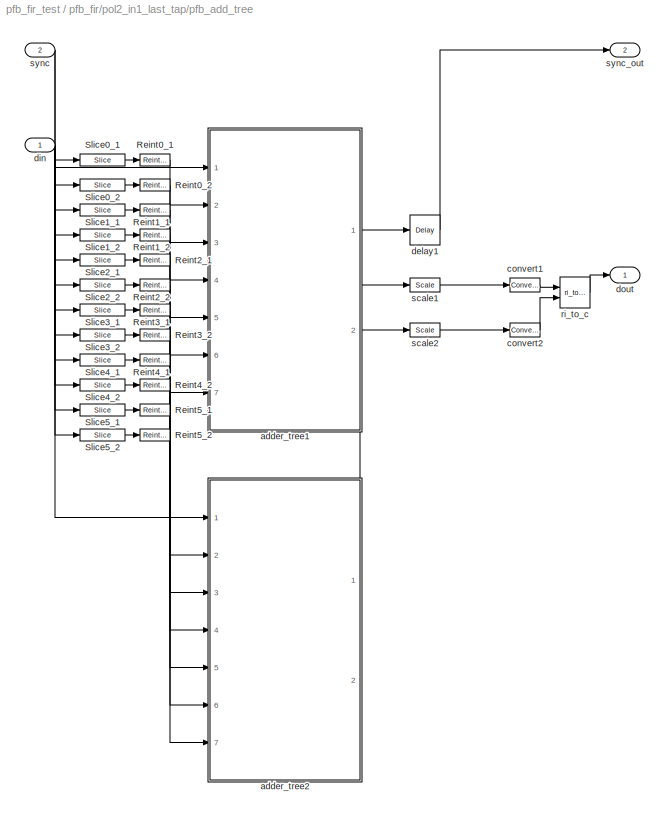
BLOCK [SubSystem] pfb_fir/pol2_in1_last_tap/pfb_add_tree
  AttributesFormatString = taps=6, add_latency=1
  FunctionWithSeparateData = off
  MaskCallbackString = |||||
  MaskEnableString = on,on,on,on,on,on
  MaskHideContents = off
  MaskIconFrame = on
  MaskIconOpaque = on
  MaskIconRotate = none
  MaskIconUnits = autoscale
  MaskInitialization = pfb_add_tree_init(gcb, ...\n    'TotalTaps', TotalTaps, ...\n    'BitWidthIn', BitWidthIn, ...\n    'BitWidthOut', BitWidthOut, ...\n    'CoeffBitWidth', CoeffBitWidth, ...\n    'add_latency', add_latency, ...\n    'quantization', quantization);
  MaskPromptString = Total Number of Taps:|Input Bitwidth:|Output Bitwidth:|Coeff Bitwidth:|Add Latency|Quantization Behavior
  MaskSelfModifiable = on
  MaskStyleString = edit,edit,edit,edit,edit,popup(Truncate|Round  (unbiased: +/- Inf)|Round  (unbiased: Even Values))
  MaskTabNameString = ,,,,,
  MaskToolTipString = on,on,on,on,on,on
  MaskTunableValueString = on,on,on,on,on,on
  MaskType = pfb_add_tree
  MaskValueString = 6|12|20|8|1|Round  (unbiased: +/- Inf)
  MaskVarAliasString = ,,,,,
  MaskVariables = TotalTaps=@1;BitWidthIn=@2;BitWidthOut=@3;CoeffBitWidth=@4;add_latency=@5;quantization=&6;
  MaskVisibilityString = on,on,on,on,on,on
  MinAlgLoopOccurrences = off
  Opaque = off
  Ports = [2, 2]
  PropExecContextOutsideSubsystem = off
  RTWSystemCode = Auto
  RequestExecContextInheritance = off
  UserData = DataTag22
  UserDataPersistent = on
BLOCK [Reference] pfb_fir/pol2_in1_last_tap/pfb_add_tree/Reint0_1  REF=xbsIndex_r4/Reinterpret
  Ports = [1, 1]
  SourceBlock = xbsIndex_r4/Reinterpret
  SourceType = Xilinx Type Reinterpreter Block
  arith_type = Signed  (2's comp)
  bin_pt = 18
  block_type = reinterpret
  block_version = 11.4
  force_arith_type = on
  force_bin_pt = on
  has_advanced_control = 0
  sg_icon_stat = 30,12,1,1,white,blue,0,6b04d0b0,right,
  sggui_pos = -1,-1,-1,-1
BLOCK [Reference] pfb_fir/pol2_in1_last_tap/pfb_add_tree/Reint0_2  REF=xbsIndex_r4/Reinterpret
  Ports = [1, 1]
  SourceBlock = xbsIndex_r4/Reinterpret
  SourceType = Xilinx Type Reinterpreter Block
  arith_type = Signed  (2's comp)
  bin_pt = 18
  block_type = reinterpret
  block_version = 11.4
  force_arith_type = on
  force_bin_pt = on
  has_advanced_control = 0
  sg_icon_stat = 30,12,1,1,white,blue,0,6b04d0b0,right,
  sggui_pos = -1,-1,-1,-1
BLOCK [Reference] pfb_fir/pol2_in1_last_tap/pfb_add_tree/Reint1_1  REF=xbsIndex_r4/Reinterpret
  Ports = [1, 1]
  SourceBlock = xbsIndex_r4/Reinterpret
  SourceType = Xilinx Type Reinterpreter Block
  arith_type = Signed  (2's comp)
  bin_pt = 18
  block_type = reinterpret
  block_version = 11.4
  force_arith_type = on
  force_bin_pt = on
  has_advanced_control = 0
  sg_icon_stat = 30,12,1,1,white,blue,0,6b04d0b0,right,
  sggui_pos = -1,-1,-1,-1
BLOCK [Reference] pfb_fir/pol2_in1_last_tap/pfb_add_tree/Reint1_2  REF=xbsIndex_r4/Reinterpret
  Ports = [1, 1]
  SourceBlock = xbsIndex_r4/Reinterpret
  SourceType = Xilinx Type Reinterpreter Block
  arith_type = Signed  (2's comp)
  bin_pt = 18
  block_type = reinterpret
  block_version = 11.4
  force_arith_type = on
  force_bin_pt = on
  has_advanced_control = 0
  sg_icon_stat = 30,12,1,1,white,blue,0,6b04d0b0,right,
  sggui_pos = -1,-1,-1,-1
BLOCK [Reference] pfb_fir/pol2_in1_last_tap/pfb_add_tree/Reint2_1  REF=xbsIndex_r4/Reinterpret
  Ports = [1, 1]
  SourceBlock = xbsIndex_r4/Reinterpret
  SourceType = Xilinx Type Reinterpreter Block
  arith_type = Signed  (2's comp)
  bin_pt = 18
  block_type = reinterpret
  block_version = 11.4
  force_arith_type = on
  force_bin_pt = on
  has_advanced_control = 0
  sg_icon_stat = 30,12,1,1,white,blue,0,6b04d0b0,right,
  sggui_pos = -1,-1,-1,-1
BLOCK [Reference] pfb_fir/pol2_in1_last_tap/pfb_add_tree/Reint2_2  REF=xbsIndex_r4/Reinterpret
  Ports = [1, 1]
  SourceBlock = xbsIndex_r4/Reinterpret
  SourceType = Xilinx Type Reinterpreter Block
  arith_type = Signed  (2's comp)
  bin_pt = 18
  block_type = reinterpret
  block_version = 11.4
  force_arith_type = on
  force_bin_pt = on
  has_advanced_control = 0
  sg_icon_stat = 30,12,1,1,white,blue,0,6b04d0b0,right,
  sggui_pos = -1,-1,-1,-1
BLOCK [Reference] pfb_fir/pol2_in1_last_tap/pfb_add_tree/Reint3_1  REF=xbsIndex_r4/Reinterpret
  Ports = [1, 1]
  SourceBlock = xbsIndex_r4/Reinterpret
  SourceType = Xilinx Type Reinterpreter Block
  arith_type = Signed  (2's comp)
  bin_pt = 18
  block_type = reinterpret
  block_version = 11.4
  force_arith_type = on
  force_bin_pt = on
  has_advanced_control = 0
  sg_icon_stat = 30,12,1,1,white,blue,0,6b04d0b0,right,
  sggui_pos = -1,-1,-1,-1
BLOCK [Reference] pfb_fir/pol2_in1_last_tap/pfb_add_tree/Reint3_2  REF=xbsIndex_r4/Reinterpret
  Ports = [1, 1]
  SourceBlock = xbsIndex_r4/Reinterpret
  SourceType = Xilinx Type Reinterpreter Block
  arith_type = Signed  (2's comp)
  bin_pt = 18
  block_type = reinterpret
  block_version = 11.4
  force_arith_type = on
  force_bin_pt = on
  has_advanced_control = 0
  sg_icon_stat = 30,12,1,1,white,blue,0,6b04d0b0,right,
  sggui_pos = -1,-1,-1,-1
BLOCK [Reference] pfb_fir/pol2_in1_last_tap/pfb_add_tree/Reint4_1  REF=xbsIndex_r4/Reinterpret
  Ports = [1, 1]
  SourceBlock = xbsIndex_r4/Reinterpret
  SourceType = Xilinx Type Reinterpreter Block
  arith_type = Signed  (2's comp)
  bin_pt = 18
  block_type = reinterpret
  block_version = 11.4
  force_arith_type = on
  force_bin_pt = on
  has_advanced_control = 0
  sg_icon_stat = 30,12,1,1,white,blue,0,6b04d0b0,right,
  sggui_pos = -1,-1,-1,-1
BLOCK [Reference] pfb_fir/pol2_in1_last_tap/pfb_add_tree/Reint4_2  REF=xbsIndex_r4/Reinterpret
  Ports = [1, 1]
  SourceBlock = xbsIndex_r4/Reinterpret
  SourceType = Xilinx Type Reinterpreter Block
  arith_type = Signed  (2's comp)
  bin_pt = 18
  block_type = reinterpret
  block_version = 11.4
  force_arith_type = on
  force_bin_pt = on
  has_advanced_control = 0
  sg_icon_stat = 30,12,1,1,white,blue,0,6b04d0b0,right,
  sggui_pos = -1,-1,-1,-1
BLOCK [Reference] pfb_fir/pol2_in1_last_tap/pfb_add_tree/Reint5_1  REF=xbsIndex_r4/Reinterpret
  Ports = [1, 1]
  SourceBlock = xbsIndex_r4/Reinterpret
  SourceType = Xilinx Type Reinterpreter Block
  arith_type = Signed  (2's comp)
  bin_pt = 18
  block_type = reinterpret
  block_version = 11.4
  force_arith_type = on
  force_bin_pt = on
  has_advanced_control = 0
  sg_icon_stat = 30,12,1,1,white,blue,0,6b04d0b0,right,
  sggui_pos = -1,-1,-1,-1
BLOCK [Reference] pfb_fir/pol2_in1_last_tap/pfb_add_tree/Reint5_2  REF=xbsIndex_r4/Reinterpret
  Ports = [1, 1]
  SourceBlock = xbsIndex_r4/Reinterpret
  SourceType = Xilinx Type Reinterpreter Block
  arith_type = Signed  (2's comp)
  bin_pt = 18
  block_type = reinterpret
  block_version = 11.4
  force_arith_type = on
  force_bin_pt = on
  has_advanced_control = 0
  sg_icon_stat = 30,12,1,1,white,blue,0,6b04d0b0,right,
  sggui_pos = -1,-1,-1,-1
BLOCK [Reference] pfb_fir/pol2_in1_last_tap/pfb_add_tree/Slice0_1  REF=xbsIndex_r4/Slice
  Ports = [1, 1]
  SourceBlock = xbsIndex_r4/Slice
  SourceType = Xilinx Bit Slice Extractor Block
  base0 = MSB of Input
  base1 = MSB of Input
  bit0 = 0
  bit1 = 0
  block_type = slice
  block_version = 11.4
  boolean_output = off
  dbl_ovrd = off
  has_advanced_control = 0
  mode = Upper Bit Location + Width
  nbits = 20
  sg_icon_stat = 45,12,1,1,white,blue,0,1fd851a7,right,
  sggui_pos = -1,-1,-1,-1
BLOCK [Reference] pfb_fir/pol2_in1_last_tap/pfb_add_tree/Slice0_2  REF=xbsIndex_r4/Slice
  Ports = [1, 1]
  SourceBlock = xbsIndex_r4/Slice
  SourceType = Xilinx Bit Slice Extractor Block
  base0 = MSB of Input
  base1 = MSB of Input
  bit0 = 0
  bit1 = -20
  block_type = slice
  block_version = 11.4
  boolean_output = off
  dbl_ovrd = off
  has_advanced_control = 0
  mode = Upper Bit Location + Width
  nbits = 20
  sg_icon_stat = 45,12,1,1,white,blue,0,1fd851a7,right,
  sggui_pos = -1,-1,-1,-1
BLOCK [Reference] pfb_fir/pol2_in1_last_tap/pfb_add_tree/Slice1_1  REF=xbsIndex_r4/Slice
  Ports = [1, 1]
  SourceBlock = xbsIndex_r4/Slice
  SourceType = Xilinx Bit Slice Extractor Block
  base0 = MSB of Input
  base1 = MSB of Input
  bit0 = 0
  bit1 = -40
  block_type = slice
  block_version = 11.4
  boolean_output = off
  dbl_ovrd = off
  has_advanced_control = 0
  mode = Upper Bit Location + Width
  nbits = 20
  sg_icon_stat = 45,12,1,1,white,blue,0,1fd851a7,right,
  sggui_pos = -1,-1,-1,-1
BLOCK [Reference] pfb_fir/pol2_in1_last_tap/pfb_add_tree/Slice1_2  REF=xbsIndex_r4/Slice
  Ports = [1, 1]
  SourceBlock = xbsIndex_r4/Slice
  SourceType = Xilinx Bit Slice Extractor Block
  base0 = MSB of Input
  base1 = MSB of Input
  bit0 = 0
  bit1 = -60
  block_type = slice
  block_version = 11.4
  boolean_output = off
  dbl_ovrd = off
  has_advanced_control = 0
  mode = Upper Bit Location + Width
  nbits = 20
  sg_icon_stat = 45,12,1,1,white,blue,0,1fd851a7,right,
  sggui_pos = -1,-1,-1,-1
BLOCK [Reference] pfb_fir/pol2_in1_last_tap/pfb_add_tree/Slice2_1  REF=xbsIndex_r4/Slice
  Ports = [1, 1]
  SourceBlock = xbsIndex_r4/Slice
  SourceType = Xilinx Bit Slice Extractor Block
  base0 = MSB of Input
  base1 = MSB of Input
  bit0 = 0
  bit1 = -80
  block_type = slice
  block_version = 11.4
  boolean_output = off
  dbl_ovrd = off
  has_advanced_control = 0
  mode = Upper Bit Location + Width
  nbits = 20
  sg_icon_stat = 45,12,1,1,white,blue,0,1fd851a7,right,
  sggui_pos = -1,-1,-1,-1
BLOCK [Reference] pfb_fir/pol2_in1_last_tap/pfb_add_tree/Slice2_2  REF=xbsIndex_r4/Slice
  Ports = [1, 1]
  SourceBlock = xbsIndex_r4/Slice
  SourceType = Xilinx Bit Slice Extractor Block
  base0 = MSB of Input
  base1 = MSB of Input
  bit0 = 0
  bit1 = -100
  block_type = slice
  block_version = 11.4
  boolean_output = off
  dbl_ovrd = off
  has_advanced_control = 0
  mode = Upper Bit Location + Width
  nbits = 20
  sg_icon_stat = 45,12,1,1,white,blue,0,1fd851a7,right,
  sggui_pos = -1,-1,-1,-1
BLOCK [Reference] pfb_fir/pol2_in1_last_tap/pfb_add_tree/Slice3_1  REF=xbsIndex_r4/Slice
  Ports = [1, 1]
  SourceBlock = xbsIndex_r4/Slice
  SourceType = Xilinx Bit Slice Extractor Block
  base0 = MSB of Input
  base1 = MSB of Input
  bit0 = 0
  bit1 = -120
  block_type = slice
  block_version = 11.4
  boolean_output = off
  dbl_ovrd = off
  has_advanced_control = 0
  mode = Upper Bit Location + Width
  nbits = 20
  sg_icon_stat = 45,12,1,1,white,blue,0,1fd851a7,right,
  sggui_pos = -1,-1,-1,-1
BLOCK [Reference] pfb_fir/pol2_in1_last_tap/pfb_add_tree/Slice3_2  REF=xbsIndex_r4/Slice
  Ports = [1, 1]
  SourceBlock = xbsIndex_r4/Slice
  SourceType = Xilinx Bit Slice Extractor Block
  base0 = MSB of Input
  base1 = MSB of Input
  bit0 = 0
  bit1 = -140
  block_type = slice
  block_version = 11.4
  boolean_output = off
  dbl_ovrd = off
  has_advanced_control = 0
  mode = Upper Bit Location + Width
  nbits = 20
  sg_icon_stat = 45,12,1,1,white,blue,0,1fd851a7,right,
  sggui_pos = -1,-1,-1,-1
BLOCK [Reference] pfb_fir/pol2_in1_last_tap/pfb_add_tree/Slice4_1  REF=xbsIndex_r4/Slice
  Ports = [1, 1]
  SourceBlock = xbsIndex_r4/Slice
  SourceType = Xilinx Bit Slice Extractor Block
  base0 = MSB of Input
  base1 = MSB of Input
  bit0 = 0
  bit1 = -160
  block_type = slice
  block_version = 11.4
  boolean_output = off
  dbl_ovrd = off
  has_advanced_control = 0
  mode = Upper Bit Location + Width
  nbits = 20
  sg_icon_stat = 45,12,1,1,white,blue,0,1fd851a7,right,
  sggui_pos = -1,-1,-1,-1
BLOCK [Reference] pfb_fir/pol2_in1_last_tap/pfb_add_tree/Slice4_2  REF=xbsIndex_r4/Slice
  Ports = [1, 1]
  SourceBlock = xbsIndex_r4/Slice
  SourceType = Xilinx Bit Slice Extractor Block
  base0 = MSB of Input
  base1 = MSB of Input
  bit0 = 0
  bit1 = -180
  block_type = slice
  block_version = 11.4
  boolean_output = off
  dbl_ovrd = off
  has_advanced_control = 0
  mode = Upper Bit Location + Width
  nbits = 20
  sg_icon_stat = 45,12,1,1,white,blue,0,1fd851a7,right,
  sggui_pos = -1,-1,-1,-1
BLOCK [Reference] pfb_fir/pol2_in1_last_tap/pfb_add_tree/Slice5_1  REF=xbsIndex_r4/Slice
  Ports = [1, 1]
  SourceBlock = xbsIndex_r4/Slice
  SourceType = Xilinx Bit Slice Extractor Block
  base0 = MSB of Input
  base1 = MSB of Input
  bit0 = 0
  bit1 = -200
  block_type = slice
  block_version = 11.4
  boolean_output = off
  dbl_ovrd = off
  has_advanced_control = 0
  mode = Upper Bit Location + Width
  nbits = 20
  sg_icon_stat = 45,12,1,1,white,blue,0,1fd851a7,right,
  sggui_pos = -1,-1,-1,-1
BLOCK [Reference] pfb_fir/pol2_in1_last_tap/pfb_add_tree/Slice5_2  REF=xbsIndex_r4/Slice
  Ports = [1, 1]
  SourceBlock = xbsIndex_r4/Slice
  SourceType = Xilinx Bit Slice Extractor Block
  base0 = MSB of Input
  base1 = MSB of Input
  bit0 = 0
  bit1 = -220
  block_type = slice
  block_version = 11.4
  boolean_output = off
  dbl_ovrd = off
  has_advanced_control = 0
  mode = Upper Bit Location + Width
  nbits = 20
  sg_icon_stat = 45,12,1,1,white,blue,0,1fd851a7,right,
  sggui_pos = -1,-1,-1,-1
BLOCK [SubSystem] pfb_fir/pol2_in1_last_tap/pfb_add_tree/adder_tree1
  AncestorBlock = casper_library_misc/adder_tree
  AttributesFormatString = latency 3
  FunctionWithSeparateData = off
  MaskCallbackString = |||
  MaskEnableString = on,on,on,on
  MaskHelp = eval('xlWeb(''http://casper.berkeley.edu/wiki/Adder_tree'')')
  MaskHideContents = off
  MaskIconFrame = on
  MaskIconOpaque = on
  MaskIconRotate = none
  MaskIconUnits = autoscale
  MaskInitialization = adder_tree_init(gcb, ...\n    'n_inputs', n_inputs, ...\n    'latency', latency, ...\n    'adder_imp', adder_imp, ...\n    'first_stage_hdl', first_stage_hdl);
  MaskPromptString = Number of Inputs|Add Latency|Adder implementation|Use behavioural HDL for first stage of adders
  MaskSelfModifiable = on
  MaskStyleString = edit,edit,popup(Behavioral|Fabric|DSP48),checkbox
  MaskTabNameString = ,,,
  MaskToolTipString = on,on,on,on
  MaskTunableValueString = on,on,on,on
  MaskType = adder_tree
  MaskValueString = 6|1|Fabric|off
  MaskVarAliasString = ,,,
  MaskVariables = n_inputs=@1;latency=@2;adder_imp=&3;first_stage_hdl=&4;
  MaskVisibilityString = on,on,on,on
  MinAlgLoopOccurrences = off
  Opaque = off
  Ports = [7, 2]
  PropExecContextOutsideSubsystem = off
  RTWSystemCode = Auto
  RequestExecContextInheritance = off
  UserData = DataTag23
  UserDataPersistent = on
BLOCK [Reference] pfb_fir/pol2_in1_last_tap/pfb_add_tree/adder_tree1/addr1  REF=xbsIndex_r4/AddSub
  Ports = [2, 1]
  SourceBlock = xbsIndex_r4/AddSub
  SourceType = Xilinx Adder/Subtracter Block
  arith_type = Signed  (2's comp)
  bin_pt = 18
  block_type = addsub
  block_version = 11.4
  dbl_ovrd = off
  en = off
  has_advanced_control = 0
  hw_selection = Fabric
  latency = 1
  mode = Addition
  n_bits = 20
  overflow = Wrap
  pipelined = on
  precision = User Defined
  quantization = Truncate
  sg_icon_stat = 40,60,2,1,white,blue,0,8ff03b5e,right,
  sggui_pos = 23,125,419,344
  use_behavioral_HDL = off
  use_carryin = off
  use_carryout = off
  use_rpm = on
  xl_area = [0,0,0,0,0,0,0]
  xl_use_area = off
BLOCK [Reference] pfb_fir/pol2_in1_last_tap/pfb_add_tree/adder_tree1/addr2  REF=xbsIndex_r4/AddSub
  Ports = [2, 1]
  SourceBlock = xbsIndex_r4/AddSub
  SourceType = Xilinx Adder/Subtracter Block
  arith_type = Signed  (2's comp)
  bin_pt = 18
  block_type = addsub
  block_version = 11.4
  dbl_ovrd = off
  en = off
  has_advanced_control = 0
  hw_selection = Fabric
  latency = 1
  mode = Addition
  n_bits = 20
  overflow = Wrap
  pipelined = on
  precision = User Defined
  quantization = Truncate
  sg_icon_stat = 40,60,2,1,white,blue,0,8ff03b5e,right,
  sggui_pos = -1,-1,-1,-1
  use_behavioral_HDL = off
  use_carryin = off
  use_carryout = off
  use_rpm = on
  xl_area = [0,0,0,0,0,0,0]
  xl_use_area = off
BLOCK [Reference] pfb_fir/pol2_in1_last_tap/pfb_add_tree/adder_tree1/addr3  REF=xbsIndex_r4/AddSub
  Ports = [2, 1]
  SourceBlock = xbsIndex_r4/AddSub
  SourceType = Xilinx Adder/Subtracter Block
  arith_type = Signed  (2's comp)
  bin_pt = 18
  block_type = addsub
  block_version = 11.4
  dbl_ovrd = off
  en = off
  has_advanced_control = 0
  hw_selection = Fabric
  latency = 1
  mode = Addition
  n_bits = 20
  overflow = Wrap
  pipelined = on
  precision = User Defined
  quantization = Truncate
  sg_icon_stat = 40,60,2,1,white,blue,0,8ff03b5e,right,
  sggui_pos = 23,125,419,344
  use_behavioral_HDL = off
  use_carryin = off
  use_carryout = off
  use_rpm = on
  xl_area = [0,0,0,0,0,0,0]
  xl_use_area = off
BLOCK [Reference] pfb_fir/pol2_in1_last_tap/pfb_add_tree/adder_tree1/addr4  REF=xbsIndex_r4/AddSub
  Ports = [2, 1]
  SourceBlock = xbsIndex_r4/AddSub
  SourceType = Xilinx Adder/Subtracter Block
  arith_type = Signed  (2's comp)
  bin_pt = 18
  block_type = addsub
  block_version = 11.4
  dbl_ovrd = off
  en = off
  has_advanced_control = 0
  hw_selection = Fabric
  latency = 1
  mode = Addition
  n_bits = 20
  overflow = Wrap
  pipelined = on
  precision = User Defined
  quantization = Truncate
  sg_icon_stat = 40,60,2,1,white,blue,0,8ff03b5e,right,
  sggui_pos = -1,-1,-1,-1
  use_behavioral_HDL = off
  use_carryin = off
  use_carryout = off
  use_rpm = on
  xl_area = [0,0,0,0,0,0,0]
  xl_use_area = off
BLOCK [Reference] pfb_fir/pol2_in1_last_tap/pfb_add_tree/adder_tree1/addr6  REF=xbsIndex_r4/AddSub
  Ports = [2, 1]
  SourceBlock = xbsIndex_r4/AddSub
  SourceType = Xilinx Adder/Subtracter Block
  arith_type = Signed  (2's comp)
  bin_pt = 18
  block_type = addsub
  block_version = 11.4
  dbl_ovrd = off
  en = off
  has_advanced_control = 0
  hw_selection = Fabric
  latency = 1
  mode = Addition
  n_bits = 20
  overflow = Wrap
  pipelined = on
  precision = User Defined
  quantization = Truncate
  sg_icon_stat = 40,60,2,1,white,blue,0,8ff03b5e,right,
  sggui_pos = -1,-1,-1,-1
  use_behavioral_HDL = off
  use_carryin = off
  use_carryout = off
  use_rpm = on
  xl_area = [0,0,0,0,0,0,0]
  xl_use_area = off
BLOCK [Inport] pfb_fir/pol2_in1_last_tap/pfb_add_tree/adder_tree1/din1
  IconDisplay = Port number
  Port = 2
BLOCK [Inport] pfb_fir/pol2_in1_last_tap/pfb_add_tree/adder_tree1/din2
  IconDisplay = Port number
  Port = 3
BLOCK [Inport] pfb_fir/pol2_in1_last_tap/pfb_add_tree/adder_tree1/din3
  IconDisplay = Port number
  Port = 4
BLOCK [Inport] pfb_fir/pol2_in1_last_tap/pfb_add_tree/adder_tree1/din4
  IconDisplay = Port number
  Port = 5
BLOCK [Inport] pfb_fir/pol2_in1_last_tap/pfb_add_tree/adder_tree1/din5
  IconDisplay = Port number
  Port = 6
BLOCK [Inport] pfb_fir/pol2_in1_last_tap/pfb_add_tree/adder_tree1/din6
  IconDisplay = Port number
  Port = 7
BLOCK [Reference] pfb_fir/pol2_in1_last_tap/pfb_add_tree/adder_tree1/dly5  REF=xbsIndex_r4/Delay
  Ports = [1, 1]
  SourceBlock = xbsIndex_r4/Delay
  SourceType = Xilinx Delay Block
  block_type = delay
  block_version = 11.4
  dbl_ovrd = off
  en = off
  has_advanced_control = 0
  infoedit = Hardware notes: A delay line is a chain, each link of which is an SRL16 followed by a flip-flop.
  latency = 1
  reg_retiming = on
  sg_icon_stat = 40,60,1,1,white,blue,0,07b98262,right,
  sggui_pos = -1,-1,-1,-1
  xl_area = [0,0,0,0,0,0,0]
  xl_use_area = off
BLOCK [Outport] pfb_fir/pol2_in1_last_tap/pfb_add_tree/adder_tree1/dout
  IconDisplay = Port number
  Port = 2
BLOCK [Inport] pfb_fir/pol2_in1_last_tap/pfb_add_tree/adder_tree1/sync
  IconDisplay = Port number
BLOCK [Reference] pfb_fir/pol2_in1_last_tap/pfb_add_tree/adder_tree1/sync_delay  REF=xbsIndex_r4/Delay
  Ports = [1, 1]
  SourceBlock = xbsIndex_r4/Delay
  SourceType = Xilinx Delay Block
  block_type = delay
  block_version = 11.4
  dbl_ovrd = off
  en = off
  has_advanced_control = 0
  infoedit = Hardware notes: A delay line is a chain, each link of which is an SRL16 followed by a flip-flop.
  latency = 3
  reg_retiming = on
  sg_icon_stat = 30,30,1,1,white,blue,0,83e6bb61,right,
  sggui_pos = 21,71,419,315
  xl_area = [0,0,0,0,0,0,0]
  xl_use_area = off
BLOCK [Outport] pfb_fir/pol2_in1_last_tap/pfb_add_tree/adder_tree1/sync_out
  IconDisplay = Port number
BLOCK [SubSystem] pfb_fir/pol2_in1_last_tap/pfb_add_tree/adder_tree2
  AncestorBlock = casper_library_misc/adder_tree
  AttributesFormatString = latency 3
  FunctionWithSeparateData = off
  MaskCallbackString = |||
  MaskEnableString = on,on,on,on
  MaskHelp = eval('xlWeb(''http://casper.berkeley.edu/wiki/Adder_tree'')')
  MaskHideContents = off
  MaskIconFrame = on
  MaskIconOpaque = on
  MaskIconRotate = none
  MaskIconUnits = autoscale
  MaskInitialization = adder_tree_init(gcb, ...\n    'n_inputs', n_inputs, ...\n    'latency', latency, ...\n    'adder_imp', adder_imp, ...\n    'first_stage_hdl', first_stage_hdl);
  MaskPromptString = Number of Inputs|Add Latency|Adder implementation|Use behavioural HDL for first stage of adders
  MaskSelfModifiable = on
  MaskStyleString = edit,edit,popup(Behavioral|Fabric|DSP48),checkbox
  MaskTabNameString = ,,,
  MaskToolTipString = on,on,on,on
  MaskTunableValueString = on,on,on,on
  MaskType = adder_tree
  MaskValueString = 6|1|Fabric|off
  MaskVarAliasString = ,,,
  MaskVariables = n_inputs=@1;latency=@2;adder_imp=&3;first_stage_hdl=&4;
  MaskVisibilityString = on,on,on,on
  MinAlgLoopOccurrences = off
  Opaque = off
  Ports = [7, 2]
  PropExecContextOutsideSubsystem = off
  RTWSystemCode = Auto
  RequestExecContextInheritance = off
  UserData = DataTag24
  UserDataPersistent = on
BLOCK [Reference] pfb_fir/pol2_in1_last_tap/pfb_add_tree/adder_tree2/addr1  REF=xbsIndex_r4/AddSub
  Ports = [2, 1]
  SourceBlock = xbsIndex_r4/AddSub
  SourceType = Xilinx Adder/Subtracter Block
  arith_type = Signed  (2's comp)
  bin_pt = 18
  block_type = addsub
  block_version = 11.4
  dbl_ovrd = off
  en = off
  has_advanced_control = 0
  hw_selection = Fabric
  latency = 1
  mode = Addition
  n_bits = 20
  overflow = Wrap
  pipelined = on
  precision = User Defined
  quantization = Truncate
  sg_icon_stat = 40,60,2,1,white,blue,0,8ff03b5e,right,
  sggui_pos = 23,125,419,344
  use_behavioral_HDL = off
  use_carryin = off
  use_carryout = off
  use_rpm = on
  xl_area = [0,0,0,0,0,0,0]
  xl_use_area = off
BLOCK [Reference] pfb_fir/pol2_in1_last_tap/pfb_add_tree/adder_tree2/addr2  REF=xbsIndex_r4/AddSub
  Ports = [2, 1]
  SourceBlock = xbsIndex_r4/AddSub
  SourceType = Xilinx Adder/Subtracter Block
  arith_type = Signed  (2's comp)
  bin_pt = 18
  block_type = addsub
  block_version = 11.4
  dbl_ovrd = off
  en = off
  has_advanced_control = 0
  hw_selection = Fabric
  latency = 1
  mode = Addition
  n_bits = 20
  overflow = Wrap
  pipelined = on
  precision = User Defined
  quantization = Truncate
  sg_icon_stat = 40,60,2,1,white,blue,0,8ff03b5e,right,
  sggui_pos = -1,-1,-1,-1
  use_behavioral_HDL = off
  use_carryin = off
  use_carryout = off
  use_rpm = on
  xl_area = [0,0,0,0,0,0,0]
  xl_use_area = off
BLOCK [Reference] pfb_fir/pol2_in1_last_tap/pfb_add_tree/adder_tree2/addr3  REF=xbsIndex_r4/AddSub
  Ports = [2, 1]
  SourceBlock = xbsIndex_r4/AddSub
  SourceType = Xilinx Adder/Subtracter Block
  arith_type = Signed  (2's comp)
  bin_pt = 18
  block_type = addsub
  block_version = 11.4
  dbl_ovrd = off
  en = off
  has_advanced_control = 0
  hw_selection = Fabric
  latency = 1
  mode = Addition
  n_bits = 20
  overflow = Wrap
  pipelined = on
  precision = User Defined
  quantization = Truncate
  sg_icon_stat = 40,60,2,1,white,blue,0,8ff03b5e,right,
  sggui_pos = 23,125,419,344
  use_behavioral_HDL = off
  use_carryin = off
  use_carryout = off
  use_rpm = on
  xl_area = [0,0,0,0,0,0,0]
  xl_use_area = off
BLOCK [Reference] pfb_fir/pol2_in1_last_tap/pfb_add_tree/adder_tree2/addr4  REF=xbsIndex_r4/AddSub
  Ports = [2, 1]
  SourceBlock = xbsIndex_r4/AddSub
  SourceType = Xilinx Adder/Subtracter Block
  arith_type = Signed  (2's comp)
  bin_pt = 18
  block_type = addsub
  block_version = 11.4
  dbl_ovrd = off
  en = off
  has_advanced_control = 0
  hw_selection = Fabric
  latency = 1
  mode = Addition
  n_bits = 20
  overflow = Wrap
  pipelined = on
  precision = User Defined
  quantization = Truncate
  sg_icon_stat = 40,60,2,1,white,blue,0,8ff03b5e,right,
  sggui_pos = -1,-1,-1,-1
  use_behavioral_HDL = off
  use_carryin = off
  use_carryout = off
  use_rpm = on
  xl_area = [0,0,0,0,0,0,0]
  xl_use_area = off
BLOCK [Reference] pfb_fir/pol2_in1_last_tap/pfb_add_tree/adder_tree2/addr6  REF=xbsIndex_r4/AddSub
  Ports = [2, 1]
  SourceBlock = xbsIndex_r4/AddSub
  SourceType = Xilinx Adder/Subtracter Block
  arith_type = Signed  (2's comp)
  bin_pt = 18
  block_type = addsub
  block_version = 11.4
  dbl_ovrd = off
  en = off
  has_advanced_control = 0
  hw_selection = Fabric
  latency = 1
  mode = Addition
  n_bits = 20
  overflow = Wrap
  pipelined = on
  precision = User Defined
  quantization = Truncate
  sg_icon_stat = 40,60,2,1,white,blue,0,8ff03b5e,right,
  sggui_pos = -1,-1,-1,-1
  use_behavioral_HDL = off
  use_carryin = off
  use_carryout = off
  use_rpm = on
  xl_area = [0,0,0,0,0,0,0]
  xl_use_area = off
BLOCK [Inport] pfb_fir/pol2_in1_last_tap/pfb_add_tree/adder_tree2/din1
  IconDisplay = Port number
  Port = 2
BLOCK [Inport] pfb_fir/pol2_in1_last_tap/pfb_add_tree/adder_tree2/din2
  IconDisplay = Port number
  Port = 3
BLOCK [Inport] pfb_fir/pol2_in1_last_tap/pfb_add_tree/adder_tree2/din3
  IconDisplay = Port number
  Port = 4
BLOCK [Inport] pfb_fir/pol2_in1_last_tap/pfb_add_tree/adder_tree2/din4
  IconDisplay = Port number
  Port = 5
BLOCK [Inport] pfb_fir/pol2_in1_last_tap/pfb_add_tree/adder_tree2/din5
  IconDisplay = Port number
  Port = 6
BLOCK [Inport] pfb_fir/pol2_in1_last_tap/pfb_add_tree/adder_tree2/din6
  IconDisplay = Port number
  Port = 7
BLOCK [Reference] pfb_fir/pol2_in1_last_tap/pfb_add_tree/adder_tree2/dly5  REF=xbsIndex_r4/Delay
  Ports = [1, 1]
  SourceBlock = xbsIndex_r4/Delay
  SourceType = Xilinx Delay Block
  block_type = delay
  block_version = 11.4
  dbl_ovrd = off
  en = off
  has_advanced_control = 0
  infoedit = Hardware notes: A delay line is a chain, each link of which is an SRL16 followed by a flip-flop.
  latency = 1
  reg_retiming = on
  sg_icon_stat = 40,60,1,1,white,blue,0,07b98262,right,
  sggui_pos = -1,-1,-1,-1
  xl_area = [0,0,0,0,0,0,0]
  xl_use_area = off
BLOCK [Outport] pfb_fir/pol2_in1_last_tap/pfb_add_tree/adder_tree2/dout
  IconDisplay = Port number
  Port = 2
BLOCK [Inport] pfb_fir/pol2_in1_last_tap/pfb_add_tree/adder_tree2/sync
  IconDisplay = Port number
BLOCK [Reference] pfb_fir/pol2_in1_last_tap/pfb_add_tree/adder_tree2/sync_delay  REF=xbsIndex_r4/Delay
  Ports = [1, 1]
  SourceBlock = xbsIndex_r4/Delay
  SourceType = Xilinx Delay Block
  block_type = delay
  block_version = 11.4
  dbl_ovrd = off
  en = off
  has_advanced_control = 0
  infoedit = Hardware notes: A delay line is a chain, each link of which is an SRL16 followed by a flip-flop.
  latency = 3
  reg_retiming = on
  sg_icon_stat = 30,30,1,1,white,blue,0,83e6bb61,right,
  sggui_pos = 21,71,419,315
  xl_area = [0,0,0,0,0,0,0]
  xl_use_area = off
BLOCK [Outport] pfb_fir/pol2_in1_last_tap/pfb_add_tree/adder_tree2/sync_out
  IconDisplay = Port number
BLOCK [Reference] pfb_fir/pol2_in1_last_tap/pfb_add_tree/convert1  REF=xbsIndex_r4/Convert
  Ports = [1, 1]
  SourceBlock = xbsIndex_r4/Convert
  SourceType = Xilinx Type Converter Block
  arith_type = Signed  (2's comp)
  bin_pt = 19
  block_type = convert
  block_version = 11.4
  dbl_ovrd = off
  has_advanced_control = 0
  infoedit = Hardware notes: rounding and saturating require hardware resources; truncating and wrapping do not.
  latency = 1
  n_bits = 20
  overflow = Wrap
  pipeline = on
  quantization = Truncate
  sg_icon_stat = 30,14,1,1,white,blue,0,d6ffdbcd,right,
  sggui_pos = -1,-1,-1,-1
  xl_area = [0,0,0,0,0,0,0]
  xl_use_area = off
BLOCK [Reference] pfb_fir/pol2_in1_last_tap/pfb_add_tree/convert2  REF=xbsIndex_r4/Convert
  Ports = [1, 1]
  SourceBlock = xbsIndex_r4/Convert
  SourceType = Xilinx Type Converter Block
  arith_type = Signed  (2's comp)
  bin_pt = 19
  block_type = convert
  block_version = 11.4
  dbl_ovrd = off
  has_advanced_control = 0
  infoedit = Hardware notes: rounding and saturating require hardware resources; truncating and wrapping do not.
  latency = 1
  n_bits = 20
  overflow = Wrap
  pipeline = off
  quantization = Truncate
  sg_icon_stat = 30,14,1,1,white,blue,0,d6ffdbcd,right,
  sggui_pos = -1,-1,-1,-1
  xl_area = [0,0,0,0,0,0,0]
  xl_use_area = off
BLOCK [Reference] pfb_fir/pol2_in1_last_tap/pfb_add_tree/delay1  REF=xbsIndex_r4/Delay
  Ports = [1, 1]
  SourceBlock = xbsIndex_r4/Delay
  SourceType = Xilinx Delay Block
  block_type = delay
  block_version = 11.4
  dbl_ovrd = off
  en = off
  has_advanced_control = 0
  infoedit = Hardware notes: A delay line is a chain, each link of which is an SRL16 followed by a flip-flop.
  latency = 1
  reg_retiming = off
  sg_icon_stat = 30,30,1,1,white,blue,0,07b98262,right,
  sggui_pos = -1,-1,-1,-1
  xl_area = [0,0,0,0,0,0,0]
  xl_use_area = off
BLOCK [Inport] pfb_fir/pol2_in1_last_tap/pfb_add_tree/din
  IconDisplay = Port number
BLOCK [Outport] pfb_fir/pol2_in1_last_tap/pfb_add_tree/dout
  IconDisplay = Port number
BLOCK [Reference] pfb_fir/pol2_in1_last_tap/pfb_add_tree/ri_to_c  REF=casper_library_misc/ri_to_c  (lib defined in mdl_357510c33b49, mdl_57b5f564ae26, +4 more)
  FunctionWithSeparateData = off
  Ports = [2, 1]
  RTWMemSecDataConstants = Inherit from model
  RTWMemSecDataInternal = Inherit from model
  RTWMemSecDataParameters = Inherit from model
  RTWMemSecFuncExecute = Inherit from model
  RTWMemSecFuncInitTerm = Inherit from model
  ShowPortLabels = FromPortIcon
  SourceBlock = casper_library_misc/ri_to_c
  SourceType = ri_to_c
  SystemSampleTime = -1
  UserData = DataTag25
  UserDataPersistent = on
BLOCK [Reference] pfb_fir/pol2_in1_last_tap/pfb_add_tree/scale1  REF=xbsIndex_r4/Scale
  Ports = [1, 1]
  SourceBlock = xbsIndex_r4/Scale
  SourceType = Xilinx Input Scaler Block
  block_type = scale
  block_version = 11.4
  dbl_ovrd = off
  has_advanced_control = 0
  infoedit = Scales input by a power of two by adjusting the binary point position.<br><br>Hardware notes: In hardware this block costs nothing.
  scale_factor = -1
  sg_icon_stat = 30,14,1,1,white,blue,0,315b7d78,right,
  sggui_pos = -1,-1,-1,-1
BLOCK [Reference] pfb_fir/pol2_in1_last_tap/pfb_add_tree/scale2  REF=xbsIndex_r4/Scale
  Ports = [1, 1]
  SourceBlock = xbsIndex_r4/Scale
  SourceType = Xilinx Input Scaler Block
  block_type = scale
  block_version = 11.4
  dbl_ovrd = off
  has_advanced_control = 0
  infoedit = Scales input by a power of two by adjusting the binary point position.<br><br>Hardware notes: In hardware this block costs nothing.
  scale_factor = -1
  sg_icon_stat = 30,14,1,1,white,blue,0,315b7d78,right,
  sggui_pos = -1,-1,-1,-1
BLOCK [Inport] pfb_fir/pol2_in1_last_tap/pfb_add_tree/sync
  IconDisplay = Port number
  Port = 2
BLOCK [Outport] pfb_fir/pol2_in1_last_tap/pfb_add_tree/sync_out
  IconDisplay = Port number
  Port = 2
BLOCK [SubSystem] pfb_fir/pol2_in1_last_tap/ri_to_c
  FunctionWithSeparateData = off
  MaskHideContents = off
  MinAlgLoopOccurrences = off
  Opaque = off
  Ports = [2, 1]
  PropExecContextOutsideSubsystem = off
  RTWSystemCode = Auto
  RequestExecContextInheritance = off
BLOCK [Reference] pfb_fir/pol2_in1_last_tap/ri_to_c/Concat  REF=xbsIndex_r4/Concat
  Ports = [2, 1]
  SourceBlock = xbsIndex_r4/Concat
  SourceType = Xilinx Bus Concatenator Block
  block_type = concat
  block_version = 9.1.01
  dbl_ovrd = off
  has_advanced_control = 0
  infoedit = Concatenates two or more inputs.  Output will be cast to an unsigned value with the binary point at zero.
  num_inputs = 2
  sg_icon_stat = 50,55,2,1,white,blue,0,97b7e8d2,right,
  sggui_pos = -1,-1,-1,-1
BLOCK [Reference] pfb_fir/pol2_in1_last_tap/ri_to_c/Reinterpret  REF=xbsIndex_r4/Reinterpret
  Ports = [1, 1]
  SourceBlock = xbsIndex_r4/Reinterpret
  SourceType = Xilinx Type Reinterpreter Block
  arith_type = Unsigned
  bin_pt = 0
  block_type = reinterpret
  block_version = 9.1.01
  force_arith_type = on
  force_bin_pt = on
  has_advanced_control = 0
  sg_icon_stat = 40,32,1,1,white,blue,0,6b04d0b0,right,
  sggui_pos = -1,-1,-1,-1
BLOCK [Reference] pfb_fir/pol2_in1_last_tap/ri_to_c/Reinterpret1  REF=xbsIndex_r4/Reinterpret
  Ports = [1, 1]
  SourceBlock = xbsIndex_r4/Reinterpret
  SourceType = Xilinx Type Reinterpreter Block
  arith_type = Unsigned
  bin_pt = 0
  block_type = reinterpret
  block_version = 9.1.01
  force_arith_type = on
  force_bin_pt = on
  has_advanced_control = 0
  sg_icon_stat = 40,32,1,1,white,blue,0,6b04d0b0,right,
  sggui_pos = -1,-1,-1,-1
BLOCK [Outport] pfb_fir/pol2_in1_last_tap/ri_to_c/c
  IconDisplay = Port number
  OutDataType = sfix(16)
  OutScaling = 2^0
BLOCK [Inport] pfb_fir/pol2_in1_last_tap/ri_to_c/im
  IconDisplay = Port number
  OutDataType = sfix(16)
  OutScaling = 2^0
  Port = 2
BLOCK [Inport] pfb_fir/pol2_in1_last_tap/ri_to_c/re
  IconDisplay = Port number
  OutDataType = sfix(16)
  OutScaling = 2^0
BLOCK [Inport] pfb_fir/pol2_in1_last_tap/sync
  IconDisplay = Port number
  OutDataType = sfix(16)
  OutScaling = 2^0
  Port = 2
BLOCK [Outport] pfb_fir/pol2_in1_last_tap/sync_out
  IconDisplay = Port number
  OutDataType = sfix(16)
  OutScaling = 2^0
  Port = 2
BLOCK [Inport] pfb_fir/pol2_in1_last_tap/taps
  IconDisplay = Port number
  OutDataType = sfix(16)
  OutScaling = 2^0
  Port = 4
BLOCK [SubSystem] pfb_fir/pol2_in1_tap2
  AncestorBlock = casper_library_pfbs/tap
  FunctionWithSeparateData = off
  MaskEnableString = on,on,on,on,on,on,on,on
  MaskHideContents = off
  MaskIconFrame = on
  MaskIconOpaque = on
  MaskIconRotate = none
  MaskIconUnits = autoscale
  MaskPromptString = Multiplier Latency|Coefficient Bit Width In|Coefficient Fractional Bits|Data/Sync Delay|Data Bit Width In|BRAM Latency|Use behavioral HDL for multlipliers|Use embedded multipliers
  MaskStyleString = edit,edit,edit,edit,edit,edit,checkbox,checkbox
  MaskTabNameString = ,,,,,,,
  MaskToolTipString = on,on,on,on,on,on,on,on
  MaskTunableValueString = on,on,on,on,on,on,on,on
  MaskType = tap
  MaskValueString = 2|8|7|64|12|1|on|off
  MaskVarAliasString = ,,,,,,,
  MaskVariables = mult_latency=@1;coeff_width=@2;coeff_frac_width=@3;delay=@4;data_width=@5;bram_latency=@6;use_hdl=&7;use_embedded=&8;
  MaskVisibilityString = on,on,on,on,on,on,on,off
  MinAlgLoopOccurrences = off
  Opaque = off
  Ports = [4, 4]
  PropExecContextOutsideSubsystem = off
  RTWSystemCode = Auto
  RequestExecContextInheritance = off
BLOCK [Reference] pfb_fir/pol2_in1_tap2/Concat  REF=xbsIndex_r4/Concat
  Ports = [2, 1]
  SourceBlock = xbsIndex_r4/Concat
  SourceType = Xilinx Bus Concatenator Block
  block_type = concat
  block_version = 9.1.01
  dbl_ovrd = off
  has_advanced_control = 0
  infoedit = Concatenates two or more inputs.  Output will be cast to an unsigned value with the binary point at zero.
  num_inputs = 2
  sg_icon_stat = 50,55,2,1,white,blue,0,97b7e8d2,right,
  sggui_pos = -1,-1,-1,-1
BLOCK [Reference] pfb_fir/pol2_in1_tap2/Mult  REF=xbsIndex_r4/Mult
  Ports = [2, 1]
  SourceBlock = xbsIndex_r4/Mult
  SourceType = Xilinx Multiplier Block
  arith_type = Signed  (2's comp)
  bin_pt = 2
  block_type = mult
  block_version = 9.1.01
  dbl_ovrd = off
  en = off
  has_advanced_control = 0
  infoedit = Hardware notes: To use the internal pipeline stage of the dedicated multiplier you must select 'Pipeline for maximum performance'.
  latency = mult_latency
  n_bits = 8
  opt = Speed
  optimum_pipeline = off
  overflow = Wrap
  pipeline = on
  placement_style = Rectangular shape
  precision = Full
  quantization = Truncate
  sg_icon_stat = 50,51,2,1,white,blue,0,9a78ff34,right,
  sggui_pos = 20,20,457,487
  use_behavioral_HDL = on
  use_embedded = off
  use_rpm = on
  xl_area = [0, 0, 0, 0, 0, 0, 0]
  xl_use_area = off
BLOCK [Reference] pfb_fir/pol2_in1_tap2/Mult1  REF=xbsIndex_r4/Mult
  Ports = [2, 1]
  SourceBlock = xbsIndex_r4/Mult
  SourceType = Xilinx Multiplier Block
  arith_type = Signed  (2's comp)
  bin_pt = 2
  block_type = mult
  block_version = 9.1.01
  dbl_ovrd = off
  en = off
  has_advanced_control = 0
  infoedit = Hardware notes: To use the internal pipeline stage of the dedicated multiplier you must select 'Pipeline for maximum performance'.
  latency = mult_latency
  n_bits = 8
  opt = Speed
  optimum_pipeline = off
  overflow = Wrap
  pipeline = on
  placement_style = Rectangular shape
  precision = Full
  quantization = Truncate
  sg_icon_stat = 50,51,2,1,white,blue,0,9a78ff34,right,
  sggui_pos = 20,20,457,487
  use_behavioral_HDL = on
  use_embedded = off
  use_rpm = on
  xl_area = [0, 0, 0, 0, 0, 0, 0]
  xl_use_area = off
BLOCK [Reference] pfb_fir/pol2_in1_tap2/Reinterpret  REF=xbsIndex_r4/Reinterpret
  Ports = [1, 1]
  SourceBlock = xbsIndex_r4/Reinterpret
  SourceType = Xilinx Type Reinterpreter Block
  arith_type = Signed  (2's comp)
  bin_pt = coeff_frac_width
  block_type = reinterpret
  block_version = 9.1.01
  force_arith_type = on
  force_bin_pt = on
  has_advanced_control = 0
  sg_icon_stat = 40,32,1,1,white,blue,0,6b04d0b0,right,
  sggui_pos = 20,20,336,370
BLOCK [Reference] pfb_fir/pol2_in1_tap2/Slice  REF=xbsIndex_r4/Slice
  Ports = [1, 1]
  SourceBlock = xbsIndex_r4/Slice
  SourceType = Xilinx Bit Slice Extractor Block
  base0 = LSB of Input
  base1 = MSB of Input
  bit0 = 0
  bit1 = 0
  block_type = slice
  block_version = 9.1.01
  boolean_output = off
  dbl_ovrd = off
  has_advanced_control = 0
  mode = Lower Bit Location + Width
  nbits = coeff_width
  sg_icon_stat = 45,28,1,1,white,blue,0,1fd851a7,right,
  sggui_pos = 2629,229,533,427
BLOCK [Reference] pfb_fir/pol2_in1_tap2/Slice1  REF=xbsIndex_r4/Slice
  Ports = [1, 1]
  SourceBlock = xbsIndex_r4/Slice
  SourceType = Xilinx Bit Slice Extractor Block
  base0 = LSB of Input
  base1 = MSB of Input
  bit0 = coeff_width
  bit1 = 0
  block_type = slice
  block_version = 9.1.01
  boolean_output = off
  dbl_ovrd = off
  has_advanced_control = 0
  mode = Two Bit Locations
  nbits = 0
  sg_icon_stat = 45,28,1,1,white,blue,0,1fd851a7,right,
  sggui_pos = 20,20,533,427
BLOCK [Reference] pfb_fir/pol2_in1_tap2/c_to_ri  REF=casper_library_misc/c_to_ri  (lib defined in mdl_357510c33b49, mdl_57b5f564ae26, +4 more)
  AttributesFormatString = 12_11 r/i
  FunctionWithSeparateData = off
  Ports = [1, 2]
  RTWMemSecDataConstants = Inherit from model
  RTWMemSecDataInternal = Inherit from model
  RTWMemSecDataParameters = Inherit from model
  RTWMemSecFuncExecute = Inherit from model
  RTWMemSecFuncInitTerm = Inherit from model
  ShowPortLabels = FromPortIcon
  SourceBlock = casper_library_misc/c_to_ri
  SourceType = c_to_ri
  SystemSampleTime = -1
  UserData = DataTag26
  UserDataPersistent = on
  bin_pt = data_width-1
  n_bits = data_width
BLOCK [Inport] pfb_fir/pol2_in1_tap2/coeff
  IconDisplay = Port number
  OutDataType = sfix(16)
  OutScaling = 2^0
  Port = 3
BLOCK [Outport] pfb_fir/pol2_in1_tap2/coeff_out
  IconDisplay = Port number
  OutDataType = sfix(16)
  OutScaling = 2^0
  Port = 3
BLOCK [Reference] pfb_fir/pol2_in1_tap2/delay_bram  REF=casper_library_delays/delay_bram  (lib defined in mdl_259a08a3fac5, mdl_65009615caaa, +5 more)
  DelayLen = delay
  FunctionWithSeparateData = off
  Ports = [1, 1]
  RTWMemSecDataConstants = Inherit from model
  RTWMemSecDataInternal = Inherit from model
  RTWMemSecDataParameters = Inherit from model
  RTWMemSecFuncExecute = Inherit from model
  RTWMemSecFuncInitTerm = Inherit from model
  ShowPortLabels = FromPortIcon
  SourceBlock = casper_library_delays/delay_bram
  SourceType = delay_bram
  SystemSampleTime = -1
  bram_latency = bram_latency
  use_dsp48 = off
BLOCK [Inport] pfb_fir/pol2_in1_tap2/din
  IconDisplay = Port number
  OutDataType = sfix(16)
  OutScaling = 2^0
BLOCK [Outport] pfb_fir/pol2_in1_tap2/dout
  IconDisplay = Port number
  OutDataType = sfix(16)
  OutScaling = 2^0
BLOCK [SubSystem] pfb_fir/pol2_in1_tap2/ri_to_c
  FunctionWithSeparateData = off
  MaskHideContents = off
  MinAlgLoopOccurrences = off
  Opaque = off
  Ports = [2, 1]
  PropExecContextOutsideSubsystem = off
  RTWSystemCode = Auto
  RequestExecContextInheritance = off
BLOCK [Reference] pfb_fir/pol2_in1_tap2/ri_to_c/Concat  REF=xbsIndex_r4/Concat
  Ports = [2, 1]
  SourceBlock = xbsIndex_r4/Concat
  SourceType = Xilinx Bus Concatenator Block
  block_type = concat
  block_version = 9.1.01
  dbl_ovrd = off
  has_advanced_control = 0
  infoedit = Concatenates two or more inputs.  Output will be cast to an unsigned value with the binary point at zero.
  num_inputs = 2
  sg_icon_stat = 50,55,2,1,white,blue,0,97b7e8d2,right,
  sggui_pos = -1,-1,-1,-1
BLOCK [Reference] pfb_fir/pol2_in1_tap2/ri_to_c/Reinterpret  REF=xbsIndex_r4/Reinterpret
  Ports = [1, 1]
  SourceBlock = xbsIndex_r4/Reinterpret
  SourceType = Xilinx Type Reinterpreter Block
  arith_type = Unsigned
  bin_pt = 0
  block_type = reinterpret
  block_version = 9.1.01
  force_arith_type = on
  force_bin_pt = on
  has_advanced_control = 0
  sg_icon_stat = 40,32,1,1,white,blue,0,6b04d0b0,right,
  sggui_pos = -1,-1,-1,-1
BLOCK [Reference] pfb_fir/pol2_in1_tap2/ri_to_c/Reinterpret1  REF=xbsIndex_r4/Reinterpret
  Ports = [1, 1]
  SourceBlock = xbsIndex_r4/Reinterpret
  SourceType = Xilinx Type Reinterpreter Block
  arith_type = Unsigned
  bin_pt = 0
  block_type = reinterpret
  block_version = 9.1.01
  force_arith_type = on
  force_bin_pt = on
  has_advanced_control = 0
  sg_icon_stat = 40,32,1,1,white,blue,0,6b04d0b0,right,
  sggui_pos = -1,-1,-1,-1
BLOCK [Outport] pfb_fir/pol2_in1_tap2/ri_to_c/c
  IconDisplay = Port number
  OutDataType = sfix(16)
  OutScaling = 2^0
BLOCK [Inport] pfb_fir/pol2_in1_tap2/ri_to_c/im
  IconDisplay = Port number
  OutDataType = sfix(16)
  OutScaling = 2^0
  Port = 2
BLOCK [Inport] pfb_fir/pol2_in1_tap2/ri_to_c/re
  IconDisplay = Port number
  OutDataType = sfix(16)
  OutScaling = 2^0
BLOCK [Inport] pfb_fir/pol2_in1_tap2/sync
  IconDisplay = Port number
  OutDataType = sfix(16)
  OutScaling = 2^0
  Port = 2
BLOCK [Reference] pfb_fir/pol2_in1_tap2/sync_delay  REF=casper_library_delays/sync_delay  (lib defined in mdl_259a08a3fac5, mdl_65009615caaa, +5 more)
  DelayLen = delay
  FunctionWithSeparateData = off
  Ports = [1, 1]
  RTWMemSecDataConstants = Inherit from model
  RTWMemSecDataInternal = Inherit from model
  RTWMemSecDataParameters = Inherit from model
  RTWMemSecFuncExecute = Inherit from model
  RTWMemSecFuncInitTerm = Inherit from model
  ShowPortLabels = FromPortIcon
  SourceBlock = casper_library_delays/sync_delay
  SourceType = sync_delay
  SystemSampleTime = -1
BLOCK [Outport] pfb_fir/pol2_in1_tap2/sync_out
  IconDisplay = Port number
  OutDataType = sfix(16)
  OutScaling = 2^0
  Port = 2
BLOCK [Inport] pfb_fir/pol2_in1_tap2/taps
  IconDisplay = Port number
  OutDataType = sfix(16)
  OutScaling = 2^0
  Port = 4
BLOCK [Outport] pfb_fir/pol2_in1_tap2/taps_out
  IconDisplay = Port number
  OutDataType = sfix(16)
  OutScaling = 2^0
  Port = 4
BLOCK [SubSystem] pfb_fir/pol2_in1_tap3
  AncestorBlock = casper_library_pfbs/tap
  FunctionWithSeparateData = off
  MaskEnableString = on,on,on,on,on,on,on,on
  MaskHideContents = off
  MaskIconFrame = on
  MaskIconOpaque = on
  MaskIconRotate = none
  MaskIconUnits = autoscale
  MaskPromptString = Multiplier Latency|Coefficient Bit Width In|Coefficient Fractional Bits|Data/Sync Delay|Data Bit Width In|BRAM Latency|Use behavioral HDL for multlipliers|Use embedded multipliers
  MaskStyleString = edit,edit,edit,edit,edit,edit,checkbox,checkbox
  MaskTabNameString = ,,,,,,,
  MaskToolTipString = on,on,on,on,on,on,on,on
  MaskTunableValueString = on,on,on,on,on,on,on,on
  MaskType = tap
  MaskValueString = 2|8|7|64|12|1|on|off
  MaskVarAliasString = ,,,,,,,
  MaskVariables = mult_latency=@1;coeff_width=@2;coeff_frac_width=@3;delay=@4;data_width=@5;bram_latency=@6;use_hdl=&7;use_embedded=&8;
  MaskVisibilityString = on,on,on,on,on,on,on,off
  MinAlgLoopOccurrences = off
  Opaque = off
  Ports = [4, 4]
  PropExecContextOutsideSubsystem = off
  RTWSystemCode = Auto
  RequestExecContextInheritance = off
BLOCK [Reference] pfb_fir/pol2_in1_tap3/Concat  REF=xbsIndex_r4/Concat
  Ports = [2, 1]
  SourceBlock = xbsIndex_r4/Concat
  SourceType = Xilinx Bus Concatenator Block
  block_type = concat
  block_version = 9.1.01
  dbl_ovrd = off
  has_advanced_control = 0
  infoedit = Concatenates two or more inputs.  Output will be cast to an unsigned value with the binary point at zero.
  num_inputs = 2
  sg_icon_stat = 50,55,2,1,white,blue,0,97b7e8d2,right,
  sggui_pos = -1,-1,-1,-1
BLOCK [Reference] pfb_fir/pol2_in1_tap3/Mult  REF=xbsIndex_r4/Mult
  Ports = [2, 1]
  SourceBlock = xbsIndex_r4/Mult
  SourceType = Xilinx Multiplier Block
  arith_type = Signed  (2's comp)
  bin_pt = 2
  block_type = mult
  block_version = 9.1.01
  dbl_ovrd = off
  en = off
  has_advanced_control = 0
  infoedit = Hardware notes: To use the internal pipeline stage of the dedicated multiplier you must select 'Pipeline for maximum performance'.
  latency = mult_latency
  n_bits = 8
  opt = Speed
  optimum_pipeline = off
  overflow = Wrap
  pipeline = on
  placement_style = Rectangular shape
  precision = Full
  quantization = Truncate
  sg_icon_stat = 50,51,2,1,white,blue,0,9a78ff34,right,
  sggui_pos = 20,20,457,487
  use_behavioral_HDL = on
  use_embedded = off
  use_rpm = on
  xl_area = [0, 0, 0, 0, 0, 0, 0]
  xl_use_area = off
BLOCK [Reference] pfb_fir/pol2_in1_tap3/Mult1  REF=xbsIndex_r4/Mult
  Ports = [2, 1]
  SourceBlock = xbsIndex_r4/Mult
  SourceType = Xilinx Multiplier Block
  arith_type = Signed  (2's comp)
  bin_pt = 2
  block_type = mult
  block_version = 9.1.01
  dbl_ovrd = off
  en = off
  has_advanced_control = 0
  infoedit = Hardware notes: To use the internal pipeline stage of the dedicated multiplier you must select 'Pipeline for maximum performance'.
  latency = mult_latency
  n_bits = 8
  opt = Speed
  optimum_pipeline = off
  overflow = Wrap
  pipeline = on
  placement_style = Rectangular shape
  precision = Full
  quantization = Truncate
  sg_icon_stat = 50,51,2,1,white,blue,0,9a78ff34,right,
  sggui_pos = 20,20,457,487
  use_behavioral_HDL = on
  use_embedded = off
  use_rpm = on
  xl_area = [0, 0, 0, 0, 0, 0, 0]
  xl_use_area = off
BLOCK [Reference] pfb_fir/pol2_in1_tap3/Reinterpret  REF=xbsIndex_r4/Reinterpret
  Ports = [1, 1]
  SourceBlock = xbsIndex_r4/Reinterpret
  SourceType = Xilinx Type Reinterpreter Block
  arith_type = Signed  (2's comp)
  bin_pt = coeff_frac_width
  block_type = reinterpret
  block_version = 9.1.01
  force_arith_type = on
  force_bin_pt = on
  has_advanced_control = 0
  sg_icon_stat = 40,32,1,1,white,blue,0,6b04d0b0,right,
  sggui_pos = 20,20,336,370
BLOCK [Reference] pfb_fir/pol2_in1_tap3/Slice  REF=xbsIndex_r4/Slice
  Ports = [1, 1]
  SourceBlock = xbsIndex_r4/Slice
  SourceType = Xilinx Bit Slice Extractor Block
  base0 = LSB of Input
  base1 = MSB of Input
  bit0 = 0
  bit1 = 0
  block_type = slice
  block_version = 9.1.01
  boolean_output = off
  dbl_ovrd = off
  has_advanced_control = 0
  mode = Lower Bit Location + Width
  nbits = coeff_width
  sg_icon_stat = 45,28,1,1,white,blue,0,1fd851a7,right,
  sggui_pos = 2629,229,533,427
BLOCK [Reference] pfb_fir/pol2_in1_tap3/Slice1  REF=xbsIndex_r4/Slice
  Ports = [1, 1]
  SourceBlock = xbsIndex_r4/Slice
  SourceType = Xilinx Bit Slice Extractor Block
  base0 = LSB of Input
  base1 = MSB of Input
  bit0 = coeff_width
  bit1 = 0
  block_type = slice
  block_version = 9.1.01
  boolean_output = off
  dbl_ovrd = off
  has_advanced_control = 0
  mode = Two Bit Locations
  nbits = 0
  sg_icon_stat = 45,28,1,1,white,blue,0,1fd851a7,right,
  sggui_pos = 20,20,533,427
BLOCK [Reference] pfb_fir/pol2_in1_tap3/c_to_ri  REF=casper_library_misc/c_to_ri  (lib defined in mdl_357510c33b49, mdl_57b5f564ae26, +4 more)
  AttributesFormatString = 12_11 r/i
  FunctionWithSeparateData = off
  Ports = [1, 2]
  RTWMemSecDataConstants = Inherit from model
  RTWMemSecDataInternal = Inherit from model
  RTWMemSecDataParameters = Inherit from model
  RTWMemSecFuncExecute = Inherit from model
  RTWMemSecFuncInitTerm = Inherit from model
  ShowPortLabels = FromPortIcon
  SourceBlock = casper_library_misc/c_to_ri
  SourceType = c_to_ri
  SystemSampleTime = -1
  UserData = DataTag27
  UserDataPersistent = on
  bin_pt = data_width-1
  n_bits = data_width
BLOCK [Inport] pfb_fir/pol2_in1_tap3/coeff
  IconDisplay = Port number
  OutDataType = sfix(16)
  OutScaling = 2^0
  Port = 3
BLOCK [Outport] pfb_fir/pol2_in1_tap3/coeff_out
  IconDisplay = Port number
  OutDataType = sfix(16)
  OutScaling = 2^0
  Port = 3
BLOCK [Reference] pfb_fir/pol2_in1_tap3/delay_bram  REF=casper_library_delays/delay_bram  (lib defined in mdl_259a08a3fac5, mdl_65009615caaa, +5 more)
  DelayLen = delay
  FunctionWithSeparateData = off
  Ports = [1, 1]
  RTWMemSecDataConstants = Inherit from model
  RTWMemSecDataInternal = Inherit from model
  RTWMemSecDataParameters = Inherit from model
  RTWMemSecFuncExecute = Inherit from model
  RTWMemSecFuncInitTerm = Inherit from model
  ShowPortLabels = FromPortIcon
  SourceBlock = casper_library_delays/delay_bram
  SourceType = delay_bram
  SystemSampleTime = -1
  bram_latency = bram_latency
  use_dsp48 = off
BLOCK [Inport] pfb_fir/pol2_in1_tap3/din
  IconDisplay = Port number
  OutDataType = sfix(16)
  OutScaling = 2^0
BLOCK [Outport] pfb_fir/pol2_in1_tap3/dout
  IconDisplay = Port number
  OutDataType = sfix(16)
  OutScaling = 2^0
BLOCK [SubSystem] pfb_fir/pol2_in1_tap3/ri_to_c
  FunctionWithSeparateData = off
  MaskHideContents = off
  MinAlgLoopOccurrences = off
  Opaque = off
  Ports = [2, 1]
  PropExecContextOutsideSubsystem = off
  RTWSystemCode = Auto
  RequestExecContextInheritance = off
BLOCK [Reference] pfb_fir/pol2_in1_tap3/ri_to_c/Concat  REF=xbsIndex_r4/Concat
  Ports = [2, 1]
  SourceBlock = xbsIndex_r4/Concat
  SourceType = Xilinx Bus Concatenator Block
  block_type = concat
  block_version = 9.1.01
  dbl_ovrd = off
  has_advanced_control = 0
  infoedit = Concatenates two or more inputs.  Output will be cast to an unsigned value with the binary point at zero.
  num_inputs = 2
  sg_icon_stat = 50,55,2,1,white,blue,0,97b7e8d2,right,
  sggui_pos = -1,-1,-1,-1
BLOCK [Reference] pfb_fir/pol2_in1_tap3/ri_to_c/Reinterpret  REF=xbsIndex_r4/Reinterpret
  Ports = [1, 1]
  SourceBlock = xbsIndex_r4/Reinterpret
  SourceType = Xilinx Type Reinterpreter Block
  arith_type = Unsigned
  bin_pt = 0
  block_type = reinterpret
  block_version = 9.1.01
  force_arith_type = on
  force_bin_pt = on
  has_advanced_control = 0
  sg_icon_stat = 40,32,1,1,white,blue,0,6b04d0b0,right,
  sggui_pos = -1,-1,-1,-1
BLOCK [Reference] pfb_fir/pol2_in1_tap3/ri_to_c/Reinterpret1  REF=xbsIndex_r4/Reinterpret
  Ports = [1, 1]
  SourceBlock = xbsIndex_r4/Reinterpret
  SourceType = Xilinx Type Reinterpreter Block
  arith_type = Unsigned
  bin_pt = 0
  block_type = reinterpret
  block_version = 9.1.01
  force_arith_type = on
  force_bin_pt = on
  has_advanced_control = 0
  sg_icon_stat = 40,32,1,1,white,blue,0,6b04d0b0,right,
  sggui_pos = -1,-1,-1,-1
BLOCK [Outport] pfb_fir/pol2_in1_tap3/ri_to_c/c
  IconDisplay = Port number
  OutDataType = sfix(16)
  OutScaling = 2^0
BLOCK [Inport] pfb_fir/pol2_in1_tap3/ri_to_c/im
  IconDisplay = Port number
  OutDataType = sfix(16)
  OutScaling = 2^0
  Port = 2
BLOCK [Inport] pfb_fir/pol2_in1_tap3/ri_to_c/re
  IconDisplay = Port number
  OutDataType = sfix(16)
  OutScaling = 2^0
BLOCK [Inport] pfb_fir/pol2_in1_tap3/sync
  IconDisplay = Port number
  OutDataType = sfix(16)
  OutScaling = 2^0
  Port = 2
BLOCK [Reference] pfb_fir/pol2_in1_tap3/sync_delay  REF=casper_library_delays/sync_delay  (lib defined in mdl_259a08a3fac5, mdl_65009615caaa, +5 more)
  DelayLen = delay
  FunctionWithSeparateData = off
  Ports = [1, 1]
  RTWMemSecDataConstants = Inherit from model
  RTWMemSecDataInternal = Inherit from model
  RTWMemSecDataParameters = Inherit from model
  RTWMemSecFuncExecute = Inherit from model
  RTWMemSecFuncInitTerm = Inherit from model
  ShowPortLabels = FromPortIcon
  SourceBlock = casper_library_delays/sync_delay
  SourceType = sync_delay
  SystemSampleTime = -1
BLOCK [Outport] pfb_fir/pol2_in1_tap3/sync_out
  IconDisplay = Port number
  OutDataType = sfix(16)
  OutScaling = 2^0
  Port = 2
BLOCK [Inport] pfb_fir/pol2_in1_tap3/taps
  IconDisplay = Port number
  OutDataType = sfix(16)
  OutScaling = 2^0
  Port = 4
BLOCK [Outport] pfb_fir/pol2_in1_tap3/taps_out
  IconDisplay = Port number
  OutDataType = sfix(16)
  OutScaling = 2^0
  Port = 4
BLOCK [SubSystem] pfb_fir/pol2_in1_tap4
  AncestorBlock = casper_library_pfbs/tap
  FunctionWithSeparateData = off
  MaskEnableString = on,on,on,on,on,on,on,on
  MaskHideContents = off
  MaskIconFrame = on
  MaskIconOpaque = on
  MaskIconRotate = none
  MaskIconUnits = autoscale
  MaskPromptString = Multiplier Latency|Coefficient Bit Width In|Coefficient Fractional Bits|Data/Sync Delay|Data Bit Width In|BRAM Latency|Use behavioral HDL for multlipliers|Use embedded multipliers
  MaskStyleString = edit,edit,edit,edit,edit,edit,checkbox,checkbox
  MaskTabNameString = ,,,,,,,
  MaskToolTipString = on,on,on,on,on,on,on,on
  MaskTunableValueString = on,on,on,on,on,on,on,on
  MaskType = tap
  MaskValueString = 2|8|7|64|12|1|on|off
  MaskVarAliasString = ,,,,,,,
  MaskVariables = mult_latency=@1;coeff_width=@2;coeff_frac_width=@3;delay=@4;data_width=@5;bram_latency=@6;use_hdl=&7;use_embedded=&8;
  MaskVisibilityString = on,on,on,on,on,on,on,off
  MinAlgLoopOccurrences = off
  Opaque = off
  Ports = [4, 4]
  PropExecContextOutsideSubsystem = off
  RTWSystemCode = Auto
  RequestExecContextInheritance = off
BLOCK [Reference] pfb_fir/pol2_in1_tap4/Concat  REF=xbsIndex_r4/Concat
  Ports = [2, 1]
  SourceBlock = xbsIndex_r4/Concat
  SourceType = Xilinx Bus Concatenator Block
  block_type = concat
  block_version = 9.1.01
  dbl_ovrd = off
  has_advanced_control = 0
  infoedit = Concatenates two or more inputs.  Output will be cast to an unsigned value with the binary point at zero.
  num_inputs = 2
  sg_icon_stat = 50,55,2,1,white,blue,0,97b7e8d2,right,
  sggui_pos = -1,-1,-1,-1
BLOCK [Reference] pfb_fir/pol2_in1_tap4/Mult  REF=xbsIndex_r4/Mult
  Ports = [2, 1]
  SourceBlock = xbsIndex_r4/Mult
  SourceType = Xilinx Multiplier Block
  arith_type = Signed  (2's comp)
  bin_pt = 2
  block_type = mult
  block_version = 9.1.01
  dbl_ovrd = off
  en = off
  has_advanced_control = 0
  infoedit = Hardware notes: To use the internal pipeline stage of the dedicated multiplier you must select 'Pipeline for maximum performance'.
  latency = mult_latency
  n_bits = 8
  opt = Speed
  optimum_pipeline = off
  overflow = Wrap
  pipeline = on
  placement_style = Rectangular shape
  precision = Full
  quantization = Truncate
  sg_icon_stat = 50,51,2,1,white,blue,0,9a78ff34,right,
  sggui_pos = 20,20,457,487
  use_behavioral_HDL = on
  use_embedded = off
  use_rpm = on
  xl_area = [0, 0, 0, 0, 0, 0, 0]
  xl_use_area = off
BLOCK [Reference] pfb_fir/pol2_in1_tap4/Mult1  REF=xbsIndex_r4/Mult
  Ports = [2, 1]
  SourceBlock = xbsIndex_r4/Mult
  SourceType = Xilinx Multiplier Block
  arith_type = Signed  (2's comp)
  bin_pt = 2
  block_type = mult
  block_version = 9.1.01
  dbl_ovrd = off
  en = off
  has_advanced_control = 0
  infoedit = Hardware notes: To use the internal pipeline stage of the dedicated multiplier you must select 'Pipeline for maximum performance'.
  latency = mult_latency
  n_bits = 8
  opt = Speed
  optimum_pipeline = off
  overflow = Wrap
  pipeline = on
  placement_style = Rectangular shape
  precision = Full
  quantization = Truncate
  sg_icon_stat = 50,51,2,1,white,blue,0,9a78ff34,right,
  sggui_pos = 20,20,457,487
  use_behavioral_HDL = on
  use_embedded = off
  use_rpm = on
  xl_area = [0, 0, 0, 0, 0, 0, 0]
  xl_use_area = off
BLOCK [Reference] pfb_fir/pol2_in1_tap4/Reinterpret  REF=xbsIndex_r4/Reinterpret
  Ports = [1, 1]
  SourceBlock = xbsIndex_r4/Reinterpret
  SourceType = Xilinx Type Reinterpreter Block
  arith_type = Signed  (2's comp)
  bin_pt = coeff_frac_width
  block_type = reinterpret
  block_version = 9.1.01
  force_arith_type = on
  force_bin_pt = on
  has_advanced_control = 0
  sg_icon_stat = 40,32,1,1,white,blue,0,6b04d0b0,right,
  sggui_pos = 20,20,336,370
BLOCK [Reference] pfb_fir/pol2_in1_tap4/Slice  REF=xbsIndex_r4/Slice
  Ports = [1, 1]
  SourceBlock = xbsIndex_r4/Slice
  SourceType = Xilinx Bit Slice Extractor Block
  base0 = LSB of Input
  base1 = MSB of Input
  bit0 = 0
  bit1 = 0
  block_type = slice
  block_version = 9.1.01
  boolean_output = off
  dbl_ovrd = off
  has_advanced_control = 0
  mode = Lower Bit Location + Width
  nbits = coeff_width
  sg_icon_stat = 45,28,1,1,white,blue,0,1fd851a7,right,
  sggui_pos = 2629,229,533,427
BLOCK [Reference] pfb_fir/pol2_in1_tap4/Slice1  REF=xbsIndex_r4/Slice
  Ports = [1, 1]
  SourceBlock = xbsIndex_r4/Slice
  SourceType = Xilinx Bit Slice Extractor Block
  base0 = LSB of Input
  base1 = MSB of Input
  bit0 = coeff_width
  bit1 = 0
  block_type = slice
  block_version = 9.1.01
  boolean_output = off
  dbl_ovrd = off
  has_advanced_control = 0
  mode = Two Bit Locations
  nbits = 0
  sg_icon_stat = 45,28,1,1,white,blue,0,1fd851a7,right,
  sggui_pos = 20,20,533,427
BLOCK [Reference] pfb_fir/pol2_in1_tap4/c_to_ri  REF=casper_library_misc/c_to_ri  (lib defined in mdl_357510c33b49, mdl_57b5f564ae26, +4 more)
  AttributesFormatString = 12_11 r/i
  FunctionWithSeparateData = off
  Ports = [1, 2]
  RTWMemSecDataConstants = Inherit from model
  RTWMemSecDataInternal = Inherit from model
  RTWMemSecDataParameters = Inherit from model
  RTWMemSecFuncExecute = Inherit from model
  RTWMemSecFuncInitTerm = Inherit from model
  ShowPortLabels = FromPortIcon
  SourceBlock = casper_library_misc/c_to_ri
  SourceType = c_to_ri
  SystemSampleTime = -1
  UserData = DataTag28
  UserDataPersistent = on
  bin_pt = data_width-1
  n_bits = data_width
BLOCK [Inport] pfb_fir/pol2_in1_tap4/coeff
  IconDisplay = Port number
  OutDataType = sfix(16)
  OutScaling = 2^0
  Port = 3
BLOCK [Outport] pfb_fir/pol2_in1_tap4/coeff_out
  IconDisplay = Port number
  OutDataType = sfix(16)
  OutScaling = 2^0
  Port = 3
BLOCK [Reference] pfb_fir/pol2_in1_tap4/delay_bram  REF=casper_library_delays/delay_bram  (lib defined in mdl_259a08a3fac5, mdl_65009615caaa, +5 more)
  DelayLen = delay
  FunctionWithSeparateData = off
  Ports = [1, 1]
  RTWMemSecDataConstants = Inherit from model
  RTWMemSecDataInternal = Inherit from model
  RTWMemSecDataParameters = Inherit from model
  RTWMemSecFuncExecute = Inherit from model
  RTWMemSecFuncInitTerm = Inherit from model
  ShowPortLabels = FromPortIcon
  SourceBlock = casper_library_delays/delay_bram
  SourceType = delay_bram
  SystemSampleTime = -1
  bram_latency = bram_latency
  use_dsp48 = off
BLOCK [Inport] pfb_fir/pol2_in1_tap4/din
  IconDisplay = Port number
  OutDataType = sfix(16)
  OutScaling = 2^0
BLOCK [Outport] pfb_fir/pol2_in1_tap4/dout
  IconDisplay = Port number
  OutDataType = sfix(16)
  OutScaling = 2^0
BLOCK [SubSystem] pfb_fir/pol2_in1_tap4/ri_to_c
  FunctionWithSeparateData = off
  MaskHideContents = off
  MinAlgLoopOccurrences = off
  Opaque = off
  Ports = [2, 1]
  PropExecContextOutsideSubsystem = off
  RTWSystemCode = Auto
  RequestExecContextInheritance = off
BLOCK [Reference] pfb_fir/pol2_in1_tap4/ri_to_c/Concat  REF=xbsIndex_r4/Concat
  Ports = [2, 1]
  SourceBlock = xbsIndex_r4/Concat
  SourceType = Xilinx Bus Concatenator Block
  block_type = concat
  block_version = 9.1.01
  dbl_ovrd = off
  has_advanced_control = 0
  infoedit = Concatenates two or more inputs.  Output will be cast to an unsigned value with the binary point at zero.
  num_inputs = 2
  sg_icon_stat = 50,55,2,1,white,blue,0,97b7e8d2,right,
  sggui_pos = -1,-1,-1,-1
BLOCK [Reference] pfb_fir/pol2_in1_tap4/ri_to_c/Reinterpret  REF=xbsIndex_r4/Reinterpret
  Ports = [1, 1]
  SourceBlock = xbsIndex_r4/Reinterpret
  SourceType = Xilinx Type Reinterpreter Block
  arith_type = Unsigned
  bin_pt = 0
  block_type = reinterpret
  block_version = 9.1.01
  force_arith_type = on
  force_bin_pt = on
  has_advanced_control = 0
  sg_icon_stat = 40,32,1,1,white,blue,0,6b04d0b0,right,
  sggui_pos = -1,-1,-1,-1
BLOCK [Reference] pfb_fir/pol2_in1_tap4/ri_to_c/Reinterpret1  REF=xbsIndex_r4/Reinterpret
  Ports = [1, 1]
  SourceBlock = xbsIndex_r4/Reinterpret
  SourceType = Xilinx Type Reinterpreter Block
  arith_type = Unsigned
  bin_pt = 0
  block_type = reinterpret
  block_version = 9.1.01
  force_arith_type = on
  force_bin_pt = on
  has_advanced_control = 0
  sg_icon_stat = 40,32,1,1,white,blue,0,6b04d0b0,right,
  sggui_pos = -1,-1,-1,-1
BLOCK [Outport] pfb_fir/pol2_in1_tap4/ri_to_c/c
  IconDisplay = Port number
  OutDataType = sfix(16)
  OutScaling = 2^0
BLOCK [Inport] pfb_fir/pol2_in1_tap4/ri_to_c/im
  IconDisplay = Port number
  OutDataType = sfix(16)
  OutScaling = 2^0
  Port = 2
BLOCK [Inport] pfb_fir/pol2_in1_tap4/ri_to_c/re
  IconDisplay = Port number
  OutDataType = sfix(16)
  OutScaling = 2^0
BLOCK [Inport] pfb_fir/pol2_in1_tap4/sync
  IconDisplay = Port number
  OutDataType = sfix(16)
  OutScaling = 2^0
  Port = 2
BLOCK [Reference] pfb_fir/pol2_in1_tap4/sync_delay  REF=casper_library_delays/sync_delay  (lib defined in mdl_259a08a3fac5, mdl_65009615caaa, +5 more)
  DelayLen = delay
  FunctionWithSeparateData = off
  Ports = [1, 1]
  RTWMemSecDataConstants = Inherit from model
  RTWMemSecDataInternal = Inherit from model
  RTWMemSecDataParameters = Inherit from model
  RTWMemSecFuncExecute = Inherit from model
  RTWMemSecFuncInitTerm = Inherit from model
  ShowPortLabels = FromPortIcon
  SourceBlock = casper_library_delays/sync_delay
  SourceType = sync_delay
  SystemSampleTime = -1
BLOCK [Outport] pfb_fir/pol2_in1_tap4/sync_out
  IconDisplay = Port number
  OutDataType = sfix(16)
  OutScaling = 2^0
  Port = 2
BLOCK [Inport] pfb_fir/pol2_in1_tap4/taps
  IconDisplay = Port number
  OutDataType = sfix(16)
  OutScaling = 2^0
  Port = 4
BLOCK [Outport] pfb_fir/pol2_in1_tap4/taps_out
  IconDisplay = Port number
  OutDataType = sfix(16)
  OutScaling = 2^0
  Port = 4
BLOCK [SubSystem] pfb_fir/pol2_in1_tap5
  AncestorBlock = casper_library_pfbs/tap
  FunctionWithSeparateData = off
  MaskEnableString = on,on,on,on,on,on,on,on
  MaskHideContents = off
  MaskIconFrame = on
  MaskIconOpaque = on
  MaskIconRotate = none
  MaskIconUnits = autoscale
  MaskPromptString = Multiplier Latency|Coefficient Bit Width In|Coefficient Fractional Bits|Data/Sync Delay|Data Bit Width In|BRAM Latency|Use behavioral HDL for multlipliers|Use embedded multipliers
  MaskStyleString = edit,edit,edit,edit,edit,edit,checkbox,checkbox
  MaskTabNameString = ,,,,,,,
  MaskToolTipString = on,on,on,on,on,on,on,on
  MaskTunableValueString = on,on,on,on,on,on,on,on
  MaskType = tap
  MaskValueString = 2|8|7|64|12|1|on|off
  MaskVarAliasString = ,,,,,,,
  MaskVariables = mult_latency=@1;coeff_width=@2;coeff_frac_width=@3;delay=@4;data_width=@5;bram_latency=@6;use_hdl=&7;use_embedded=&8;
  MaskVisibilityString = on,on,on,on,on,on,on,off
  MinAlgLoopOccurrences = off
  Opaque = off
  Ports = [4, 4]
  PropExecContextOutsideSubsystem = off
  RTWSystemCode = Auto
  RequestExecContextInheritance = off
BLOCK [Reference] pfb_fir/pol2_in1_tap5/Concat  REF=xbsIndex_r4/Concat
  Ports = [2, 1]
  SourceBlock = xbsIndex_r4/Concat
  SourceType = Xilinx Bus Concatenator Block
  block_type = concat
  block_version = 9.1.01
  dbl_ovrd = off
  has_advanced_control = 0
  infoedit = Concatenates two or more inputs.  Output will be cast to an unsigned value with the binary point at zero.
  num_inputs = 2
  sg_icon_stat = 50,55,2,1,white,blue,0,97b7e8d2,right,
  sggui_pos = -1,-1,-1,-1
BLOCK [Reference] pfb_fir/pol2_in1_tap5/Mult  REF=xbsIndex_r4/Mult
  Ports = [2, 1]
  SourceBlock = xbsIndex_r4/Mult
  SourceType = Xilinx Multiplier Block
  arith_type = Signed  (2's comp)
  bin_pt = 2
  block_type = mult
  block_version = 9.1.01
  dbl_ovrd = off
  en = off
  has_advanced_control = 0
  infoedit = Hardware notes: To use the internal pipeline stage of the dedicated multiplier you must select 'Pipeline for maximum performance'.
  latency = mult_latency
  n_bits = 8
  opt = Speed
  optimum_pipeline = off
  overflow = Wrap
  pipeline = on
  placement_style = Rectangular shape
  precision = Full
  quantization = Truncate
  sg_icon_stat = 50,51,2,1,white,blue,0,9a78ff34,right,
  sggui_pos = 20,20,457,487
  use_behavioral_HDL = on
  use_embedded = off
  use_rpm = on
  xl_area = [0, 0, 0, 0, 0, 0, 0]
  xl_use_area = off
BLOCK [Reference] pfb_fir/pol2_in1_tap5/Mult1  REF=xbsIndex_r4/Mult
  Ports = [2, 1]
  SourceBlock = xbsIndex_r4/Mult
  SourceType = Xilinx Multiplier Block
  arith_type = Signed  (2's comp)
  bin_pt = 2
  block_type = mult
  block_version = 9.1.01
  dbl_ovrd = off
  en = off
  has_advanced_control = 0
  infoedit = Hardware notes: To use the internal pipeline stage of the dedicated multiplier you must select 'Pipeline for maximum performance'.
  latency = mult_latency
  n_bits = 8
  opt = Speed
  optimum_pipeline = off
  overflow = Wrap
  pipeline = on
  placement_style = Rectangular shape
  precision = Full
  quantization = Truncate
  sg_icon_stat = 50,51,2,1,white,blue,0,9a78ff34,right,
  sggui_pos = 20,20,457,487
  use_behavioral_HDL = on
  use_embedded = off
  use_rpm = on
  xl_area = [0, 0, 0, 0, 0, 0, 0]
  xl_use_area = off
BLOCK [Reference] pfb_fir/pol2_in1_tap5/Reinterpret  REF=xbsIndex_r4/Reinterpret
  Ports = [1, 1]
  SourceBlock = xbsIndex_r4/Reinterpret
  SourceType = Xilinx Type Reinterpreter Block
  arith_type = Signed  (2's comp)
  bin_pt = coeff_frac_width
  block_type = reinterpret
  block_version = 9.1.01
  force_arith_type = on
  force_bin_pt = on
  has_advanced_control = 0
  sg_icon_stat = 40,32,1,1,white,blue,0,6b04d0b0,right,
  sggui_pos = 20,20,336,370
BLOCK [Reference] pfb_fir/pol2_in1_tap5/Slice  REF=xbsIndex_r4/Slice
  Ports = [1, 1]
  SourceBlock = xbsIndex_r4/Slice
  SourceType = Xilinx Bit Slice Extractor Block
  base0 = LSB of Input
  base1 = MSB of Input
  bit0 = 0
  bit1 = 0
  block_type = slice
  block_version = 9.1.01
  boolean_output = off
  dbl_ovrd = off
  has_advanced_control = 0
  mode = Lower Bit Location + Width
  nbits = coeff_width
  sg_icon_stat = 45,28,1,1,white,blue,0,1fd851a7,right,
  sggui_pos = 2629,229,533,427
BLOCK [Reference] pfb_fir/pol2_in1_tap5/Slice1  REF=xbsIndex_r4/Slice
  Ports = [1, 1]
  SourceBlock = xbsIndex_r4/Slice
  SourceType = Xilinx Bit Slice Extractor Block
  base0 = LSB of Input
  base1 = MSB of Input
  bit0 = coeff_width
  bit1 = 0
  block_type = slice
  block_version = 9.1.01
  boolean_output = off
  dbl_ovrd = off
  has_advanced_control = 0
  mode = Two Bit Locations
  nbits = 0
  sg_icon_stat = 45,28,1,1,white,blue,0,1fd851a7,right,
  sggui_pos = 20,20,533,427
BLOCK [Reference] pfb_fir/pol2_in1_tap5/c_to_ri  REF=casper_library_misc/c_to_ri  (lib defined in mdl_357510c33b49, mdl_57b5f564ae26, +4 more)
  AttributesFormatString = 12_11 r/i
  FunctionWithSeparateData = off
  Ports = [1, 2]
  RTWMemSecDataConstants = Inherit from model
  RTWMemSecDataInternal = Inherit from model
  RTWMemSecDataParameters = Inherit from model
  RTWMemSecFuncExecute = Inherit from model
  RTWMemSecFuncInitTerm = Inherit from model
  ShowPortLabels = FromPortIcon
  SourceBlock = casper_library_misc/c_to_ri
  SourceType = c_to_ri
  SystemSampleTime = -1
  UserData = DataTag29
  UserDataPersistent = on
  bin_pt = data_width-1
  n_bits = data_width
BLOCK [Inport] pfb_fir/pol2_in1_tap5/coeff
  IconDisplay = Port number
  OutDataType = sfix(16)
  OutScaling = 2^0
  Port = 3
BLOCK [Outport] pfb_fir/pol2_in1_tap5/coeff_out
  IconDisplay = Port number
  OutDataType = sfix(16)
  OutScaling = 2^0
  Port = 3
BLOCK [Reference] pfb_fir/pol2_in1_tap5/delay_bram  REF=casper_library_delays/delay_bram  (lib defined in mdl_259a08a3fac5, mdl_65009615caaa, +5 more)
  DelayLen = delay
  FunctionWithSeparateData = off
  Ports = [1, 1]
  RTWMemSecDataConstants = Inherit from model
  RTWMemSecDataInternal = Inherit from model
  RTWMemSecDataParameters = Inherit from model
  RTWMemSecFuncExecute = Inherit from model
  RTWMemSecFuncInitTerm = Inherit from model
  ShowPortLabels = FromPortIcon
  SourceBlock = casper_library_delays/delay_bram
  SourceType = delay_bram
  SystemSampleTime = -1
  bram_latency = bram_latency
  use_dsp48 = off
BLOCK [Inport] pfb_fir/pol2_in1_tap5/din
  IconDisplay = Port number
  OutDataType = sfix(16)
  OutScaling = 2^0
BLOCK [Outport] pfb_fir/pol2_in1_tap5/dout
  IconDisplay = Port number
  OutDataType = sfix(16)
  OutScaling = 2^0
BLOCK [SubSystem] pfb_fir/pol2_in1_tap5/ri_to_c
  FunctionWithSeparateData = off
  MaskHideContents = off
  MinAlgLoopOccurrences = off
  Opaque = off
  Ports = [2, 1]
  PropExecContextOutsideSubsystem = off
  RTWSystemCode = Auto
  RequestExecContextInheritance = off
BLOCK [Reference] pfb_fir/pol2_in1_tap5/ri_to_c/Concat  REF=xbsIndex_r4/Concat
  Ports = [2, 1]
  SourceBlock = xbsIndex_r4/Concat
  SourceType = Xilinx Bus Concatenator Block
  block_type = concat
  block_version = 9.1.01
  dbl_ovrd = off
  has_advanced_control = 0
  infoedit = Concatenates two or more inputs.  Output will be cast to an unsigned value with the binary point at zero.
  num_inputs = 2
  sg_icon_stat = 50,55,2,1,white,blue,0,97b7e8d2,right,
  sggui_pos = -1,-1,-1,-1
BLOCK [Reference] pfb_fir/pol2_in1_tap5/ri_to_c/Reinterpret  REF=xbsIndex_r4/Reinterpret
  Ports = [1, 1]
  SourceBlock = xbsIndex_r4/Reinterpret
  SourceType = Xilinx Type Reinterpreter Block
  arith_type = Unsigned
  bin_pt = 0
  block_type = reinterpret
  block_version = 9.1.01
  force_arith_type = on
  force_bin_pt = on
  has_advanced_control = 0
  sg_icon_stat = 40,32,1,1,white,blue,0,6b04d0b0,right,
  sggui_pos = -1,-1,-1,-1
BLOCK [Reference] pfb_fir/pol2_in1_tap5/ri_to_c/Reinterpret1  REF=xbsIndex_r4/Reinterpret
  Ports = [1, 1]
  SourceBlock = xbsIndex_r4/Reinterpret
  SourceType = Xilinx Type Reinterpreter Block
  arith_type = Unsigned
  bin_pt = 0
  block_type = reinterpret
  block_version = 9.1.01
  force_arith_type = on
  force_bin_pt = on
  has_advanced_control = 0
  sg_icon_stat = 40,32,1,1,white,blue,0,6b04d0b0,right,
  sggui_pos = -1,-1,-1,-1
BLOCK [Outport] pfb_fir/pol2_in1_tap5/ri_to_c/c
  IconDisplay = Port number
  OutDataType = sfix(16)
  OutScaling = 2^0
BLOCK [Inport] pfb_fir/pol2_in1_tap5/ri_to_c/im
  IconDisplay = Port number
  OutDataType = sfix(16)
  OutScaling = 2^0
  Port = 2
BLOCK [Inport] pfb_fir/pol2_in1_tap5/ri_to_c/re
  IconDisplay = Port number
  OutDataType = sfix(16)
  OutScaling = 2^0
BLOCK [Inport] pfb_fir/pol2_in1_tap5/sync
  IconDisplay = Port number
  OutDataType = sfix(16)
  OutScaling = 2^0
  Port = 2
BLOCK [Reference] pfb_fir/pol2_in1_tap5/sync_delay  REF=casper_library_delays/sync_delay  (lib defined in mdl_259a08a3fac5, mdl_65009615caaa, +5 more)
  DelayLen = delay
  FunctionWithSeparateData = off
  Ports = [1, 1]
  RTWMemSecDataConstants = Inherit from model
  RTWMemSecDataInternal = Inherit from model
  RTWMemSecDataParameters = Inherit from model
  RTWMemSecFuncExecute = Inherit from model
  RTWMemSecFuncInitTerm = Inherit from model
  ShowPortLabels = FromPortIcon
  SourceBlock = casper_library_delays/sync_delay
  SourceType = sync_delay
  SystemSampleTime = -1
BLOCK [Outport] pfb_fir/pol2_in1_tap5/sync_out
  IconDisplay = Port number
  OutDataType = sfix(16)
  OutScaling = 2^0
  Port = 2
BLOCK [Inport] pfb_fir/pol2_in1_tap5/taps
  IconDisplay = Port number
  OutDataType = sfix(16)
  OutScaling = 2^0
  Port = 4
BLOCK [Outport] pfb_fir/pol2_in1_tap5/taps_out
  IconDisplay = Port number
  OutDataType = sfix(16)
  OutScaling = 2^0
  Port = 4
BLOCK [Outport] pfb_fir/pol2_out1
  IconDisplay = Port number
  Port = 3
BLOCK [Inport] pfb_fir/sync
  IconDisplay = Port number
BLOCK [Outport] pfb_fir/sync_out
  IconDisplay = Port number
BLOCK [Reference] ri_to_c  REF=casper_library_misc/ri_to_c  (lib defined in mdl_357510c33b49, mdl_57b5f564ae26, +4 more)
  FunctionWithSeparateData = off
  Ports = [2, 1]
  RTWMemSecDataConstants = Inherit from model
  RTWMemSecDataInternal = Inherit from model
  RTWMemSecDataParameters = Inherit from model
  RTWMemSecFuncExecute = Inherit from model
  RTWMemSecFuncInitTerm = Inherit from model
  ShowPortLabels = FromPortIcon
  SourceBlock = casper_library_misc/ri_to_c
  SourceType = ri_to_c
  SystemSampleTime = -1
  UserData = DataTag30
  UserDataPersistent = on
BLOCK [Reference] ri_to_c1  REF=casper_library_misc/ri_to_c  (lib defined in mdl_357510c33b49, mdl_57b5f564ae26, +4 more)
  FunctionWithSeparateData = off
  Ports = [2, 1]
  RTWMemSecDataConstants = Inherit from model
  RTWMemSecDataInternal = Inherit from model
  RTWMemSecDataParameters = Inherit from model
  RTWMemSecFuncExecute = Inherit from model
  RTWMemSecFuncInitTerm = Inherit from model
  ShowPortLabels = FromPortIcon
  SourceBlock = casper_library_misc/ri_to_c
  SourceType = ri_to_c
  SystemSampleTime = -1
  UserData = DataTag31
  UserDataPersistent = on
LINE Constant1:1 -> Gateway In3:1
LINE Constant2:1 -> Gateway In2:1
LINE Demux:1 -> Scope1:1
LINE Demux:2 -> Scope1:2
LINE Demux:3 -> Scope1:3
LINE Demux:4 -> Scope1:4
LINE Demux:5 -> Scope1:5
LINE From File:1 -> Demux:1
NET Gateway In1:1 -> Gateway Out6:1, ri_to_c:1
NET Gateway In2:1 -> Gateway Out8:1, ri_to_c1:1
NET Gateway In3:1 -> Gateway Out7:1, ri_to_c:2
NET Gateway In4:1 -> Gateway Out9:1, ri_to_c1:2
NET Gateway In:1 -> Gateway Out5:1, pfb_fir:1
NET Gateway Out1:1 -> Mux:2, Scope:7
NET Gateway Out2:1 -> Mux:4, Scope:9
NET Gateway Out3:1 -> Mux:3, Scope:8
NET Gateway Out4:1 -> Mux:5, Scope:10
LINE Gateway Out5:1 -> Scope:1
LINE Gateway Out6:1 -> Scope:2
LINE Gateway Out7:1 -> Scope:3
LINE Gateway Out8:1 -> Scope:4
LINE Gateway Out9:1 -> Scope:5
NET Gateway Out:1 -> Mux:1, Scope:6
LINE Mux:1 -> To File:1
LINE Pulse\nGenerator:1 -> Gateway In:1
LINE Sine Wave1:1 -> Gateway In4:1
LINE Sine Wave:1 -> Gateway In1:1
LINE c_to_ri1:1 -> Gateway Out2:1
LINE c_to_ri1:2 -> Gateway Out4:1
LINE c_to_ri:1 -> Gateway Out1:1
LINE c_to_ri:2 -> Gateway Out3:1
LINE pfb_fir/pol1_in1:1 -> pfb_fir/pol1_in1_first_tap:1
LINE pfb_fir/pol1_in1_first_tap/Mult1:1 -> pfb_fir/pol1_in1_first_tap/ri_to_c:1
LINE pfb_fir/pol1_in1_first_tap/Mult:1 -> pfb_fir/pol1_in1_first_tap/ri_to_c:2
NET pfb_fir/pol1_in1_first_tap/Reinterpret:1 -> pfb_fir/pol1_in1_first_tap/Mult1:2, pfb_fir/pol1_in1_first_tap/Mult:2
LINE pfb_fir/pol1_in1_first_tap/Slice1:1 -> pfb_fir/pol1_in1_first_tap/coeff_out:1
LINE pfb_fir/pol1_in1_first_tap/Slice:1 -> pfb_fir/pol1_in1_first_tap/Reinterpret:1
LINE pfb_fir/pol1_in1_first_tap/c_to_ri:1 -> pfb_fir/pol1_in1_first_tap/Mult1:1
LINE pfb_fir/pol1_in1_first_tap/c_to_ri:2 -> pfb_fir/pol1_in1_first_tap/Mult:1
LINE pfb_fir/pol1_in1_first_tap/delay_bram:1 -> pfb_fir/pol1_in1_first_tap/dout:1
LINE pfb_fir/pol1_in1_first_tap/din:1 -> pfb_fir/pol1_in1_first_tap/pfb_coeff_gen:1
LINE pfb_fir/pol1_in1_first_tap/pfb_coeff_gen/Concat:1 -> pfb_fir/pol1_in1_first_tap/pfb_coeff_gen/Register:1
NET pfb_fir/pol1_in1_first_tap/pfb_coeff_gen/Counter:1 -> pfb_fir/pol1_in1_first_tap/pfb_coeff_gen/ROM1:1, pfb_fir/pol1_in1_first_tap/pfb_coeff_gen/ROM2:1, pfb_fir/pol1_in1_first_tap/pfb_coeff_gen/ROM3:1, pfb_fir/pol1_in1_first_tap/pfb_coeff_gen/ROM4:1, pfb_fir/pol1_in1_first_tap/pfb_coeff_gen/ROM5:1, pfb_fir/pol1_in1_first_tap/pfb_coeff_gen/ROM6:1
LINE pfb_fir/pol1_in1_first_tap/pfb_coeff_gen/Delay1:1 -> pfb_fir/pol1_in1_first_tap/pfb_coeff_gen/dout:1
LINE pfb_fir/pol1_in1_first_tap/pfb_coeff_gen/Delay:1 -> pfb_fir/pol1_in1_first_tap/pfb_coeff_gen/sync_out:1
LINE pfb_fir/pol1_in1_first_tap/pfb_coeff_gen/ROM1:1 -> pfb_fir/pol1_in1_first_tap/pfb_coeff_gen/Reinterpret1:1
LINE pfb_fir/pol1_in1_first_tap/pfb_coeff_gen/ROM2:1 -> pfb_fir/pol1_in1_first_tap/pfb_coeff_gen/Reinterpret2:1
LINE pfb_fir/pol1_in1_first_tap/pfb_coeff_gen/ROM3:1 -> pfb_fir/pol1_in1_first_tap/pfb_coeff_gen/Reinterpret3:1
LINE pfb_fir/pol1_in1_first_tap/pfb_coeff_gen/ROM4:1 -> pfb_fir/pol1_in1_first_tap/pfb_coeff_gen/Reinterpret4:1
LINE pfb_fir/pol1_in1_first_tap/pfb_coeff_gen/ROM5:1 -> pfb_fir/pol1_in1_first_tap/pfb_coeff_gen/Reinterpret5:1
LINE pfb_fir/pol1_in1_first_tap/pfb_coeff_gen/ROM6:1 -> pfb_fir/pol1_in1_first_tap/pfb_coeff_gen/Reinterpret6:1
LINE pfb_fir/pol1_in1_first_tap/pfb_coeff_gen/Register:1 -> pfb_fir/pol1_in1_first_tap/pfb_coeff_gen/coeff:1
LINE pfb_fir/pol1_in1_first_tap/pfb_coeff_gen/Reinterpret1:1 -> pfb_fir/pol1_in1_first_tap/pfb_coeff_gen/Concat:1
LINE pfb_fir/pol1_in1_first_tap/pfb_coeff_gen/Reinterpret2:1 -> pfb_fir/pol1_in1_first_tap/pfb_coeff_gen/Concat:2
LINE pfb_fir/pol1_in1_first_tap/pfb_coeff_gen/Reinterpret3:1 -> pfb_fir/pol1_in1_first_tap/pfb_coeff_gen/Concat:3
LINE pfb_fir/pol1_in1_first_tap/pfb_coeff_gen/Reinterpret4:1 -> pfb_fir/pol1_in1_first_tap/pfb_coeff_gen/Concat:4
LINE pfb_fir/pol1_in1_first_tap/pfb_coeff_gen/Reinterpret5:1 -> pfb_fir/pol1_in1_first_tap/pfb_coeff_gen/Concat:5
LINE pfb_fir/pol1_in1_first_tap/pfb_coeff_gen/Reinterpret6:1 -> pfb_fir/pol1_in1_first_tap/pfb_coeff_gen/Concat:6
LINE pfb_fir/pol1_in1_first_tap/pfb_coeff_gen/din:1 -> pfb_fir/pol1_in1_first_tap/pfb_coeff_gen/Delay1:1
NET pfb_fir/pol1_in1_first_tap/pfb_coeff_gen/sync:1 -> pfb_fir/pol1_in1_first_tap/pfb_coeff_gen/Counter:1, pfb_fir/pol1_in1_first_tap/pfb_coeff_gen/Delay:1
NET pfb_fir/pol1_in1_first_tap/pfb_coeff_gen:1 -> pfb_fir/pol1_in1_first_tap/c_to_ri:1, pfb_fir/pol1_in1_first_tap/delay_bram:1
LINE pfb_fir/pol1_in1_first_tap/pfb_coeff_gen:2 -> pfb_fir/pol1_in1_first_tap/sync_delay:1
NET pfb_fir/pol1_in1_first_tap/pfb_coeff_gen:3 -> pfb_fir/pol1_in1_first_tap/Slice1:1, pfb_fir/pol1_in1_first_tap/Slice:1
LINE pfb_fir/pol1_in1_first_tap/ri_to_c/Concat:1 -> pfb_fir/pol1_in1_first_tap/ri_to_c/c:1
LINE pfb_fir/pol1_in1_first_tap/ri_to_c/Reinterpret1:1 -> pfb_fir/pol1_in1_first_tap/ri_to_c/Concat:2
LINE pfb_fir/pol1_in1_first_tap/ri_to_c/Reinterpret:1 -> pfb_fir/pol1_in1_first_tap/ri_to_c/Concat:1
LINE pfb_fir/pol1_in1_first_tap/ri_to_c/im:1 -> pfb_fir/pol1_in1_first_tap/ri_to_c/Reinterpret1:1
LINE pfb_fir/pol1_in1_first_tap/ri_to_c/re:1 -> pfb_fir/pol1_in1_first_tap/ri_to_c/Reinterpret:1
LINE pfb_fir/pol1_in1_first_tap/ri_to_c:1 -> pfb_fir/pol1_in1_first_tap/taps_out:1
LINE pfb_fir/pol1_in1_first_tap/sync:1 -> pfb_fir/pol1_in1_first_tap/pfb_coeff_gen:2
LINE pfb_fir/pol1_in1_first_tap/sync_delay:1 -> pfb_fir/pol1_in1_first_tap/sync_out:1
LINE pfb_fir/pol1_in1_first_tap:1 -> pfb_fir/pol1_in1_tap2:1
LINE pfb_fir/pol1_in1_first_tap:2 -> pfb_fir/pol1_in1_tap2:2
LINE pfb_fir/pol1_in1_first_tap:3 -> pfb_fir/pol1_in1_tap2:3
LINE pfb_fir/pol1_in1_first_tap:4 -> pfb_fir/pol1_in1_tap2:4
LINE pfb_fir/pol1_in1_last_tap/Concat:1 -> pfb_fir/pol1_in1_last_tap/pfb_add_tree:1
LINE pfb_fir/pol1_in1_last_tap/Delay:1 -> pfb_fir/pol1_in1_last_tap/pfb_add_tree:2
LINE pfb_fir/pol1_in1_last_tap/Mult1:1 -> pfb_fir/pol1_in1_last_tap/ri_to_c:1
LINE pfb_fir/pol1_in1_last_tap/Mult:1 -> pfb_fir/pol1_in1_last_tap/ri_to_c:2
NET pfb_fir/pol1_in1_last_tap/Reinterpret:1 -> pfb_fir/pol1_in1_last_tap/Mult1:2, pfb_fir/pol1_in1_last_tap/Mult:2
LINE pfb_fir/pol1_in1_last_tap/c_to_ri:1 -> pfb_fir/pol1_in1_last_tap/Mult1:1
LINE pfb_fir/pol1_in1_last_tap/c_to_ri:2 -> pfb_fir/pol1_in1_last_tap/Mult:1
LINE pfb_fir/pol1_in1_last_tap/coeff:1 -> pfb_fir/pol1_in1_last_tap/Reinterpret:1
LINE pfb_fir/pol1_in1_last_tap/din:1 -> pfb_fir/pol1_in1_last_tap/c_to_ri:1
LINE pfb_fir/pol1_in1_last_tap/pfb_add_tree/Reint0_1:1 -> pfb_fir/pol1_in1_last_tap/pfb_add_tree/adder_tree1:2
LINE pfb_fir/pol1_in1_last_tap/pfb_add_tree/Reint0_2:1 -> pfb_fir/pol1_in1_last_tap/pfb_add_tree/adder_tree2:2
LINE pfb_fir/pol1_in1_last_tap/pfb_add_tree/Reint1_1:1 -> pfb_fir/pol1_in1_last_tap/pfb_add_tree/adder_tree1:3
LINE pfb_fir/pol1_in1_last_tap/pfb_add_tree/Reint1_2:1 -> pfb_fir/pol1_in1_last_tap/pfb_add_tree/adder_tree2:3
LINE pfb_fir/pol1_in1_last_tap/pfb_add_tree/Reint2_1:1 -> pfb_fir/pol1_in1_last_tap/pfb_add_tree/adder_tree1:4
LINE pfb_fir/pol1_in1_last_tap/pfb_add_tree/Reint2_2:1 -> pfb_fir/pol1_in1_last_tap/pfb_add_tree/adder_tree2:4
LINE pfb_fir/pol1_in1_last_tap/pfb_add_tree/Reint3_1:1 -> pfb_fir/pol1_in1_last_tap/pfb_add_tree/adder_tree1:5
LINE pfb_fir/pol1_in1_last_tap/pfb_add_tree/Reint3_2:1 -> pfb_fir/pol1_in1_last_tap/pfb_add_tree/adder_tree2:5
LINE pfb_fir/pol1_in1_last_tap/pfb_add_tree/Reint4_1:1 -> pfb_fir/pol1_in1_last_tap/pfb_add_tree/adder_tree1:6
LINE pfb_fir/pol1_in1_last_tap/pfb_add_tree/Reint4_2:1 -> pfb_fir/pol1_in1_last_tap/pfb_add_tree/adder_tree2:6
LINE pfb_fir/pol1_in1_last_tap/pfb_add_tree/Reint5_1:1 -> pfb_fir/pol1_in1_last_tap/pfb_add_tree/adder_tree1:7
LINE pfb_fir/pol1_in1_last_tap/pfb_add_tree/Reint5_2:1 -> pfb_fir/pol1_in1_last_tap/pfb_add_tree/adder_tree2:7
LINE pfb_fir/pol1_in1_last_tap/pfb_add_tree/Slice0_1:1 -> pfb_fir/pol1_in1_last_tap/pfb_add_tree/Reint0_1:1
LINE pfb_fir/pol1_in1_last_tap/pfb_add_tree/Slice0_2:1 -> pfb_fir/pol1_in1_last_tap/pfb_add_tree/Reint0_2:1
LINE pfb_fir/pol1_in1_last_tap/pfb_add_tree/Slice1_1:1 -> pfb_fir/pol1_in1_last_tap/pfb_add_tree/Reint1_1:1
LINE pfb_fir/pol1_in1_last_tap/pfb_add_tree/Slice1_2:1 -> pfb_fir/pol1_in1_last_tap/pfb_add_tree/Reint1_2:1
LINE pfb_fir/pol1_in1_last_tap/pfb_add_tree/Slice2_1:1 -> pfb_fir/pol1_in1_last_tap/pfb_add_tree/Reint2_1:1
LINE pfb_fir/pol1_in1_last_tap/pfb_add_tree/Slice2_2:1 -> pfb_fir/pol1_in1_last_tap/pfb_add_tree/Reint2_2:1
LINE pfb_fir/pol1_in1_last_tap/pfb_add_tree/Slice3_1:1 -> pfb_fir/pol1_in1_last_tap/pfb_add_tree/Reint3_1:1
LINE pfb_fir/pol1_in1_last_tap/pfb_add_tree/Slice3_2:1 -> pfb_fir/pol1_in1_last_tap/pfb_add_tree/Reint3_2:1
LINE pfb_fir/pol1_in1_last_tap/pfb_add_tree/Slice4_1:1 -> pfb_fir/pol1_in1_last_tap/pfb_add_tree/Reint4_1:1
LINE pfb_fir/pol1_in1_last_tap/pfb_add_tree/Slice4_2:1 -> pfb_fir/pol1_in1_last_tap/pfb_add_tree/Reint4_2:1
LINE pfb_fir/pol1_in1_last_tap/pfb_add_tree/Slice5_1:1 -> pfb_fir/pol1_in1_last_tap/pfb_add_tree/Reint5_1:1
LINE pfb_fir/pol1_in1_last_tap/pfb_add_tree/Slice5_2:1 -> pfb_fir/pol1_in1_last_tap/pfb_add_tree/Reint5_2:1
LINE pfb_fir/pol1_in1_last_tap/pfb_add_tree/adder_tree1/addr1:1 -> pfb_fir/pol1_in1_last_tap/pfb_add_tree/adder_tree1/addr4:1
LINE pfb_fir/pol1_in1_last_tap/pfb_add_tree/adder_tree1/addr2:1 -> pfb_fir/pol1_in1_last_tap/pfb_add_tree/adder_tree1/addr4:2
LINE pfb_fir/pol1_in1_last_tap/pfb_add_tree/adder_tree1/addr3:1 -> pfb_fir/pol1_in1_last_tap/pfb_add_tree/adder_tree1/dly5:1
LINE pfb_fir/pol1_in1_last_tap/pfb_add_tree/adder_tree1/addr4:1 -> pfb_fir/pol1_in1_last_tap/pfb_add_tree/adder_tree1/addr6:1
LINE pfb_fir/pol1_in1_last_tap/pfb_add_tree/adder_tree1/addr6:1 -> pfb_fir/pol1_in1_last_tap/pfb_add_tree/adder_tree1/dout:1
LINE pfb_fir/pol1_in1_last_tap/pfb_add_tree/adder_tree1/din1:1 -> pfb_fir/pol1_in1_last_tap/pfb_add_tree/adder_tree1/addr1:1
LINE pfb_fir/pol1_in1_last_tap/pfb_add_tree/adder_tree1/din2:1 -> pfb_fir/pol1_in1_last_tap/pfb_add_tree/adder_tree1/addr1:2
LINE pfb_fir/pol1_in1_last_tap/pfb_add_tree/adder_tree1/din3:1 -> pfb_fir/pol1_in1_last_tap/pfb_add_tree/adder_tree1/addr2:1
LINE pfb_fir/pol1_in1_last_tap/pfb_add_tree/adder_tree1/din4:1 -> pfb_fir/pol1_in1_last_tap/pfb_add_tree/adder_tree1/addr2:2
LINE pfb_fir/pol1_in1_last_tap/pfb_add_tree/adder_tree1/din5:1 -> pfb_fir/pol1_in1_last_tap/pfb_add_tree/adder_tree1/addr3:1
LINE pfb_fir/pol1_in1_last_tap/pfb_add_tree/adder_tree1/din6:1 -> pfb_fir/pol1_in1_last_tap/pfb_add_tree/adder_tree1/addr3:2
LINE pfb_fir/pol1_in1_last_tap/pfb_add_tree/adder_tree1/dly5:1 -> pfb_fir/pol1_in1_last_tap/pfb_add_tree/adder_tree1/addr6:2
LINE pfb_fir/pol1_in1_last_tap/pfb_add_tree/adder_tree1/sync:1 -> pfb_fir/pol1_in1_last_tap/pfb_add_tree/adder_tree1/sync_delay:1
LINE pfb_fir/pol1_in1_last_tap/pfb_add_tree/adder_tree1/sync_delay:1 -> pfb_fir/pol1_in1_last_tap/pfb_add_tree/adder_tree1/sync_out:1
LINE pfb_fir/pol1_in1_last_tap/pfb_add_tree/adder_tree1:1 -> pfb_fir/pol1_in1_last_tap/pfb_add_tree/delay1:1
LINE pfb_fir/pol1_in1_last_tap/pfb_add_tree/adder_tree1:2 -> pfb_fir/pol1_in1_last_tap/pfb_add_tree/scale1:1
LINE pfb_fir/pol1_in1_last_tap/pfb_add_tree/adder_tree2/addr1:1 -> pfb_fir/pol1_in1_last_tap/pfb_add_tree/adder_tree2/addr4:1
LINE pfb_fir/pol1_in1_last_tap/pfb_add_tree/adder_tree2/addr2:1 -> pfb_fir/pol1_in1_last_tap/pfb_add_tree/adder_tree2/addr4:2
LINE pfb_fir/pol1_in1_last_tap/pfb_add_tree/adder_tree2/addr3:1 -> pfb_fir/pol1_in1_last_tap/pfb_add_tree/adder_tree2/dly5:1
LINE pfb_fir/pol1_in1_last_tap/pfb_add_tree/adder_tree2/addr4:1 -> pfb_fir/pol1_in1_last_tap/pfb_add_tree/adder_tree2/addr6:1
LINE pfb_fir/pol1_in1_last_tap/pfb_add_tree/adder_tree2/addr6:1 -> pfb_fir/pol1_in1_last_tap/pfb_add_tree/adder_tree2/dout:1
LINE pfb_fir/pol1_in1_last_tap/pfb_add_tree/adder_tree2/din1:1 -> pfb_fir/pol1_in1_last_tap/pfb_add_tree/adder_tree2/addr1:1
LINE pfb_fir/pol1_in1_last_tap/pfb_add_tree/adder_tree2/din2:1 -> pfb_fir/pol1_in1_last_tap/pfb_add_tree/adder_tree2/addr1:2
LINE pfb_fir/pol1_in1_last_tap/pfb_add_tree/adder_tree2/din3:1 -> pfb_fir/pol1_in1_last_tap/pfb_add_tree/adder_tree2/addr2:1
LINE pfb_fir/pol1_in1_last_tap/pfb_add_tree/adder_tree2/din4:1 -> pfb_fir/pol1_in1_last_tap/pfb_add_tree/adder_tree2/addr2:2
LINE pfb_fir/pol1_in1_last_tap/pfb_add_tree/adder_tree2/din5:1 -> pfb_fir/pol1_in1_last_tap/pfb_add_tree/adder_tree2/addr3:1
LINE pfb_fir/pol1_in1_last_tap/pfb_add_tree/adder_tree2/din6:1 -> pfb_fir/pol1_in1_last_tap/pfb_add_tree/adder_tree2/addr3:2
LINE pfb_fir/pol1_in1_last_tap/pfb_add_tree/adder_tree2/dly5:1 -> pfb_fir/pol1_in1_last_tap/pfb_add_tree/adder_tree2/addr6:2
LINE pfb_fir/pol1_in1_last_tap/pfb_add_tree/adder_tree2/sync:1 -> pfb_fir/pol1_in1_last_tap/pfb_add_tree/adder_tree2/sync_delay:1
LINE pfb_fir/pol1_in1_last_tap/pfb_add_tree/adder_tree2/sync_delay:1 -> pfb_fir/pol1_in1_last_tap/pfb_add_tree/adder_tree2/sync_out:1
LINE pfb_fir/pol1_in1_last_tap/pfb_add_tree/adder_tree2:2 -> pfb_fir/pol1_in1_last_tap/pfb_add_tree/scale2:1
LINE pfb_fir/pol1_in1_last_tap/pfb_add_tree/convert1:1 -> pfb_fir/pol1_in1_last_tap/pfb_add_tree/ri_to_c:1
LINE pfb_fir/pol1_in1_last_tap/pfb_add_tree/convert2:1 -> pfb_fir/pol1_in1_last_tap/pfb_add_tree/ri_to_c:2
LINE pfb_fir/pol1_in1_last_tap/pfb_add_tree/delay1:1 -> pfb_fir/pol1_in1_last_tap/pfb_add_tree/sync_out:1
NET pfb_fir/pol1_in1_last_tap/pfb_add_tree/din:1 -> pfb_fir/pol1_in1_last_tap/pfb_add_tree/Slice0_1:1, pfb_fir/pol1_in1_last_tap/pfb_add_tree/Slice0_2:1, pfb_fir/pol1_in1_last_tap/pfb_add_tree/Slice1_1:1, pfb_fir/pol1_in1_last_tap/pfb_add_tree/Slice1_2:1, pfb_fir/pol1_in1_last_tap/pfb_add_tree/Slice2_1:1, pfb_fir/pol1_in1_last_tap/pfb_add_tree/Slice2_2:1, pfb_fir/pol1_in1_last_tap/pfb_add_tree/Slice3_1:1, pfb_fir/pol1_in1_last_tap/pfb_add_tree/Slice3_2:1, pfb_fir/pol1_in1_last_tap/pfb_add_tree/Slice4_1:1, pfb_fir/pol1_in1_last_tap/pfb_add_tree/Slice4_2:1, pfb_fir/pol1_in1_last_tap/pfb_add_tree/Slice5_1:1, pfb_fir/pol1_in1_last_tap/pfb_add_tree/Slice5_2:1
LINE pfb_fir/pol1_in1_last_tap/pfb_add_tree/ri_to_c:1 -> pfb_fir/pol1_in1_last_tap/pfb_add_tree/dout:1
LINE pfb_fir/pol1_in1_last_tap/pfb_add_tree/scale1:1 -> pfb_fir/pol1_in1_last_tap/pfb_add_tree/convert1:1
LINE pfb_fir/pol1_in1_last_tap/pfb_add_tree/scale2:1 -> pfb_fir/pol1_in1_last_tap/pfb_add_tree/convert2:1
NET pfb_fir/pol1_in1_last_tap/pfb_add_tree/sync:1 -> pfb_fir/pol1_in1_last_tap/pfb_add_tree/adder_tree1:1, pfb_fir/pol1_in1_last_tap/pfb_add_tree/adder_tree2:1
LINE pfb_fir/pol1_in1_last_tap/pfb_add_tree:1 -> pfb_fir/pol1_in1_last_tap/dout:1
LINE pfb_fir/pol1_in1_last_tap/pfb_add_tree:2 -> pfb_fir/pol1_in1_last_tap/sync_out:1
LINE pfb_fir/pol1_in1_last_tap/ri_to_c/Concat:1 -> pfb_fir/pol1_in1_last_tap/ri_to_c/c:1
LINE pfb_fir/pol1_in1_last_tap/ri_to_c/Reinterpret1:1 -> pfb_fir/pol1_in1_last_tap/ri_to_c/Concat:2
LINE pfb_fir/pol1_in1_last_tap/ri_to_c/Reinterpret:1 -> pfb_fir/pol1_in1_last_tap/ri_to_c/Concat:1
LINE pfb_fir/pol1_in1_last_tap/ri_to_c/im:1 -> pfb_fir/pol1_in1_last_tap/ri_to_c/Reinterpret1:1
LINE pfb_fir/pol1_in1_last_tap/ri_to_c/re:1 -> pfb_fir/pol1_in1_last_tap/ri_to_c/Reinterpret:1
LINE pfb_fir/pol1_in1_last_tap/ri_to_c:1 -> pfb_fir/pol1_in1_last_tap/Concat:1
LINE pfb_fir/pol1_in1_last_tap/sync:1 -> pfb_fir/pol1_in1_last_tap/Delay:1
LINE pfb_fir/pol1_in1_last_tap/taps:1 -> pfb_fir/pol1_in1_last_tap/Concat:2
LINE pfb_fir/pol1_in1_last_tap:1 -> pfb_fir/pol1_out1:1
LINE pfb_fir/pol1_in1_last_tap:2 -> pfb_fir/sync_out:1
LINE pfb_fir/pol1_in1_tap2/Concat:1 -> pfb_fir/pol1_in1_tap2/taps_out:1
LINE pfb_fir/pol1_in1_tap2/Mult1:1 -> pfb_fir/pol1_in1_tap2/ri_to_c:1
LINE pfb_fir/pol1_in1_tap2/Mult:1 -> pfb_fir/pol1_in1_tap2/ri_to_c:2
NET pfb_fir/pol1_in1_tap2/Reinterpret:1 -> pfb_fir/pol1_in1_tap2/Mult1:2, pfb_fir/pol1_in1_tap2/Mult:2
LINE pfb_fir/pol1_in1_tap2/Slice1:1 -> pfb_fir/pol1_in1_tap2/coeff_out:1
LINE pfb_fir/pol1_in1_tap2/Slice:1 -> pfb_fir/pol1_in1_tap2/Reinterpret:1
LINE pfb_fir/pol1_in1_tap2/c_to_ri:1 -> pfb_fir/pol1_in1_tap2/Mult1:1
LINE pfb_fir/pol1_in1_tap2/c_to_ri:2 -> pfb_fir/pol1_in1_tap2/Mult:1
NET pfb_fir/pol1_in1_tap2/coeff:1 -> pfb_fir/pol1_in1_tap2/Slice1:1, pfb_fir/pol1_in1_tap2/Slice:1
LINE pfb_fir/pol1_in1_tap2/delay_bram:1 -> pfb_fir/pol1_in1_tap2/dout:1
NET pfb_fir/pol1_in1_tap2/din:1 -> pfb_fir/pol1_in1_tap2/c_to_ri:1, pfb_fir/pol1_in1_tap2/delay_bram:1
LINE pfb_fir/pol1_in1_tap2/ri_to_c/Concat:1 -> pfb_fir/pol1_in1_tap2/ri_to_c/c:1
LINE pfb_fir/pol1_in1_tap2/ri_to_c/Reinterpret1:1 -> pfb_fir/pol1_in1_tap2/ri_to_c/Concat:2
LINE pfb_fir/pol1_in1_tap2/ri_to_c/Reinterpret:1 -> pfb_fir/pol1_in1_tap2/ri_to_c/Concat:1
LINE pfb_fir/pol1_in1_tap2/ri_to_c/im:1 -> pfb_fir/pol1_in1_tap2/ri_to_c/Reinterpret1:1
LINE pfb_fir/pol1_in1_tap2/ri_to_c/re:1 -> pfb_fir/pol1_in1_tap2/ri_to_c/Reinterpret:1
LINE pfb_fir/pol1_in1_tap2/ri_to_c:1 -> pfb_fir/pol1_in1_tap2/Concat:1
LINE pfb_fir/pol1_in1_tap2/sync:1 -> pfb_fir/pol1_in1_tap2/sync_delay:1
LINE pfb_fir/pol1_in1_tap2/sync_delay:1 -> pfb_fir/pol1_in1_tap2/sync_out:1
LINE pfb_fir/pol1_in1_tap2/taps:1 -> pfb_fir/pol1_in1_tap2/Concat:2
LINE pfb_fir/pol1_in1_tap2:1 -> pfb_fir/pol1_in1_tap3:1
LINE pfb_fir/pol1_in1_tap2:2 -> pfb_fir/pol1_in1_tap3:2
LINE pfb_fir/pol1_in1_tap2:3 -> pfb_fir/pol1_in1_tap3:3
LINE pfb_fir/pol1_in1_tap2:4 -> pfb_fir/pol1_in1_tap3:4
LINE pfb_fir/pol1_in1_tap3/Concat:1 -> pfb_fir/pol1_in1_tap3/taps_out:1
LINE pfb_fir/pol1_in1_tap3/Mult1:1 -> pfb_fir/pol1_in1_tap3/ri_to_c:1
LINE pfb_fir/pol1_in1_tap3/Mult:1 -> pfb_fir/pol1_in1_tap3/ri_to_c:2
NET pfb_fir/pol1_in1_tap3/Reinterpret:1 -> pfb_fir/pol1_in1_tap3/Mult1:2, pfb_fir/pol1_in1_tap3/Mult:2
LINE pfb_fir/pol1_in1_tap3/Slice1:1 -> pfb_fir/pol1_in1_tap3/coeff_out:1
LINE pfb_fir/pol1_in1_tap3/Slice:1 -> pfb_fir/pol1_in1_tap3/Reinterpret:1
LINE pfb_fir/pol1_in1_tap3/c_to_ri:1 -> pfb_fir/pol1_in1_tap3/Mult1:1
LINE pfb_fir/pol1_in1_tap3/c_to_ri:2 -> pfb_fir/pol1_in1_tap3/Mult:1
NET pfb_fir/pol1_in1_tap3/coeff:1 -> pfb_fir/pol1_in1_tap3/Slice1:1, pfb_fir/pol1_in1_tap3/Slice:1
LINE pfb_fir/pol1_in1_tap3/delay_bram:1 -> pfb_fir/pol1_in1_tap3/dout:1
NET pfb_fir/pol1_in1_tap3/din:1 -> pfb_fir/pol1_in1_tap3/c_to_ri:1, pfb_fir/pol1_in1_tap3/delay_bram:1
LINE pfb_fir/pol1_in1_tap3/ri_to_c/Concat:1 -> pfb_fir/pol1_in1_tap3/ri_to_c/c:1
LINE pfb_fir/pol1_in1_tap3/ri_to_c/Reinterpret1:1 -> pfb_fir/pol1_in1_tap3/ri_to_c/Concat:2
LINE pfb_fir/pol1_in1_tap3/ri_to_c/Reinterpret:1 -> pfb_fir/pol1_in1_tap3/ri_to_c/Concat:1
LINE pfb_fir/pol1_in1_tap3/ri_to_c/im:1 -> pfb_fir/pol1_in1_tap3/ri_to_c/Reinterpret1:1
LINE pfb_fir/pol1_in1_tap3/ri_to_c/re:1 -> pfb_fir/pol1_in1_tap3/ri_to_c/Reinterpret:1
LINE pfb_fir/pol1_in1_tap3/ri_to_c:1 -> pfb_fir/pol1_in1_tap3/Concat:1
LINE pfb_fir/pol1_in1_tap3/sync:1 -> pfb_fir/pol1_in1_tap3/sync_delay:1
LINE pfb_fir/pol1_in1_tap3/sync_delay:1 -> pfb_fir/pol1_in1_tap3/sync_out:1
LINE pfb_fir/pol1_in1_tap3/taps:1 -> pfb_fir/pol1_in1_tap3/Concat:2
LINE pfb_fir/pol1_in1_tap3:1 -> pfb_fir/pol1_in1_tap4:1
LINE pfb_fir/pol1_in1_tap3:2 -> pfb_fir/pol1_in1_tap4:2
LINE pfb_fir/pol1_in1_tap3:3 -> pfb_fir/pol1_in1_tap4:3
LINE pfb_fir/pol1_in1_tap3:4 -> pfb_fir/pol1_in1_tap4:4
LINE pfb_fir/pol1_in1_tap4/Concat:1 -> pfb_fir/pol1_in1_tap4/taps_out:1
LINE pfb_fir/pol1_in1_tap4/Mult1:1 -> pfb_fir/pol1_in1_tap4/ri_to_c:1
LINE pfb_fir/pol1_in1_tap4/Mult:1 -> pfb_fir/pol1_in1_tap4/ri_to_c:2
NET pfb_fir/pol1_in1_tap4/Reinterpret:1 -> pfb_fir/pol1_in1_tap4/Mult1:2, pfb_fir/pol1_in1_tap4/Mult:2
LINE pfb_fir/pol1_in1_tap4/Slice1:1 -> pfb_fir/pol1_in1_tap4/coeff_out:1
LINE pfb_fir/pol1_in1_tap4/Slice:1 -> pfb_fir/pol1_in1_tap4/Reinterpret:1
LINE pfb_fir/pol1_in1_tap4/c_to_ri:1 -> pfb_fir/pol1_in1_tap4/Mult1:1
LINE pfb_fir/pol1_in1_tap4/c_to_ri:2 -> pfb_fir/pol1_in1_tap4/Mult:1
NET pfb_fir/pol1_in1_tap4/coeff:1 -> pfb_fir/pol1_in1_tap4/Slice1:1, pfb_fir/pol1_in1_tap4/Slice:1
LINE pfb_fir/pol1_in1_tap4/delay_bram:1 -> pfb_fir/pol1_in1_tap4/dout:1
NET pfb_fir/pol1_in1_tap4/din:1 -> pfb_fir/pol1_in1_tap4/c_to_ri:1, pfb_fir/pol1_in1_tap4/delay_bram:1
LINE pfb_fir/pol1_in1_tap4/ri_to_c/Concat:1 -> pfb_fir/pol1_in1_tap4/ri_to_c/c:1
LINE pfb_fir/pol1_in1_tap4/ri_to_c/Reinterpret1:1 -> pfb_fir/pol1_in1_tap4/ri_to_c/Concat:2
LINE pfb_fir/pol1_in1_tap4/ri_to_c/Reinterpret:1 -> pfb_fir/pol1_in1_tap4/ri_to_c/Concat:1
LINE pfb_fir/pol1_in1_tap4/ri_to_c/im:1 -> pfb_fir/pol1_in1_tap4/ri_to_c/Reinterpret1:1
LINE pfb_fir/pol1_in1_tap4/ri_to_c/re:1 -> pfb_fir/pol1_in1_tap4/ri_to_c/Reinterpret:1
LINE pfb_fir/pol1_in1_tap4/ri_to_c:1 -> pfb_fir/pol1_in1_tap4/Concat:1
LINE pfb_fir/pol1_in1_tap4/sync:1 -> pfb_fir/pol1_in1_tap4/sync_delay:1
LINE pfb_fir/pol1_in1_tap4/sync_delay:1 -> pfb_fir/pol1_in1_tap4/sync_out:1
LINE pfb_fir/pol1_in1_tap4/taps:1 -> pfb_fir/pol1_in1_tap4/Concat:2
LINE pfb_fir/pol1_in1_tap4:1 -> pfb_fir/pol1_in1_tap5:1
LINE pfb_fir/pol1_in1_tap4:2 -> pfb_fir/pol1_in1_tap5:2
LINE pfb_fir/pol1_in1_tap4:3 -> pfb_fir/pol1_in1_tap5:3
LINE pfb_fir/pol1_in1_tap4:4 -> pfb_fir/pol1_in1_tap5:4
LINE pfb_fir/pol1_in1_tap5/Concat:1 -> pfb_fir/pol1_in1_tap5/taps_out:1
LINE pfb_fir/pol1_in1_tap5/Mult1:1 -> pfb_fir/pol1_in1_tap5/ri_to_c:1
LINE pfb_fir/pol1_in1_tap5/Mult:1 -> pfb_fir/pol1_in1_tap5/ri_to_c:2
NET pfb_fir/pol1_in1_tap5/Reinterpret:1 -> pfb_fir/pol1_in1_tap5/Mult1:2, pfb_fir/pol1_in1_tap5/Mult:2
LINE pfb_fir/pol1_in1_tap5/Slice1:1 -> pfb_fir/pol1_in1_tap5/coeff_out:1
LINE pfb_fir/pol1_in1_tap5/Slice:1 -> pfb_fir/pol1_in1_tap5/Reinterpret:1
LINE pfb_fir/pol1_in1_tap5/c_to_ri:1 -> pfb_fir/pol1_in1_tap5/Mult1:1
LINE pfb_fir/pol1_in1_tap5/c_to_ri:2 -> pfb_fir/pol1_in1_tap5/Mult:1
NET pfb_fir/pol1_in1_tap5/coeff:1 -> pfb_fir/pol1_in1_tap5/Slice1:1, pfb_fir/pol1_in1_tap5/Slice:1
LINE pfb_fir/pol1_in1_tap5/delay_bram:1 -> pfb_fir/pol1_in1_tap5/dout:1
NET pfb_fir/pol1_in1_tap5/din:1 -> pfb_fir/pol1_in1_tap5/c_to_ri:1, pfb_fir/pol1_in1_tap5/delay_bram:1
LINE pfb_fir/pol1_in1_tap5/ri_to_c/Concat:1 -> pfb_fir/pol1_in1_tap5/ri_to_c/c:1
LINE pfb_fir/pol1_in1_tap5/ri_to_c/Reinterpret1:1 -> pfb_fir/pol1_in1_tap5/ri_to_c/Concat:2
LINE pfb_fir/pol1_in1_tap5/ri_to_c/Reinterpret:1 -> pfb_fir/pol1_in1_tap5/ri_to_c/Concat:1
LINE pfb_fir/pol1_in1_tap5/ri_to_c/im:1 -> pfb_fir/pol1_in1_tap5/ri_to_c/Reinterpret1:1
LINE pfb_fir/pol1_in1_tap5/ri_to_c/re:1 -> pfb_fir/pol1_in1_tap5/ri_to_c/Reinterpret:1
LINE pfb_fir/pol1_in1_tap5/ri_to_c:1 -> pfb_fir/pol1_in1_tap5/Concat:1
LINE pfb_fir/pol1_in1_tap5/sync:1 -> pfb_fir/pol1_in1_tap5/sync_delay:1
LINE pfb_fir/pol1_in1_tap5/sync_delay:1 -> pfb_fir/pol1_in1_tap5/sync_out:1
LINE pfb_fir/pol1_in1_tap5/taps:1 -> pfb_fir/pol1_in1_tap5/Concat:2
LINE pfb_fir/pol1_in1_tap5:1 -> pfb_fir/pol1_in1_last_tap:1
LINE pfb_fir/pol1_in1_tap5:2 -> pfb_fir/pol1_in1_last_tap:2
LINE pfb_fir/pol1_in1_tap5:3 -> pfb_fir/pol1_in1_last_tap:3
LINE pfb_fir/pol1_in1_tap5:4 -> pfb_fir/pol1_in1_last_tap:4
LINE pfb_fir/pol2_in1:1 -> pfb_fir/pol2_in1_first_tap:1
LINE pfb_fir/pol2_in1_first_tap/Mult1:1 -> pfb_fir/pol2_in1_first_tap/ri_to_c:1
LINE pfb_fir/pol2_in1_first_tap/Mult:1 -> pfb_fir/pol2_in1_first_tap/ri_to_c:2
NET pfb_fir/pol2_in1_first_tap/Reinterpret:1 -> pfb_fir/pol2_in1_first_tap/Mult1:2, pfb_fir/pol2_in1_first_tap/Mult:2
LINE pfb_fir/pol2_in1_first_tap/Slice1:1 -> pfb_fir/pol2_in1_first_tap/coeff_out:1
LINE pfb_fir/pol2_in1_first_tap/Slice:1 -> pfb_fir/pol2_in1_first_tap/Reinterpret:1
LINE pfb_fir/pol2_in1_first_tap/c_to_ri:1 -> pfb_fir/pol2_in1_first_tap/Mult1:1
LINE pfb_fir/pol2_in1_first_tap/c_to_ri:2 -> pfb_fir/pol2_in1_first_tap/Mult:1
LINE pfb_fir/pol2_in1_first_tap/delay_bram:1 -> pfb_fir/pol2_in1_first_tap/dout:1
LINE pfb_fir/pol2_in1_first_tap/din:1 -> pfb_fir/pol2_in1_first_tap/pfb_coeff_gen:1
LINE pfb_fir/pol2_in1_first_tap/pfb_coeff_gen/Concat:1 -> pfb_fir/pol2_in1_first_tap/pfb_coeff_gen/Register:1
NET pfb_fir/pol2_in1_first_tap/pfb_coeff_gen/Counter:1 -> pfb_fir/pol2_in1_first_tap/pfb_coeff_gen/ROM1:1, pfb_fir/pol2_in1_first_tap/pfb_coeff_gen/ROM2:1, pfb_fir/pol2_in1_first_tap/pfb_coeff_gen/ROM3:1, pfb_fir/pol2_in1_first_tap/pfb_coeff_gen/ROM4:1, pfb_fir/pol2_in1_first_tap/pfb_coeff_gen/ROM5:1, pfb_fir/pol2_in1_first_tap/pfb_coeff_gen/ROM6:1
LINE pfb_fir/pol2_in1_first_tap/pfb_coeff_gen/Delay1:1 -> pfb_fir/pol2_in1_first_tap/pfb_coeff_gen/dout:1
LINE pfb_fir/pol2_in1_first_tap/pfb_coeff_gen/Delay:1 -> pfb_fir/pol2_in1_first_tap/pfb_coeff_gen/sync_out:1
LINE pfb_fir/pol2_in1_first_tap/pfb_coeff_gen/ROM1:1 -> pfb_fir/pol2_in1_first_tap/pfb_coeff_gen/Reinterpret1:1
LINE pfb_fir/pol2_in1_first_tap/pfb_coeff_gen/ROM2:1 -> pfb_fir/pol2_in1_first_tap/pfb_coeff_gen/Reinterpret2:1
LINE pfb_fir/pol2_in1_first_tap/pfb_coeff_gen/ROM3:1 -> pfb_fir/pol2_in1_first_tap/pfb_coeff_gen/Reinterpret3:1
LINE pfb_fir/pol2_in1_first_tap/pfb_coeff_gen/ROM4:1 -> pfb_fir/pol2_in1_first_tap/pfb_coeff_gen/Reinterpret4:1
LINE pfb_fir/pol2_in1_first_tap/pfb_coeff_gen/ROM5:1 -> pfb_fir/pol2_in1_first_tap/pfb_coeff_gen/Reinterpret5:1
LINE pfb_fir/pol2_in1_first_tap/pfb_coeff_gen/ROM6:1 -> pfb_fir/pol2_in1_first_tap/pfb_coeff_gen/Reinterpret6:1
LINE pfb_fir/pol2_in1_first_tap/pfb_coeff_gen/Register:1 -> pfb_fir/pol2_in1_first_tap/pfb_coeff_gen/coeff:1
LINE pfb_fir/pol2_in1_first_tap/pfb_coeff_gen/Reinterpret1:1 -> pfb_fir/pol2_in1_first_tap/pfb_coeff_gen/Concat:1
LINE pfb_fir/pol2_in1_first_tap/pfb_coeff_gen/Reinterpret2:1 -> pfb_fir/pol2_in1_first_tap/pfb_coeff_gen/Concat:2
LINE pfb_fir/pol2_in1_first_tap/pfb_coeff_gen/Reinterpret3:1 -> pfb_fir/pol2_in1_first_tap/pfb_coeff_gen/Concat:3
LINE pfb_fir/pol2_in1_first_tap/pfb_coeff_gen/Reinterpret4:1 -> pfb_fir/pol2_in1_first_tap/pfb_coeff_gen/Concat:4
LINE pfb_fir/pol2_in1_first_tap/pfb_coeff_gen/Reinterpret5:1 -> pfb_fir/pol2_in1_first_tap/pfb_coeff_gen/Concat:5
LINE pfb_fir/pol2_in1_first_tap/pfb_coeff_gen/Reinterpret6:1 -> pfb_fir/pol2_in1_first_tap/pfb_coeff_gen/Concat:6
LINE pfb_fir/pol2_in1_first_tap/pfb_coeff_gen/din:1 -> pfb_fir/pol2_in1_first_tap/pfb_coeff_gen/Delay1:1
NET pfb_fir/pol2_in1_first_tap/pfb_coeff_gen/sync:1 -> pfb_fir/pol2_in1_first_tap/pfb_coeff_gen/Counter:1, pfb_fir/pol2_in1_first_tap/pfb_coeff_gen/Delay:1
NET pfb_fir/pol2_in1_first_tap/pfb_coeff_gen:1 -> pfb_fir/pol2_in1_first_tap/c_to_ri:1, pfb_fir/pol2_in1_first_tap/delay_bram:1
LINE pfb_fir/pol2_in1_first_tap/pfb_coeff_gen:2 -> pfb_fir/pol2_in1_first_tap/sync_delay:1
NET pfb_fir/pol2_in1_first_tap/pfb_coeff_gen:3 -> pfb_fir/pol2_in1_first_tap/Slice1:1, pfb_fir/pol2_in1_first_tap/Slice:1
LINE pfb_fir/pol2_in1_first_tap/ri_to_c/Concat:1 -> pfb_fir/pol2_in1_first_tap/ri_to_c/c:1
LINE pfb_fir/pol2_in1_first_tap/ri_to_c/Reinterpret1:1 -> pfb_fir/pol2_in1_first_tap/ri_to_c/Concat:2
LINE pfb_fir/pol2_in1_first_tap/ri_to_c/Reinterpret:1 -> pfb_fir/pol2_in1_first_tap/ri_to_c/Concat:1
LINE pfb_fir/pol2_in1_first_tap/ri_to_c/im:1 -> pfb_fir/pol2_in1_first_tap/ri_to_c/Reinterpret1:1
LINE pfb_fir/pol2_in1_first_tap/ri_to_c/re:1 -> pfb_fir/pol2_in1_first_tap/ri_to_c/Reinterpret:1
LINE pfb_fir/pol2_in1_first_tap/ri_to_c:1 -> pfb_fir/pol2_in1_first_tap/taps_out:1
LINE pfb_fir/pol2_in1_first_tap/sync:1 -> pfb_fir/pol2_in1_first_tap/pfb_coeff_gen:2
LINE pfb_fir/pol2_in1_first_tap/sync_delay:1 -> pfb_fir/pol2_in1_first_tap/sync_out:1
LINE pfb_fir/pol2_in1_first_tap:1 -> pfb_fir/pol2_in1_tap2:1
LINE pfb_fir/pol2_in1_first_tap:2 -> pfb_fir/pol2_in1_tap2:2
LINE pfb_fir/pol2_in1_first_tap:3 -> pfb_fir/pol2_in1_tap2:3
LINE pfb_fir/pol2_in1_first_tap:4 -> pfb_fir/pol2_in1_tap2:4
LINE pfb_fir/pol2_in1_last_tap/Concat:1 -> pfb_fir/pol2_in1_last_tap/pfb_add_tree:1
LINE pfb_fir/pol2_in1_last_tap/Delay:1 -> pfb_fir/pol2_in1_last_tap/pfb_add_tree:2
LINE pfb_fir/pol2_in1_last_tap/Mult1:1 -> pfb_fir/pol2_in1_last_tap/ri_to_c:1
LINE pfb_fir/pol2_in1_last_tap/Mult:1 -> pfb_fir/pol2_in1_last_tap/ri_to_c:2
NET pfb_fir/pol2_in1_last_tap/Reinterpret:1 -> pfb_fir/pol2_in1_last_tap/Mult1:2, pfb_fir/pol2_in1_last_tap/Mult:2
LINE pfb_fir/pol2_in1_last_tap/c_to_ri:1 -> pfb_fir/pol2_in1_last_tap/Mult1:1
LINE pfb_fir/pol2_in1_last_tap/c_to_ri:2 -> pfb_fir/pol2_in1_last_tap/Mult:1
LINE pfb_fir/pol2_in1_last_tap/coeff:1 -> pfb_fir/pol2_in1_last_tap/Reinterpret:1
LINE pfb_fir/pol2_in1_last_tap/din:1 -> pfb_fir/pol2_in1_last_tap/c_to_ri:1
LINE pfb_fir/pol2_in1_last_tap/pfb_add_tree/Reint0_1:1 -> pfb_fir/pol2_in1_last_tap/pfb_add_tree/adder_tree1:2
LINE pfb_fir/pol2_in1_last_tap/pfb_add_tree/Reint0_2:1 -> pfb_fir/pol2_in1_last_tap/pfb_add_tree/adder_tree2:2
LINE pfb_fir/pol2_in1_last_tap/pfb_add_tree/Reint1_1:1 -> pfb_fir/pol2_in1_last_tap/pfb_add_tree/adder_tree1:3
LINE pfb_fir/pol2_in1_last_tap/pfb_add_tree/Reint1_2:1 -> pfb_fir/pol2_in1_last_tap/pfb_add_tree/adder_tree2:3
LINE pfb_fir/pol2_in1_last_tap/pfb_add_tree/Reint2_1:1 -> pfb_fir/pol2_in1_last_tap/pfb_add_tree/adder_tree1:4
LINE pfb_fir/pol2_in1_last_tap/pfb_add_tree/Reint2_2:1 -> pfb_fir/pol2_in1_last_tap/pfb_add_tree/adder_tree2:4
LINE pfb_fir/pol2_in1_last_tap/pfb_add_tree/Reint3_1:1 -> pfb_fir/pol2_in1_last_tap/pfb_add_tree/adder_tree1:5
LINE pfb_fir/pol2_in1_last_tap/pfb_add_tree/Reint3_2:1 -> pfb_fir/pol2_in1_last_tap/pfb_add_tree/adder_tree2:5
LINE pfb_fir/pol2_in1_last_tap/pfb_add_tree/Reint4_1:1 -> pfb_fir/pol2_in1_last_tap/pfb_add_tree/adder_tree1:6
LINE pfb_fir/pol2_in1_last_tap/pfb_add_tree/Reint4_2:1 -> pfb_fir/pol2_in1_last_tap/pfb_add_tree/adder_tree2:6
LINE pfb_fir/pol2_in1_last_tap/pfb_add_tree/Reint5_1:1 -> pfb_fir/pol2_in1_last_tap/pfb_add_tree/adder_tree1:7
LINE pfb_fir/pol2_in1_last_tap/pfb_add_tree/Reint5_2:1 -> pfb_fir/pol2_in1_last_tap/pfb_add_tree/adder_tree2:7
LINE pfb_fir/pol2_in1_last_tap/pfb_add_tree/Slice0_1:1 -> pfb_fir/pol2_in1_last_tap/pfb_add_tree/Reint0_1:1
LINE pfb_fir/pol2_in1_last_tap/pfb_add_tree/Slice0_2:1 -> pfb_fir/pol2_in1_last_tap/pfb_add_tree/Reint0_2:1
LINE pfb_fir/pol2_in1_last_tap/pfb_add_tree/Slice1_1:1 -> pfb_fir/pol2_in1_last_tap/pfb_add_tree/Reint1_1:1
LINE pfb_fir/pol2_in1_last_tap/pfb_add_tree/Slice1_2:1 -> pfb_fir/pol2_in1_last_tap/pfb_add_tree/Reint1_2:1
LINE pfb_fir/pol2_in1_last_tap/pfb_add_tree/Slice2_1:1 -> pfb_fir/pol2_in1_last_tap/pfb_add_tree/Reint2_1:1
LINE pfb_fir/pol2_in1_last_tap/pfb_add_tree/Slice2_2:1 -> pfb_fir/pol2_in1_last_tap/pfb_add_tree/Reint2_2:1
LINE pfb_fir/pol2_in1_last_tap/pfb_add_tree/Slice3_1:1 -> pfb_fir/pol2_in1_last_tap/pfb_add_tree/Reint3_1:1
LINE pfb_fir/pol2_in1_last_tap/pfb_add_tree/Slice3_2:1 -> pfb_fir/pol2_in1_last_tap/pfb_add_tree/Reint3_2:1
LINE pfb_fir/pol2_in1_last_tap/pfb_add_tree/Slice4_1:1 -> pfb_fir/pol2_in1_last_tap/pfb_add_tree/Reint4_1:1
LINE pfb_fir/pol2_in1_last_tap/pfb_add_tree/Slice4_2:1 -> pfb_fir/pol2_in1_last_tap/pfb_add_tree/Reint4_2:1
LINE pfb_fir/pol2_in1_last_tap/pfb_add_tree/Slice5_1:1 -> pfb_fir/pol2_in1_last_tap/pfb_add_tree/Reint5_1:1
LINE pfb_fir/pol2_in1_last_tap/pfb_add_tree/Slice5_2:1 -> pfb_fir/pol2_in1_last_tap/pfb_add_tree/Reint5_2:1
LINE pfb_fir/pol2_in1_last_tap/pfb_add_tree/adder_tree1/addr1:1 -> pfb_fir/pol2_in1_last_tap/pfb_add_tree/adder_tree1/addr4:1
LINE pfb_fir/pol2_in1_last_tap/pfb_add_tree/adder_tree1/addr2:1 -> pfb_fir/pol2_in1_last_tap/pfb_add_tree/adder_tree1/addr4:2
LINE pfb_fir/pol2_in1_last_tap/pfb_add_tree/adder_tree1/addr3:1 -> pfb_fir/pol2_in1_last_tap/pfb_add_tree/adder_tree1/dly5:1
LINE pfb_fir/pol2_in1_last_tap/pfb_add_tree/adder_tree1/addr4:1 -> pfb_fir/pol2_in1_last_tap/pfb_add_tree/adder_tree1/addr6:1
LINE pfb_fir/pol2_in1_last_tap/pfb_add_tree/adder_tree1/addr6:1 -> pfb_fir/pol2_in1_last_tap/pfb_add_tree/adder_tree1/dout:1
LINE pfb_fir/pol2_in1_last_tap/pfb_add_tree/adder_tree1/din1:1 -> pfb_fir/pol2_in1_last_tap/pfb_add_tree/adder_tree1/addr1:1
LINE pfb_fir/pol2_in1_last_tap/pfb_add_tree/adder_tree1/din2:1 -> pfb_fir/pol2_in1_last_tap/pfb_add_tree/adder_tree1/addr1:2
LINE pfb_fir/pol2_in1_last_tap/pfb_add_tree/adder_tree1/din3:1 -> pfb_fir/pol2_in1_last_tap/pfb_add_tree/adder_tree1/addr2:1
LINE pfb_fir/pol2_in1_last_tap/pfb_add_tree/adder_tree1/din4:1 -> pfb_fir/pol2_in1_last_tap/pfb_add_tree/adder_tree1/addr2:2
LINE pfb_fir/pol2_in1_last_tap/pfb_add_tree/adder_tree1/din5:1 -> pfb_fir/pol2_in1_last_tap/pfb_add_tree/adder_tree1/addr3:1
LINE pfb_fir/pol2_in1_last_tap/pfb_add_tree/adder_tree1/din6:1 -> pfb_fir/pol2_in1_last_tap/pfb_add_tree/adder_tree1/addr3:2
LINE pfb_fir/pol2_in1_last_tap/pfb_add_tree/adder_tree1/dly5:1 -> pfb_fir/pol2_in1_last_tap/pfb_add_tree/adder_tree1/addr6:2
LINE pfb_fir/pol2_in1_last_tap/pfb_add_tree/adder_tree1/sync:1 -> pfb_fir/pol2_in1_last_tap/pfb_add_tree/adder_tree1/sync_delay:1
LINE pfb_fir/pol2_in1_last_tap/pfb_add_tree/adder_tree1/sync_delay:1 -> pfb_fir/pol2_in1_last_tap/pfb_add_tree/adder_tree1/sync_out:1
LINE pfb_fir/pol2_in1_last_tap/pfb_add_tree/adder_tree1:1 -> pfb_fir/pol2_in1_last_tap/pfb_add_tree/delay1:1
LINE pfb_fir/pol2_in1_last_tap/pfb_add_tree/adder_tree1:2 -> pfb_fir/pol2_in1_last_tap/pfb_add_tree/scale1:1
LINE pfb_fir/pol2_in1_last_tap/pfb_add_tree/adder_tree2/addr1:1 -> pfb_fir/pol2_in1_last_tap/pfb_add_tree/adder_tree2/addr4:1
LINE pfb_fir/pol2_in1_last_tap/pfb_add_tree/adder_tree2/addr2:1 -> pfb_fir/pol2_in1_last_tap/pfb_add_tree/adder_tree2/addr4:2
LINE pfb_fir/pol2_in1_last_tap/pfb_add_tree/adder_tree2/addr3:1 -> pfb_fir/pol2_in1_last_tap/pfb_add_tree/adder_tree2/dly5:1
LINE pfb_fir/pol2_in1_last_tap/pfb_add_tree/adder_tree2/addr4:1 -> pfb_fir/pol2_in1_last_tap/pfb_add_tree/adder_tree2/addr6:1
LINE pfb_fir/pol2_in1_last_tap/pfb_add_tree/adder_tree2/addr6:1 -> pfb_fir/pol2_in1_last_tap/pfb_add_tree/adder_tree2/dout:1
LINE pfb_fir/pol2_in1_last_tap/pfb_add_tree/adder_tree2/din1:1 -> pfb_fir/pol2_in1_last_tap/pfb_add_tree/adder_tree2/addr1:1
LINE pfb_fir/pol2_in1_last_tap/pfb_add_tree/adder_tree2/din2:1 -> pfb_fir/pol2_in1_last_tap/pfb_add_tree/adder_tree2/addr1:2
LINE pfb_fir/pol2_in1_last_tap/pfb_add_tree/adder_tree2/din3:1 -> pfb_fir/pol2_in1_last_tap/pfb_add_tree/adder_tree2/addr2:1
LINE pfb_fir/pol2_in1_last_tap/pfb_add_tree/adder_tree2/din4:1 -> pfb_fir/pol2_in1_last_tap/pfb_add_tree/adder_tree2/addr2:2
LINE pfb_fir/pol2_in1_last_tap/pfb_add_tree/adder_tree2/din5:1 -> pfb_fir/pol2_in1_last_tap/pfb_add_tree/adder_tree2/addr3:1
LINE pfb_fir/pol2_in1_last_tap/pfb_add_tree/adder_tree2/din6:1 -> pfb_fir/pol2_in1_last_tap/pfb_add_tree/adder_tree2/addr3:2
LINE pfb_fir/pol2_in1_last_tap/pfb_add_tree/adder_tree2/dly5:1 -> pfb_fir/pol2_in1_last_tap/pfb_add_tree/adder_tree2/addr6:2
LINE pfb_fir/pol2_in1_last_tap/pfb_add_tree/adder_tree2/sync:1 -> pfb_fir/pol2_in1_last_tap/pfb_add_tree/adder_tree2/sync_delay:1
LINE pfb_fir/pol2_in1_last_tap/pfb_add_tree/adder_tree2/sync_delay:1 -> pfb_fir/pol2_in1_last_tap/pfb_add_tree/adder_tree2/sync_out:1
LINE pfb_fir/pol2_in1_last_tap/pfb_add_tree/adder_tree2:2 -> pfb_fir/pol2_in1_last_tap/pfb_add_tree/scale2:1
LINE pfb_fir/pol2_in1_last_tap/pfb_add_tree/convert1:1 -> pfb_fir/pol2_in1_last_tap/pfb_add_tree/ri_to_c:1
LINE pfb_fir/pol2_in1_last_tap/pfb_add_tree/convert2:1 -> pfb_fir/pol2_in1_last_tap/pfb_add_tree/ri_to_c:2
LINE pfb_fir/pol2_in1_last_tap/pfb_add_tree/delay1:1 -> pfb_fir/pol2_in1_last_tap/pfb_add_tree/sync_out:1
NET pfb_fir/pol2_in1_last_tap/pfb_add_tree/din:1 -> pfb_fir/pol2_in1_last_tap/pfb_add_tree/Slice0_1:1, pfb_fir/pol2_in1_last_tap/pfb_add_tree/Slice0_2:1, pfb_fir/pol2_in1_last_tap/pfb_add_tree/Slice1_1:1, pfb_fir/pol2_in1_last_tap/pfb_add_tree/Slice1_2:1, pfb_fir/pol2_in1_last_tap/pfb_add_tree/Slice2_1:1, pfb_fir/pol2_in1_last_tap/pfb_add_tree/Slice2_2:1, pfb_fir/pol2_in1_last_tap/pfb_add_tree/Slice3_1:1, pfb_fir/pol2_in1_last_tap/pfb_add_tree/Slice3_2:1, pfb_fir/pol2_in1_last_tap/pfb_add_tree/Slice4_1:1, pfb_fir/pol2_in1_last_tap/pfb_add_tree/Slice4_2:1, pfb_fir/pol2_in1_last_tap/pfb_add_tree/Slice5_1:1, pfb_fir/pol2_in1_last_tap/pfb_add_tree/Slice5_2:1
LINE pfb_fir/pol2_in1_last_tap/pfb_add_tree/ri_to_c:1 -> pfb_fir/pol2_in1_last_tap/pfb_add_tree/dout:1
LINE pfb_fir/pol2_in1_last_tap/pfb_add_tree/scale1:1 -> pfb_fir/pol2_in1_last_tap/pfb_add_tree/convert1:1
LINE pfb_fir/pol2_in1_last_tap/pfb_add_tree/scale2:1 -> pfb_fir/pol2_in1_last_tap/pfb_add_tree/convert2:1
NET pfb_fir/pol2_in1_last_tap/pfb_add_tree/sync:1 -> pfb_fir/pol2_in1_last_tap/pfb_add_tree/adder_tree1:1, pfb_fir/pol2_in1_last_tap/pfb_add_tree/adder_tree2:1
LINE pfb_fir/pol2_in1_last_tap/pfb_add_tree:1 -> pfb_fir/pol2_in1_last_tap/dout:1
LINE pfb_fir/pol2_in1_last_tap/pfb_add_tree:2 -> pfb_fir/pol2_in1_last_tap/sync_out:1
LINE pfb_fir/pol2_in1_last_tap/ri_to_c/Concat:1 -> pfb_fir/pol2_in1_last_tap/ri_to_c/c:1
LINE pfb_fir/pol2_in1_last_tap/ri_to_c/Reinterpret1:1 -> pfb_fir/pol2_in1_last_tap/ri_to_c/Concat:2
LINE pfb_fir/pol2_in1_last_tap/ri_to_c/Reinterpret:1 -> pfb_fir/pol2_in1_last_tap/ri_to_c/Concat:1
LINE pfb_fir/pol2_in1_last_tap/ri_to_c/im:1 -> pfb_fir/pol2_in1_last_tap/ri_to_c/Reinterpret1:1
LINE pfb_fir/pol2_in1_last_tap/ri_to_c/re:1 -> pfb_fir/pol2_in1_last_tap/ri_to_c/Reinterpret:1
LINE pfb_fir/pol2_in1_last_tap/ri_to_c:1 -> pfb_fir/pol2_in1_last_tap/Concat:1
LINE pfb_fir/pol2_in1_last_tap/sync:1 -> pfb_fir/pol2_in1_last_tap/Delay:1
LINE pfb_fir/pol2_in1_last_tap/taps:1 -> pfb_fir/pol2_in1_last_tap/Concat:2
LINE pfb_fir/pol2_in1_last_tap:1 -> pfb_fir/pol2_out1:1
LINE pfb_fir/pol2_in1_tap2/Concat:1 -> pfb_fir/pol2_in1_tap2/taps_out:1
LINE pfb_fir/pol2_in1_tap2/Mult1:1 -> pfb_fir/pol2_in1_tap2/ri_to_c:1
LINE pfb_fir/pol2_in1_tap2/Mult:1 -> pfb_fir/pol2_in1_tap2/ri_to_c:2
NET pfb_fir/pol2_in1_tap2/Reinterpret:1 -> pfb_fir/pol2_in1_tap2/Mult1:2, pfb_fir/pol2_in1_tap2/Mult:2
LINE pfb_fir/pol2_in1_tap2/Slice1:1 -> pfb_fir/pol2_in1_tap2/coeff_out:1
LINE pfb_fir/pol2_in1_tap2/Slice:1 -> pfb_fir/pol2_in1_tap2/Reinterpret:1
LINE pfb_fir/pol2_in1_tap2/c_to_ri:1 -> pfb_fir/pol2_in1_tap2/Mult1:1
LINE pfb_fir/pol2_in1_tap2/c_to_ri:2 -> pfb_fir/pol2_in1_tap2/Mult:1
NET pfb_fir/pol2_in1_tap2/coeff:1 -> pfb_fir/pol2_in1_tap2/Slice1:1, pfb_fir/pol2_in1_tap2/Slice:1
LINE pfb_fir/pol2_in1_tap2/delay_bram:1 -> pfb_fir/pol2_in1_tap2/dout:1
NET pfb_fir/pol2_in1_tap2/din:1 -> pfb_fir/pol2_in1_tap2/c_to_ri:1, pfb_fir/pol2_in1_tap2/delay_bram:1
LINE pfb_fir/pol2_in1_tap2/ri_to_c/Concat:1 -> pfb_fir/pol2_in1_tap2/ri_to_c/c:1
LINE pfb_fir/pol2_in1_tap2/ri_to_c/Reinterpret1:1 -> pfb_fir/pol2_in1_tap2/ri_to_c/Concat:2
LINE pfb_fir/pol2_in1_tap2/ri_to_c/Reinterpret:1 -> pfb_fir/pol2_in1_tap2/ri_to_c/Concat:1
LINE pfb_fir/pol2_in1_tap2/ri_to_c/im:1 -> pfb_fir/pol2_in1_tap2/ri_to_c/Reinterpret1:1
LINE pfb_fir/pol2_in1_tap2/ri_to_c/re:1 -> pfb_fir/pol2_in1_tap2/ri_to_c/Reinterpret:1
LINE pfb_fir/pol2_in1_tap2/ri_to_c:1 -> pfb_fir/pol2_in1_tap2/Concat:1
LINE pfb_fir/pol2_in1_tap2/sync:1 -> pfb_fir/pol2_in1_tap2/sync_delay:1
LINE pfb_fir/pol2_in1_tap2/sync_delay:1 -> pfb_fir/pol2_in1_tap2/sync_out:1
LINE pfb_fir/pol2_in1_tap2/taps:1 -> pfb_fir/pol2_in1_tap2/Concat:2
LINE pfb_fir/pol2_in1_tap2:1 -> pfb_fir/pol2_in1_tap3:1
LINE pfb_fir/pol2_in1_tap2:2 -> pfb_fir/pol2_in1_tap3:2
LINE pfb_fir/pol2_in1_tap2:3 -> pfb_fir/pol2_in1_tap3:3
LINE pfb_fir/pol2_in1_tap2:4 -> pfb_fir/pol2_in1_tap3:4
LINE pfb_fir/pol2_in1_tap3/Concat:1 -> pfb_fir/pol2_in1_tap3/taps_out:1
LINE pfb_fir/pol2_in1_tap3/Mult1:1 -> pfb_fir/pol2_in1_tap3/ri_to_c:1
LINE pfb_fir/pol2_in1_tap3/Mult:1 -> pfb_fir/pol2_in1_tap3/ri_to_c:2
NET pfb_fir/pol2_in1_tap3/Reinterpret:1 -> pfb_fir/pol2_in1_tap3/Mult1:2, pfb_fir/pol2_in1_tap3/Mult:2
LINE pfb_fir/pol2_in1_tap3/Slice1:1 -> pfb_fir/pol2_in1_tap3/coeff_out:1
LINE pfb_fir/pol2_in1_tap3/Slice:1 -> pfb_fir/pol2_in1_tap3/Reinterpret:1
LINE pfb_fir/pol2_in1_tap3/c_to_ri:1 -> pfb_fir/pol2_in1_tap3/Mult1:1
LINE pfb_fir/pol2_in1_tap3/c_to_ri:2 -> pfb_fir/pol2_in1_tap3/Mult:1
NET pfb_fir/pol2_in1_tap3/coeff:1 -> pfb_fir/pol2_in1_tap3/Slice1:1, pfb_fir/pol2_in1_tap3/Slice:1
LINE pfb_fir/pol2_in1_tap3/delay_bram:1 -> pfb_fir/pol2_in1_tap3/dout:1
NET pfb_fir/pol2_in1_tap3/din:1 -> pfb_fir/pol2_in1_tap3/c_to_ri:1, pfb_fir/pol2_in1_tap3/delay_bram:1
LINE pfb_fir/pol2_in1_tap3/ri_to_c/Concat:1 -> pfb_fir/pol2_in1_tap3/ri_to_c/c:1
LINE pfb_fir/pol2_in1_tap3/ri_to_c/Reinterpret1:1 -> pfb_fir/pol2_in1_tap3/ri_to_c/Concat:2
LINE pfb_fir/pol2_in1_tap3/ri_to_c/Reinterpret:1 -> pfb_fir/pol2_in1_tap3/ri_to_c/Concat:1
LINE pfb_fir/pol2_in1_tap3/ri_to_c/im:1 -> pfb_fir/pol2_in1_tap3/ri_to_c/Reinterpret1:1
LINE pfb_fir/pol2_in1_tap3/ri_to_c/re:1 -> pfb_fir/pol2_in1_tap3/ri_to_c/Reinterpret:1
LINE pfb_fir/pol2_in1_tap3/ri_to_c:1 -> pfb_fir/pol2_in1_tap3/Concat:1
LINE pfb_fir/pol2_in1_tap3/sync:1 -> pfb_fir/pol2_in1_tap3/sync_delay:1
LINE pfb_fir/pol2_in1_tap3/sync_delay:1 -> pfb_fir/pol2_in1_tap3/sync_out:1
LINE pfb_fir/pol2_in1_tap3/taps:1 -> pfb_fir/pol2_in1_tap3/Concat:2
LINE pfb_fir/pol2_in1_tap3:1 -> pfb_fir/pol2_in1_tap4:1
LINE pfb_fir/pol2_in1_tap3:2 -> pfb_fir/pol2_in1_tap4:2
LINE pfb_fir/pol2_in1_tap3:3 -> pfb_fir/pol2_in1_tap4:3
LINE pfb_fir/pol2_in1_tap3:4 -> pfb_fir/pol2_in1_tap4:4
LINE pfb_fir/pol2_in1_tap4/Concat:1 -> pfb_fir/pol2_in1_tap4/taps_out:1
LINE pfb_fir/pol2_in1_tap4/Mult1:1 -> pfb_fir/pol2_in1_tap4/ri_to_c:1
LINE pfb_fir/pol2_in1_tap4/Mult:1 -> pfb_fir/pol2_in1_tap4/ri_to_c:2
NET pfb_fir/pol2_in1_tap4/Reinterpret:1 -> pfb_fir/pol2_in1_tap4/Mult1:2, pfb_fir/pol2_in1_tap4/Mult:2
LINE pfb_fir/pol2_in1_tap4/Slice1:1 -> pfb_fir/pol2_in1_tap4/coeff_out:1
LINE pfb_fir/pol2_in1_tap4/Slice:1 -> pfb_fir/pol2_in1_tap4/Reinterpret:1
LINE pfb_fir/pol2_in1_tap4/c_to_ri:1 -> pfb_fir/pol2_in1_tap4/Mult1:1
LINE pfb_fir/pol2_in1_tap4/c_to_ri:2 -> pfb_fir/pol2_in1_tap4/Mult:1
NET pfb_fir/pol2_in1_tap4/coeff:1 -> pfb_fir/pol2_in1_tap4/Slice1:1, pfb_fir/pol2_in1_tap4/Slice:1
LINE pfb_fir/pol2_in1_tap4/delay_bram:1 -> pfb_fir/pol2_in1_tap4/dout:1
NET pfb_fir/pol2_in1_tap4/din:1 -> pfb_fir/pol2_in1_tap4/c_to_ri:1, pfb_fir/pol2_in1_tap4/delay_bram:1
LINE pfb_fir/pol2_in1_tap4/ri_to_c/Concat:1 -> pfb_fir/pol2_in1_tap4/ri_to_c/c:1
LINE pfb_fir/pol2_in1_tap4/ri_to_c/Reinterpret1:1 -> pfb_fir/pol2_in1_tap4/ri_to_c/Concat:2
LINE pfb_fir/pol2_in1_tap4/ri_to_c/Reinterpret:1 -> pfb_fir/pol2_in1_tap4/ri_to_c/Concat:1
LINE pfb_fir/pol2_in1_tap4/ri_to_c/im:1 -> pfb_fir/pol2_in1_tap4/ri_to_c/Reinterpret1:1
LINE pfb_fir/pol2_in1_tap4/ri_to_c/re:1 -> pfb_fir/pol2_in1_tap4/ri_to_c/Reinterpret:1
LINE pfb_fir/pol2_in1_tap4/ri_to_c:1 -> pfb_fir/pol2_in1_tap4/Concat:1
LINE pfb_fir/pol2_in1_tap4/sync:1 -> pfb_fir/pol2_in1_tap4/sync_delay:1
LINE pfb_fir/pol2_in1_tap4/sync_delay:1 -> pfb_fir/pol2_in1_tap4/sync_out:1
LINE pfb_fir/pol2_in1_tap4/taps:1 -> pfb_fir/pol2_in1_tap4/Concat:2
LINE pfb_fir/pol2_in1_tap4:1 -> pfb_fir/pol2_in1_tap5:1
LINE pfb_fir/pol2_in1_tap4:2 -> pfb_fir/pol2_in1_tap5:2
LINE pfb_fir/pol2_in1_tap4:3 -> pfb_fir/pol2_in1_tap5:3
LINE pfb_fir/pol2_in1_tap4:4 -> pfb_fir/pol2_in1_tap5:4
LINE pfb_fir/pol2_in1_tap5/Concat:1 -> pfb_fir/pol2_in1_tap5/taps_out:1
LINE pfb_fir/pol2_in1_tap5/Mult1:1 -> pfb_fir/pol2_in1_tap5/ri_to_c:1
LINE pfb_fir/pol2_in1_tap5/Mult:1 -> pfb_fir/pol2_in1_tap5/ri_to_c:2
NET pfb_fir/pol2_in1_tap5/Reinterpret:1 -> pfb_fir/pol2_in1_tap5/Mult1:2, pfb_fir/pol2_in1_tap5/Mult:2
LINE pfb_fir/pol2_in1_tap5/Slice1:1 -> pfb_fir/pol2_in1_tap5/coeff_out:1
LINE pfb_fir/pol2_in1_tap5/Slice:1 -> pfb_fir/pol2_in1_tap5/Reinterpret:1
LINE pfb_fir/pol2_in1_tap5/c_to_ri:1 -> pfb_fir/pol2_in1_tap5/Mult1:1
LINE pfb_fir/pol2_in1_tap5/c_to_ri:2 -> pfb_fir/pol2_in1_tap5/Mult:1
NET pfb_fir/pol2_in1_tap5/coeff:1 -> pfb_fir/pol2_in1_tap5/Slice1:1, pfb_fir/pol2_in1_tap5/Slice:1
LINE pfb_fir/pol2_in1_tap5/delay_bram:1 -> pfb_fir/pol2_in1_tap5/dout:1
NET pfb_fir/pol2_in1_tap5/din:1 -> pfb_fir/pol2_in1_tap5/c_to_ri:1, pfb_fir/pol2_in1_tap5/delay_bram:1
LINE pfb_fir/pol2_in1_tap5/ri_to_c/Concat:1 -> pfb_fir/pol2_in1_tap5/ri_to_c/c:1
LINE pfb_fir/pol2_in1_tap5/ri_to_c/Reinterpret1:1 -> pfb_fir/pol2_in1_tap5/ri_to_c/Concat:2
LINE pfb_fir/pol2_in1_tap5/ri_to_c/Reinterpret:1 -> pfb_fir/pol2_in1_tap5/ri_to_c/Concat:1
LINE pfb_fir/pol2_in1_tap5/ri_to_c/im:1 -> pfb_fir/pol2_in1_tap5/ri_to_c/Reinterpret1:1
LINE pfb_fir/pol2_in1_tap5/ri_to_c/re:1 -> pfb_fir/pol2_in1_tap5/ri_to_c/Reinterpret:1
LINE pfb_fir/pol2_in1_tap5/ri_to_c:1 -> pfb_fir/pol2_in1_tap5/Concat:1
LINE pfb_fir/pol2_in1_tap5/sync:1 -> pfb_fir/pol2_in1_tap5/sync_delay:1
LINE pfb_fir/pol2_in1_tap5/sync_delay:1 -> pfb_fir/pol2_in1_tap5/sync_out:1
LINE pfb_fir/pol2_in1_tap5/taps:1 -> pfb_fir/pol2_in1_tap5/Concat:2
LINE pfb_fir/pol2_in1_tap5:1 -> pfb_fir/pol2_in1_last_tap:1
LINE pfb_fir/pol2_in1_tap5:2 -> pfb_fir/pol2_in1_last_tap:2
LINE pfb_fir/pol2_in1_tap5:3 -> pfb_fir/pol2_in1_last_tap:3
LINE pfb_fir/pol2_in1_tap5:4 -> pfb_fir/pol2_in1_last_tap:4
NET pfb_fir/sync:1 -> pfb_fir/pol1_in1_first_tap:2, pfb_fir/pol2_in1_first_tap:2
LINE pfb_fir:1 -> Gateway Out:1
LINE pfb_fir:2 -> c_to_ri:1
LINE pfb_fir:3 -> c_to_ri1:1
LINE ri_to_c1:1 -> pfb_fir:3
LINE ri_to_c:1 -> pfb_fir:2
note: NET lines group one-source signal fan-out (src -> all destinations, sorted); 1:1 wires keep LINE
